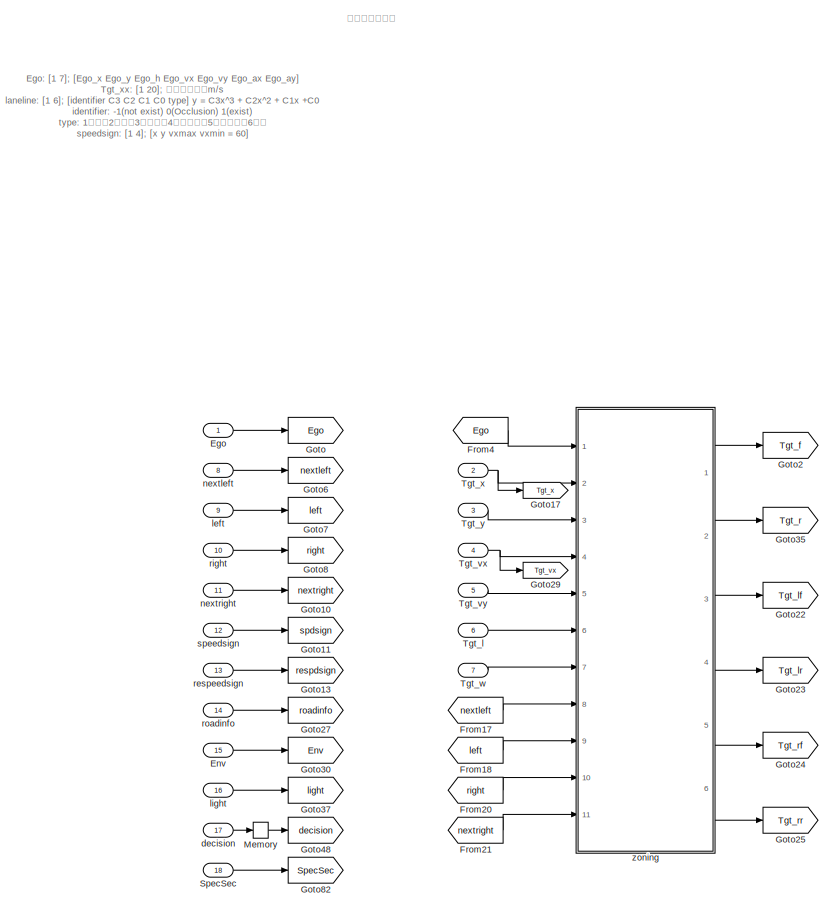
[diagram: root canvas - part 1/13, top left region]
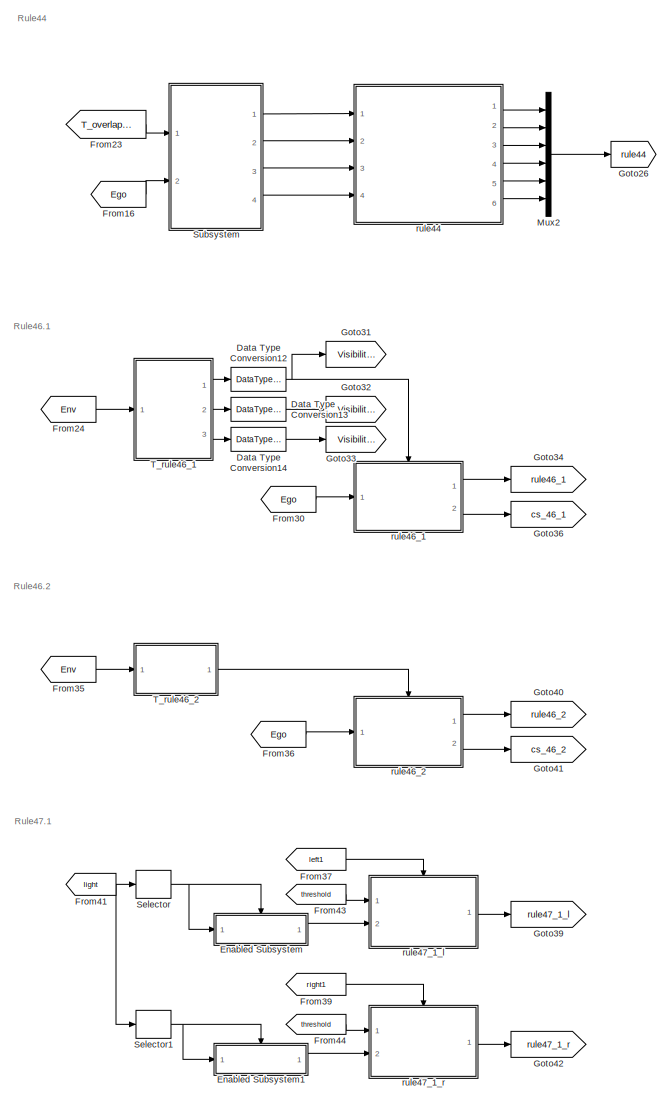
[diagram: root canvas - part 2/13, top left region]
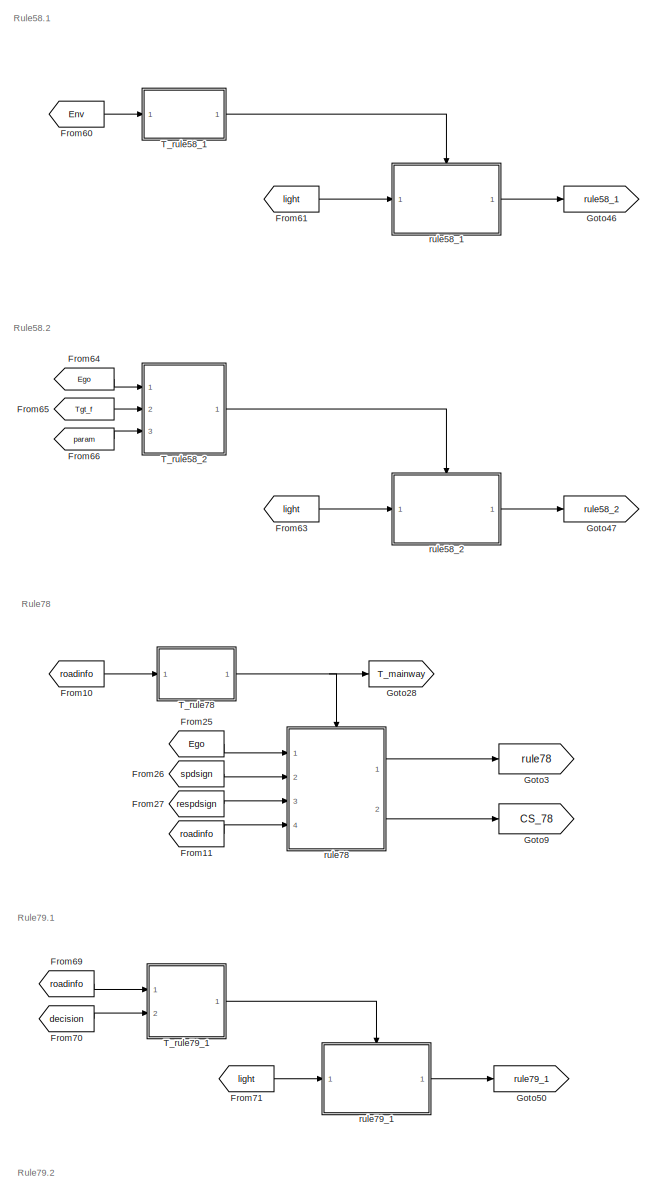
[diagram: root canvas - part 3/13, top center region]
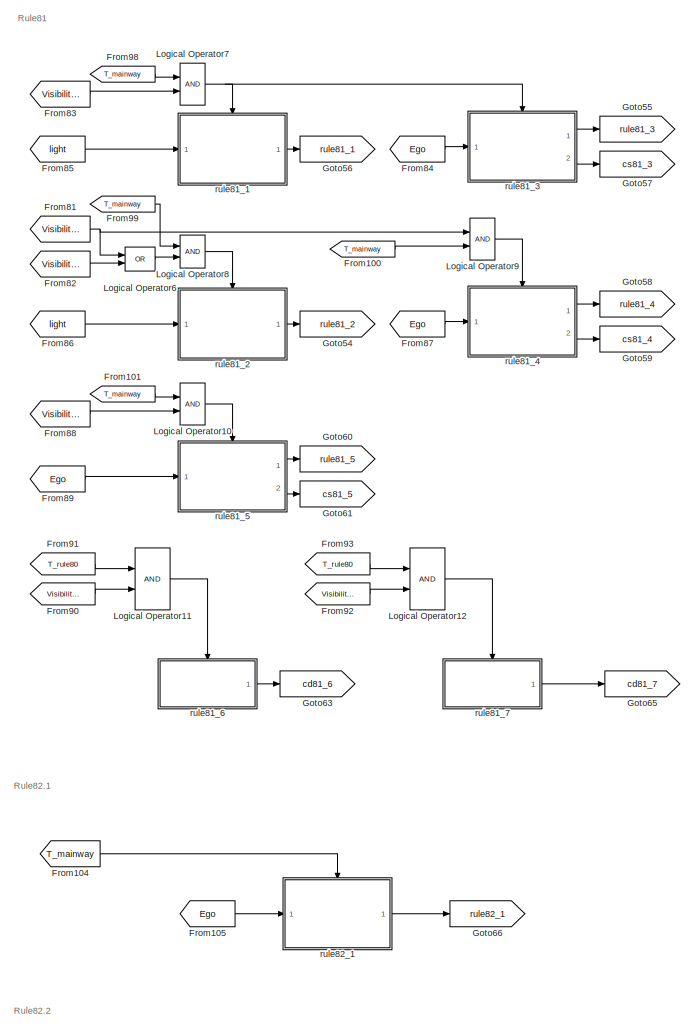
[diagram: root canvas - part 4/13, top center region]
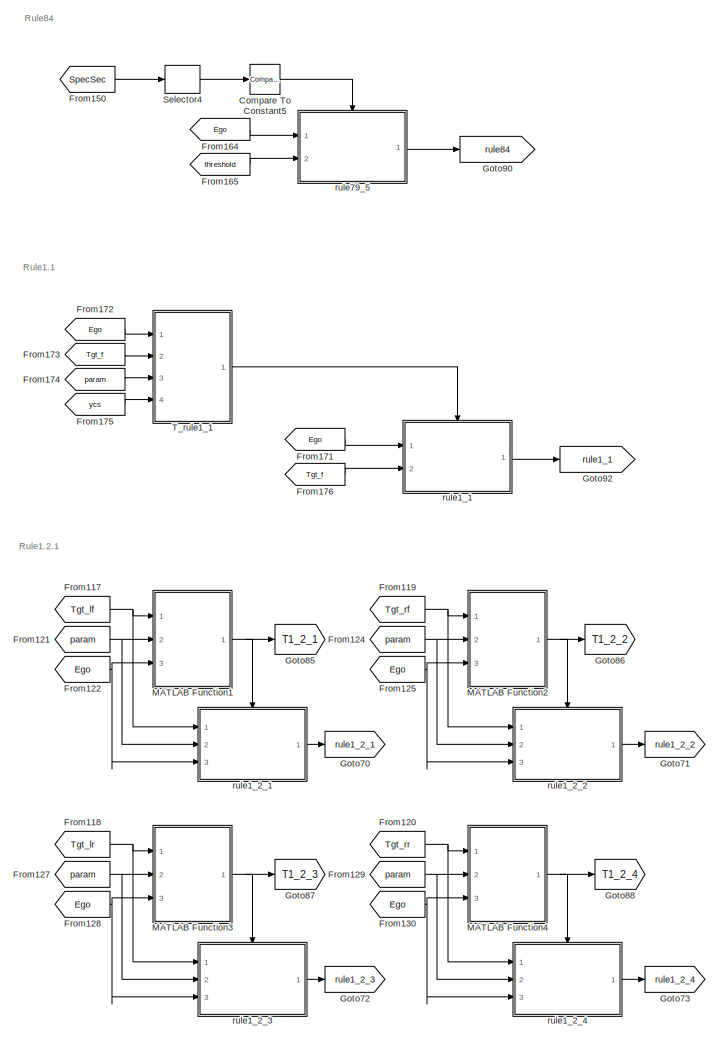
[diagram: root canvas - part 5/13, top right region]
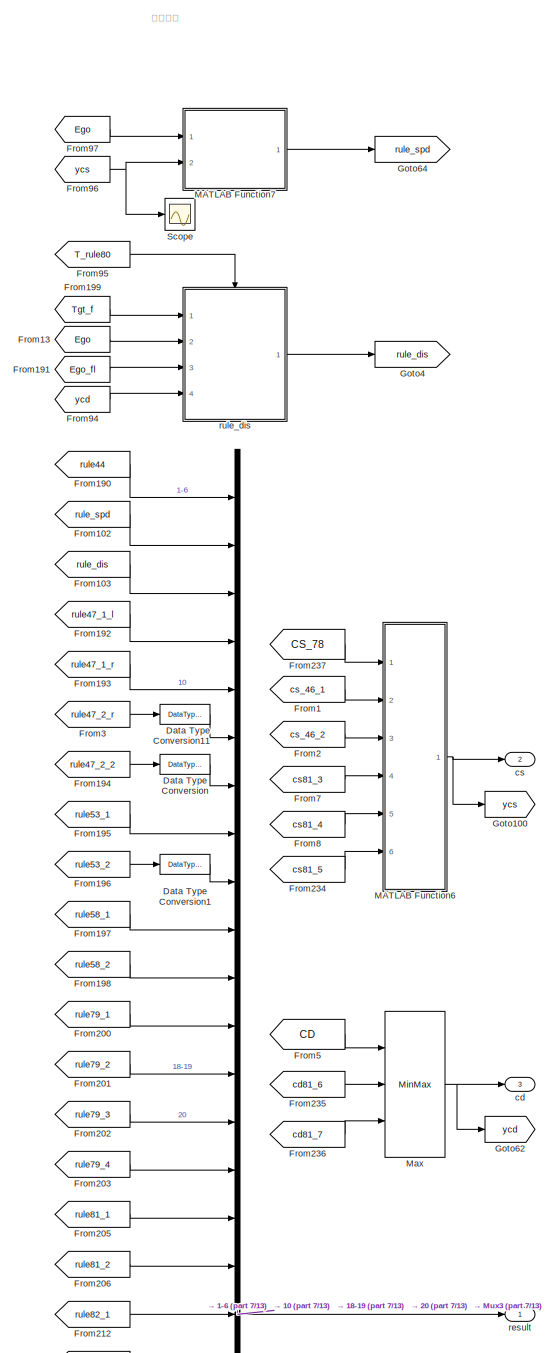
[diagram: root canvas - part 6/13, top right region]
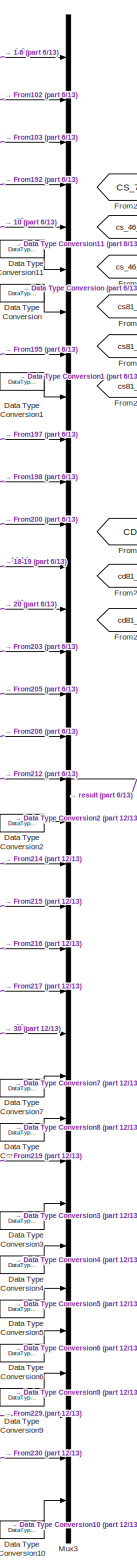
[diagram: root canvas - part 7/13, right side, full height]
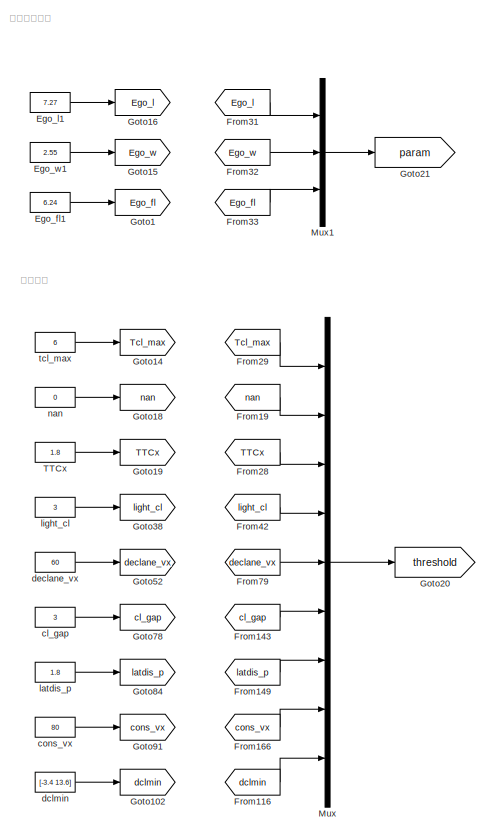
[diagram: root canvas - part 8/13, middle left region]
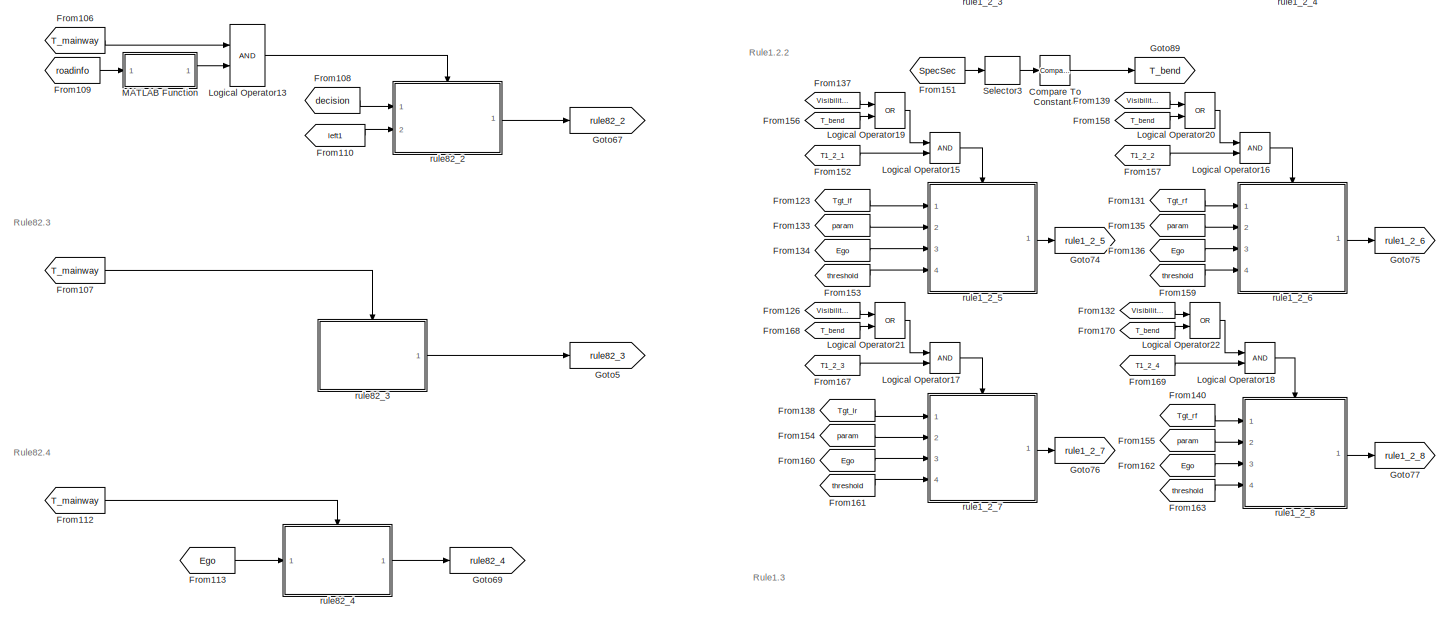
[diagram: root canvas - part 9/13, middle right region]
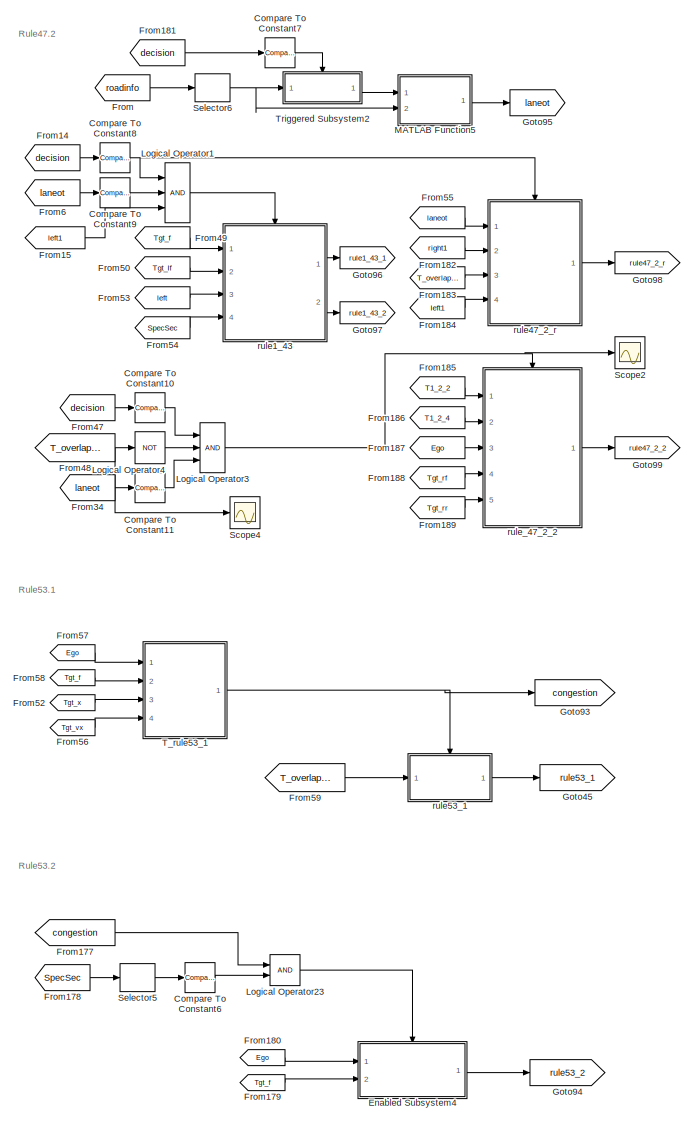
[diagram: root canvas - part 10/13, bottom left region]
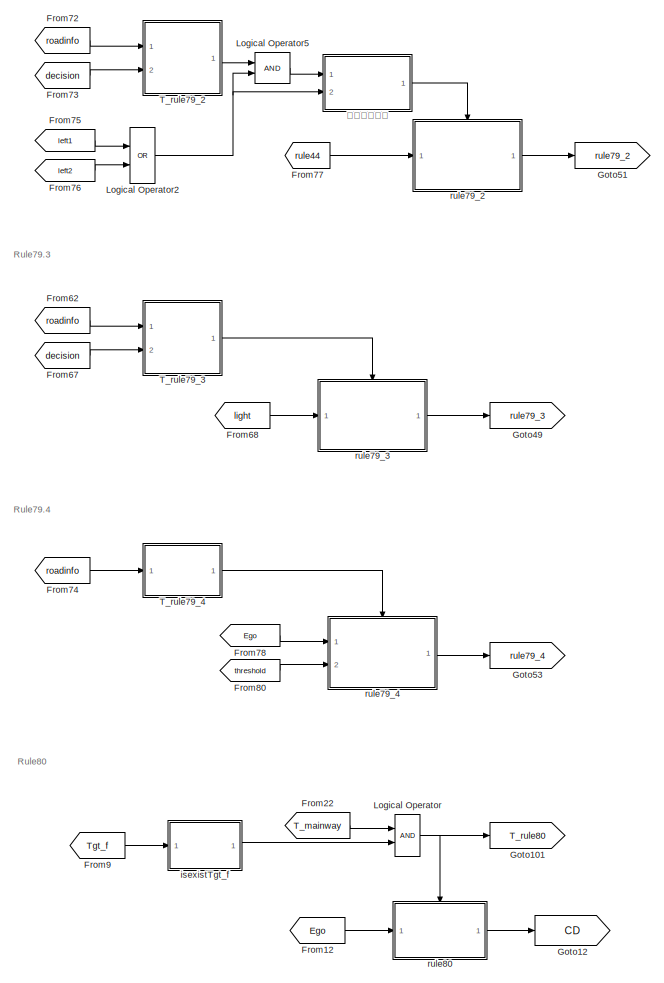
[diagram: root canvas - part 11/13, bottom center region]
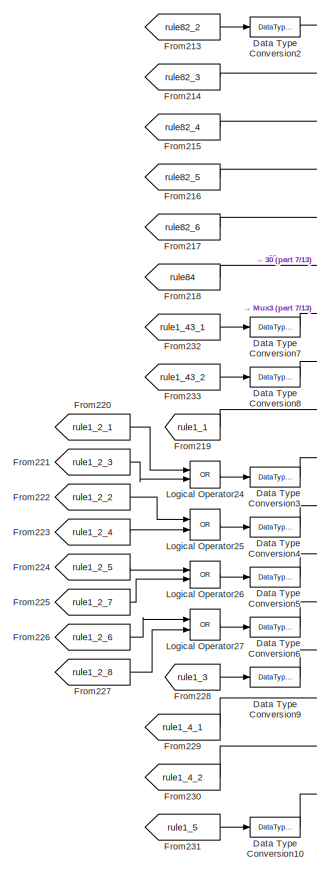
[diagram: root canvas - part 12/13, bottom right region]
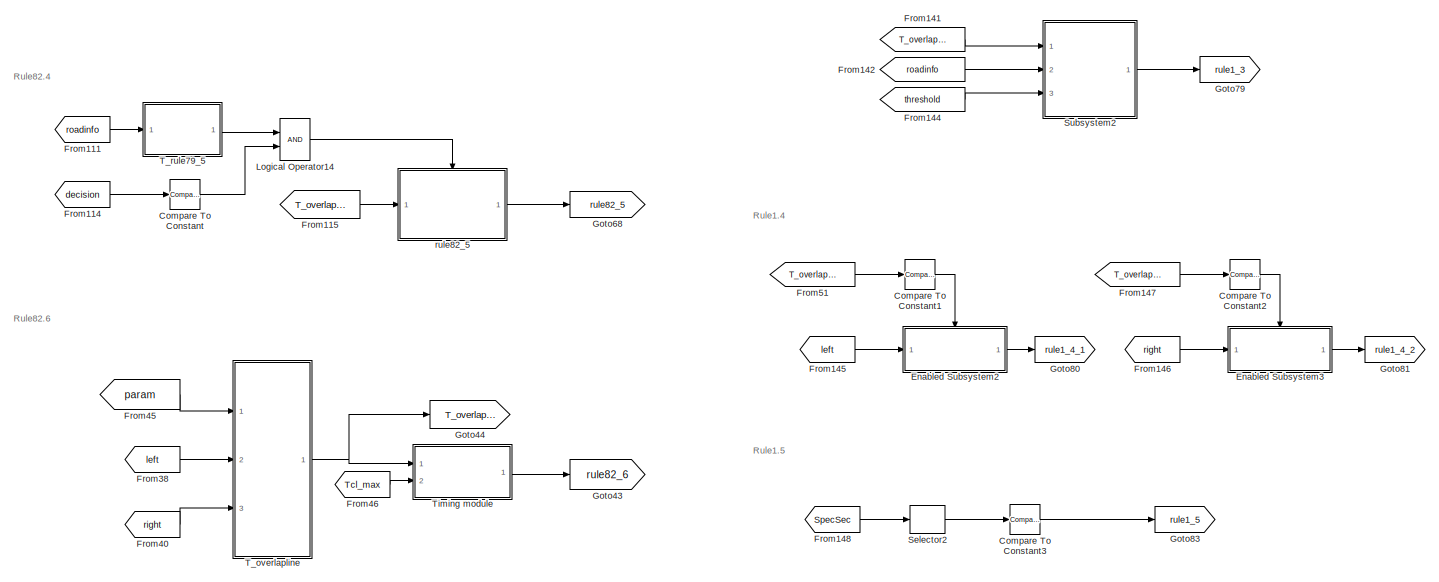
[diagram: root canvas - part 13/13, bottom right region]
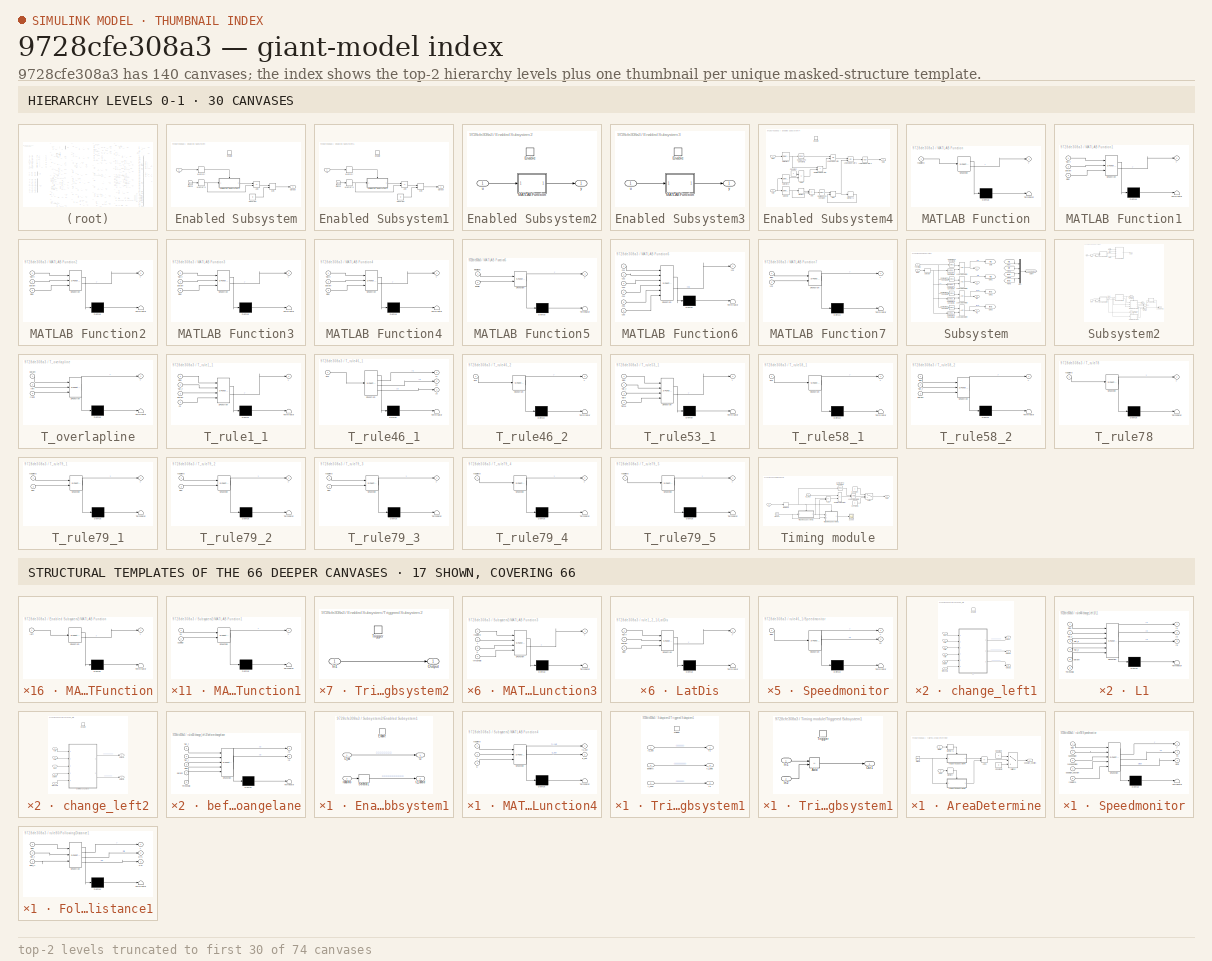
[diagram: thumbnail index - top-2 hierarchy levels (74 canvases (first 30 of 74 shown)) + 17 structural-template representatives of the remaining 66 canvases]
MODEL slx_9728cfe308a3
KIND model
CONFIG AbsTol = auto
CONFIG EnableMultiTasking = off
CONFIG FixedStep = 0.1
CONFIG MaxStep = auto
CONFIG MinStep = auto
CONFIG RelTol = 1e-3
CONFIG SampleTimeConstraint = Unconstrained
CONFIG SolverName = FixedStepDiscrete
CONFIG StartTime = 0.0
CONFIG StopTime = inf
BLOCK [Reference] Compare To Constant  REF=simulink/Logic and Bit
Operations/Compare
To Constant
  Ports = [1, 1]
  SourceBlock = simulink/Logic and Bit\nOperations/Compare\nTo Constant
  SourceProductBaseCode = SL
  SourceType = Compare To Constant
BLOCK [Reference] Compare To Constant1  REF=simulink/Logic and Bit
Operations/Compare
To Constant
  Ports = [1, 1]
  SourceBlock = simulink/Logic and Bit\nOperations/Compare\nTo Constant
  SourceProductBaseCode = SL
  SourceType = Compare To Constant
BLOCK [Reference] Compare To Constant10  REF=simulink/Logic and Bit
Operations/Compare
To Constant
  Ports = [1, 1]
  SourceBlock = simulink/Logic and Bit\nOperations/Compare\nTo Constant
  SourceProductBaseCode = SL
  SourceType = Compare To Constant
BLOCK [Reference] Compare To Constant11  REF=simulink/Logic and Bit
Operations/Compare
To Constant
  Ports = [1, 1]
  SourceBlock = simulink/Logic and Bit\nOperations/Compare\nTo Constant
  SourceProductBaseCode = SL
  SourceType = Compare To Constant
BLOCK [Reference] Compare To Constant2  REF=simulink/Logic and Bit
Operations/Compare
To Constant
  Ports = [1, 1]
  SourceBlock = simulink/Logic and Bit\nOperations/Compare\nTo Constant
  SourceProductBaseCode = SL
  SourceType = Compare To Constant
BLOCK [Reference] Compare To Constant3  REF=simulink/Logic and Bit
Operations/Compare
To Constant
  Ports = [1, 1]
  SourceBlock = simulink/Logic and Bit\nOperations/Compare\nTo Constant
  SourceProductBaseCode = SL
  SourceType = Compare To Constant
BLOCK [Reference] Compare To Constant4  REF=simulink/Logic and Bit
Operations/Compare
To Constant
  Ports = [1, 1]
  SourceBlock = simulink/Logic and Bit\nOperations/Compare\nTo Constant
  SourceProductBaseCode = SL
  SourceType = Compare To Constant
BLOCK [Reference] Compare To Constant5  REF=simulink/Logic and Bit
Operations/Compare
To Constant
  Ports = [1, 1]
  SourceBlock = simulink/Logic and Bit\nOperations/Compare\nTo Constant
  SourceProductBaseCode = SL
  SourceType = Compare To Constant
BLOCK [Reference] Compare To Constant6  REF=simulink/Logic and Bit
Operations/Compare
To Constant
  Ports = [1, 1]
  SourceBlock = simulink/Logic and Bit\nOperations/Compare\nTo Constant
  SourceProductBaseCode = SL
  SourceType = Compare To Constant
BLOCK [Reference] Compare To Constant7  REF=simulink/Logic and Bit
Operations/Compare
To Constant
  Ports = [1, 1]
  SourceBlock = simulink/Logic and Bit\nOperations/Compare\nTo Constant
  SourceProductBaseCode = SL
  SourceType = Compare To Constant
BLOCK [Reference] Compare To Constant8  REF=simulink/Logic and Bit
Operations/Compare
To Constant
  Ports = [1, 1]
  SourceBlock = simulink/Logic and Bit\nOperations/Compare\nTo Constant
  SourceProductBaseCode = SL
  SourceType = Compare To Constant
BLOCK [Reference] Compare To Constant9  REF=simulink/Logic and Bit
Operations/Compare
To Constant
  Ports = [1, 1]
  SourceBlock = simulink/Logic and Bit\nOperations/Compare\nTo Constant
  SourceProductBaseCode = SL
  SourceType = Compare To Constant
BLOCK [DataTypeConversion] Data Type Conversion
  OutDataTypeStr = double
  RndMeth = Floor
  SaturateOnIntegerOverflow = off
BLOCK [DataTypeConversion] Data Type Conversion1
  OutDataTypeStr = double
  RndMeth = Floor
  SaturateOnIntegerOverflow = off
BLOCK [DataTypeConversion] Data Type Conversion10
  OutDataTypeStr = double
  RndMeth = Floor
  SaturateOnIntegerOverflow = off
BLOCK [DataTypeConversion] Data Type Conversion11
  OutDataTypeStr = double
  RndMeth = Floor
  SaturateOnIntegerOverflow = off
BLOCK [DataTypeConversion] Data Type Conversion12
  OutDataTypeStr = double
  RndMeth = Floor
  SaturateOnIntegerOverflow = off
BLOCK [DataTypeConversion] Data Type Conversion13
  OutDataTypeStr = double
  RndMeth = Floor
  SaturateOnIntegerOverflow = off
BLOCK [DataTypeConversion] Data Type Conversion14
  OutDataTypeStr = double
  RndMeth = Floor
  SaturateOnIntegerOverflow = off
BLOCK [DataTypeConversion] Data Type Conversion2
  OutDataTypeStr = double
  RndMeth = Floor
  SaturateOnIntegerOverflow = off
BLOCK [DataTypeConversion] Data Type Conversion3
  OutDataTypeStr = double
  RndMeth = Floor
  SaturateOnIntegerOverflow = off
BLOCK [DataTypeConversion] Data Type Conversion4
  OutDataTypeStr = double
  RndMeth = Floor
  SaturateOnIntegerOverflow = off
BLOCK [DataTypeConversion] Data Type Conversion5
  OutDataTypeStr = double
  RndMeth = Floor
  SaturateOnIntegerOverflow = off
BLOCK [DataTypeConversion] Data Type Conversion6
  OutDataTypeStr = double
  RndMeth = Floor
  SaturateOnIntegerOverflow = off
BLOCK [DataTypeConversion] Data Type Conversion7
  OutDataTypeStr = double
  RndMeth = Floor
  SaturateOnIntegerOverflow = off
BLOCK [DataTypeConversion] Data Type Conversion8
  OutDataTypeStr = double
  RndMeth = Floor
  SaturateOnIntegerOverflow = off
BLOCK [DataTypeConversion] Data Type Conversion9
  OutDataTypeStr = double
  RndMeth = Floor
  SaturateOnIntegerOverflow = off
BLOCK [Inport] Ego
  PortDimensions = [1 7]
BLOCK [Constant] Ego_fl1
  Value = 6.24
BLOCK [Constant] Ego_l1
  Value = 7.27
BLOCK [Constant] Ego_w1
  Value = 2.55
BLOCK [SubSystem] Enabled Subsystem
  Ports = [1, 1, 1]
  RequestExecContextInheritance = off
  TreatAsAtomicUnit = on
BLOCK [Sum] Enabled Subsystem/Add
  IconShape = rectangular
  Inputs = -+
  Ports = [2, 1]
BLOCK [Clock] Enabled Subsystem/Clock3
BLOCK [Constant] Enabled Subsystem/Constant
  Value = 0
BLOCK [EnablePort] Enabled Subsystem/Enable
  Ports = []
  StatesWhenEnabling = reset
BLOCK [Memory] Enabled Subsystem/Memory
BLOCK [Memory] Enabled Subsystem/Memory1
BLOCK [MinMax] Enabled Subsystem/Min
  Function = max
  Inputs = 2
  Ports = [2, 1]
BLOCK [Outport] Enabled Subsystem/Output
  InitialOutput = 0
  OutputWhenDisabled = reset
BLOCK [SubSystem] Enabled Subsystem/Triggered Subsystem2
  Ports = [1, 1, 0, 1]
  RequestExecContextInheritance = off
  TreatAsAtomicUnit = on
BLOCK [Inport] Enabled Subsystem/Triggered Subsystem2/In1
BLOCK [Outport] Enabled Subsystem/Triggered Subsystem2/Output
  InitialOutput = 0
  VectorParamsAs1DForOutWhenUnconnected = off
BLOCK [TriggerPort] Enabled Subsystem/Triggered Subsystem2/Trigger
  Ports = []
  StatesWhenEnabling = held
  VariantControl = Variant
BLOCK [Inport] Enabled Subsystem/y1
BLOCK [SubSystem] Enabled Subsystem1
  Ports = [1, 1, 1]
  RequestExecContextInheritance = off
  TreatAsAtomicUnit = on
BLOCK [Sum] Enabled Subsystem1/Add
  IconShape = rectangular
  Inputs = -+
  Ports = [2, 1]
BLOCK [Clock] Enabled Subsystem1/Clock3
BLOCK [Constant] Enabled Subsystem1/Constant
  Value = 0
BLOCK [EnablePort] Enabled Subsystem1/Enable
  Ports = []
  StatesWhenEnabling = reset
BLOCK [Memory] Enabled Subsystem1/Memory
BLOCK [Memory] Enabled Subsystem1/Memory1
BLOCK [MinMax] Enabled Subsystem1/Min
  Function = max
  Inputs = 2
  Ports = [2, 1]
BLOCK [Outport] Enabled Subsystem1/Output
  InitialOutput = 0
  OutputWhenDisabled = reset
BLOCK [SubSystem] Enabled Subsystem1/Triggered Subsystem2
  Ports = [1, 1, 0, 1]
  RequestExecContextInheritance = off
  TreatAsAtomicUnit = on
BLOCK [Inport] Enabled Subsystem1/Triggered Subsystem2/In1
BLOCK [Outport] Enabled Subsystem1/Triggered Subsystem2/Output
  InitialOutput = 0
  VectorParamsAs1DForOutWhenUnconnected = off
BLOCK [TriggerPort] Enabled Subsystem1/Triggered Subsystem2/Trigger
  Ports = []
  StatesWhenEnabling = held
  VariantControl = Variant
BLOCK [Inport] Enabled Subsystem1/y1
BLOCK [SubSystem] Enabled Subsystem2
  Ports = [1, 1, 1]
  RequestExecContextInheritance = off
  TreatAsAtomicUnit = on
BLOCK [EnablePort] Enabled Subsystem2/Enable
  Ports = []
BLOCK [SubSystem] Enabled Subsystem2/MATLAB Function
  ErrorFcn = Stateflow.Translate.translate
  PermitHierarchicalResolution = ExplicitOnly
  Ports = [1, 1]
  RequestExecContextInheritance = off
  SFBlockType = MATLAB Function
  TreatAsAtomicUnit = on
BLOCK [Demux] Enabled Subsystem2/MATLAB Function/ Demux 
  Outputs = 1
  Ports = [1, 1]
BLOCK [S-Function] Enabled Subsystem2/MATLAB Function/ SFunction 
  EnableBusSupport = on
  FunctionName = sf_sfun
  PortCounts = [1 2]
  Ports = [1, 2]
  SFcnIsStateOwnerBlock = off
  SFunctionDeploymentMode = off
  Tag = Stateflow S-Function 78
BLOCK [Terminator] Enabled Subsystem2/MATLAB Function/ Terminator 
BLOCK [Inport] Enabled Subsystem2/MATLAB Function/left
BLOCK [Outport] Enabled Subsystem2/MATLAB Function/y
BLOCK [Inport] Enabled Subsystem2/u
BLOCK [Outport] Enabled Subsystem2/y
BLOCK [SubSystem] Enabled Subsystem3
  Ports = [1, 1, 1]
  RequestExecContextInheritance = off
  TreatAsAtomicUnit = on
BLOCK [EnablePort] Enabled Subsystem3/Enable
  Ports = []
BLOCK [SubSystem] Enabled Subsystem3/MATLAB Function
  ErrorFcn = Stateflow.Translate.translate
  PermitHierarchicalResolution = ExplicitOnly
  Ports = [1, 1]
  RequestExecContextInheritance = off
  SFBlockType = MATLAB Function
  TreatAsAtomicUnit = on
BLOCK [Demux] Enabled Subsystem3/MATLAB Function/ Demux 
  Outputs = 1
  Ports = [1, 1]
BLOCK [S-Function] Enabled Subsystem3/MATLAB Function/ SFunction 
  EnableBusSupport = on
  FunctionName = sf_sfun
  PortCounts = [1 2]
  Ports = [1, 2]
  SFcnIsStateOwnerBlock = off
  SFunctionDeploymentMode = off
  Tag = Stateflow S-Function 79
BLOCK [Terminator] Enabled Subsystem3/MATLAB Function/ Terminator 
BLOCK [Inport] Enabled Subsystem3/MATLAB Function/left
BLOCK [Outport] Enabled Subsystem3/MATLAB Function/y
BLOCK [Inport] Enabled Subsystem3/u
BLOCK [Outport] Enabled Subsystem3/y
BLOCK [SubSystem] Enabled Subsystem4
  Ports = [2, 1, 1]
  RequestExecContextInheritance = off
  TreatAsAtomicUnit = on
BLOCK [Sum] Enabled Subsystem4/Add
  IconShape = rectangular
  Inputs = +-
  Ports = [2, 1]
BLOCK [Sum] Enabled Subsystem4/Add1
  IconShape = rectangular
  Inputs = -+
  Ports = [2, 1]
BLOCK [Reference] Enabled Subsystem4/Compare To Constant  REF=simulink/Logic and Bit
Operations/Compare
To Constant
  Ports = [1, 1]
  SourceBlock = simulink/Logic and Bit\nOperations/Compare\nTo Constant
  SourceProductBaseCode = SL
  SourceType = Compare To Constant
BLOCK [Reference] Enabled Subsystem4/Compare To Constant1  REF=simulink/Logic and Bit
Operations/Compare
To Constant
  Ports = [1, 1]
  SourceBlock = simulink/Logic and Bit\nOperations/Compare\nTo Constant
  SourceProductBaseCode = SL
  SourceType = Compare To Constant
BLOCK [Constant] Enabled Subsystem4/Constant
BLOCK [Inport] Enabled Subsystem4/Ego
BLOCK [EnablePort] Enabled Subsystem4/Enable
  Ports = []
BLOCK [Logic] Enabled Subsystem4/Logical Operator
  AllPortsSameDT = off
  Operator = OR
  OutDataTypeStr = boolean
  Ports = [2, 1]
BLOCK [Logic] Enabled Subsystem4/Logical Operator1
  AllPortsSameDT = off
  Operator = OR
  OutDataTypeStr = boolean
  Ports = [2, 1]
BLOCK [Logic] Enabled Subsystem4/Logical Operator2
  AllPortsSameDT = off
  Operator = NOT
  OutDataTypeStr = boolean
  Ports = [1, 1]
BLOCK [MinMax] Enabled Subsystem4/Max
  Function = max
  Inputs = 2
  Ports = [2, 1]
BLOCK [Memory] Enabled Subsystem4/Memory
  InheritSampleTime = on
BLOCK [Memory] Enabled Subsystem4/Memory1
BLOCK [Outport] Enabled Subsystem4/Out2
BLOCK [RelationalOperator] Enabled Subsystem4/Relational Operator
  InputSameDT = off
  Operator = <
  OutDataTypeStr = boolean
  Ports = [2, 1]
  RndMeth = Simplest
BLOCK [Selector] Enabled Subsystem4/Selector
  IndexOptions = Index vector (dialog)
  Indices = [1]
  InputPortWidth = 6
  OutputSizes = 1
  Ports = [1, 1]
BLOCK [Selector] Enabled Subsystem4/Selector1
  IndexOptions = Index vector (dialog)
  Indices = [4]
  InputPortWidth = 7
  OutputSizes = 1
  Ports = [1, 1]
BLOCK [Selector] Enabled Subsystem4/Selector2
  IndexOptions = Index vector (dialog)
  Indices = [3]
  InputPortWidth = 6
  OutputSizes = 1
  Ports = [1, 1]
BLOCK [Inport] Enabled Subsystem4/Tgtf
  Port = 2
BLOCK [Inport] Env
  Port = 15
  PortDimensions = [1 3]
BLOCK [From] From
  GotoTag = roadinfo
  TagVisibility = global
BLOCK [From] From1
  GotoTag = cs_46_1
BLOCK [From] From10
  GotoTag = roadinfo
  TagVisibility = global
BLOCK [From] From100
  GotoTag = T_mainway
BLOCK [From] From101
  GotoTag = T_mainway
BLOCK [From] From102
  GotoTag = rule_spd
BLOCK [From] From103
  GotoTag = rule_dis
BLOCK [From] From104
  GotoTag = T_mainway
BLOCK [From] From105
  GotoTag = Ego
  TagVisibility = global
BLOCK [From] From106
  GotoTag = T_mainway
BLOCK [From] From107
  GotoTag = T_mainway
BLOCK [From] From108
  GotoTag = decision
BLOCK [From] From109
  GotoTag = roadinfo
  TagVisibility = global
BLOCK [From] From11
  GotoTag = roadinfo
  TagVisibility = global
BLOCK [From] From110
  GotoTag = left1
  TagVisibility = global
BLOCK [From] From111
  GotoTag = roadinfo
  TagVisibility = global
BLOCK [From] From112
  GotoTag = T_mainway
BLOCK [From] From113
  GotoTag = Ego
  TagVisibility = global
BLOCK [From] From114
  GotoTag = decision
BLOCK [From] From115
  GotoTag = T_overlapline
BLOCK [From] From116
  GotoTag = dclmin
BLOCK [From] From117
  GotoTag = Tgt_lf
  TagVisibility = global
BLOCK [From] From118
  GotoTag = Tgt_lr
  TagVisibility = global
BLOCK [From] From119
  GotoTag = Tgt_rf
  TagVisibility = global
BLOCK [From] From12
  GotoTag = Ego
  TagVisibility = global
BLOCK [From] From120
  GotoTag = Tgt_rr
  TagVisibility = global
BLOCK [From] From121
  GotoTag = param
  TagVisibility = global
BLOCK [From] From122
  GotoTag = Ego
  TagVisibility = global
BLOCK [From] From123
  GotoTag = Tgt_lf
  TagVisibility = global
BLOCK [From] From124
  GotoTag = param
  TagVisibility = global
BLOCK [From] From125
  GotoTag = Ego
  TagVisibility = global
BLOCK [From] From126
  GotoTag = Visibility1
BLOCK [From] From127
  GotoTag = param
  TagVisibility = global
BLOCK [From] From128
  GotoTag = Ego
  TagVisibility = global
BLOCK [From] From129
  GotoTag = param
  TagVisibility = global
BLOCK [From] From13
  GotoTag = Ego
  TagVisibility = global
BLOCK [From] From130
  GotoTag = Ego
  TagVisibility = global
BLOCK [From] From131
  GotoTag = Tgt_rf
  TagVisibility = global
BLOCK [From] From132
  GotoTag = Visibility1
BLOCK [From] From133
  GotoTag = param
  TagVisibility = global
BLOCK [From] From134
  GotoTag = Ego
  TagVisibility = global
BLOCK [From] From135
  GotoTag = param
  TagVisibility = global
BLOCK [From] From136
  GotoTag = Ego
  TagVisibility = global
BLOCK [From] From137
  GotoTag = Visibility1
BLOCK [From] From138
  GotoTag = Tgt_lr
  TagVisibility = global
BLOCK [From] From139
  GotoTag = Visibility1
BLOCK [From] From14
  GotoTag = decision
BLOCK [From] From140
  GotoTag = Tgt_rf
  TagVisibility = global
BLOCK [From] From141
  GotoTag = T_overlapline
BLOCK [From] From142
  GotoTag = roadinfo
  TagVisibility = global
BLOCK [From] From143
  GotoTag = cl_gap
BLOCK [From] From144
  GotoTag = threshold
  TagVisibility = global
BLOCK [From] From145
  GotoTag = left
  TagVisibility = global
BLOCK [From] From146
  GotoTag = right
  TagVisibility = global
BLOCK [From] From147
  GotoTag = T_overlapline
BLOCK [From] From148
  GotoTag = SpecSec
BLOCK [From] From149
  GotoTag = latdis_p
BLOCK [From] From15
  GotoTag = left1
  TagVisibility = global
BLOCK [From] From150
  GotoTag = SpecSec
BLOCK [From] From151
  GotoTag = SpecSec
BLOCK [From] From152
  GotoTag = T1_2_1
BLOCK [From] From153
  GotoTag = threshold
  TagVisibility = global
BLOCK [From] From154
  GotoTag = param
  TagVisibility = global
BLOCK [From] From155
  GotoTag = param
  TagVisibility = global
BLOCK [From] From156
  GotoTag = T_bend
BLOCK [From] From157
  GotoTag = T1_2_2
BLOCK [From] From158
  GotoTag = T_bend
BLOCK [From] From159
  GotoTag = threshold
  TagVisibility = global
BLOCK [From] From16
  GotoTag = Ego
  TagVisibility = global
BLOCK [From] From160
  GotoTag = Ego
  TagVisibility = global
BLOCK [From] From161
  GotoTag = threshold
  TagVisibility = global
BLOCK [From] From162
  GotoTag = Ego
  TagVisibility = global
BLOCK [From] From163
  GotoTag = threshold
  TagVisibility = global
BLOCK [From] From164
  GotoTag = Ego
  TagVisibility = global
BLOCK [From] From165
  GotoTag = threshold
  TagVisibility = global
BLOCK [From] From166
  GotoTag = cons_vx
BLOCK [From] From167
  GotoTag = T1_2_3
BLOCK [From] From168
  GotoTag = T_bend
BLOCK [From] From169
  GotoTag = T1_2_4
BLOCK [From] From17
  GotoTag = nextleft
  TagVisibility = global
BLOCK [From] From170
  GotoTag = T_bend
BLOCK [From] From171
  GotoTag = Ego
  TagVisibility = global
BLOCK [From] From172
  GotoTag = Ego
  TagVisibility = global
BLOCK [From] From173
  GotoTag = Tgt_f
  TagVisibility = global
BLOCK [From] From174
  GotoTag = param
  TagVisibility = global
BLOCK [From] From175
  GotoTag = ycs
BLOCK [From] From176
  GotoTag = Tgt_f
  TagVisibility = global
BLOCK [From] From177
  GotoTag = congestion
BLOCK [From] From178
  GotoTag = SpecSec
BLOCK [From] From179
  GotoTag = Tgt_f
  TagVisibility = global
BLOCK [From] From18
  GotoTag = left
  TagVisibility = global
BLOCK [From] From180
  GotoTag = Ego
  TagVisibility = global
BLOCK [From] From181
  GotoTag = decision
BLOCK [From] From182
  GotoTag = right1
  TagVisibility = global
BLOCK [From] From183
  GotoTag = T_overlapline
BLOCK [From] From184
  GotoTag = left1
  TagVisibility = global
BLOCK [From] From185
  GotoTag = T1_2_2
BLOCK [From] From186
  GotoTag = T1_2_4
BLOCK [From] From187
  GotoTag = Ego
  TagVisibility = global
BLOCK [From] From188
  GotoTag = Tgt_rf
  TagVisibility = global
BLOCK [From] From189
  GotoTag = Tgt_rr
  TagVisibility = global
BLOCK [From] From19
  GotoTag = nan
BLOCK [From] From190
  GotoTag = rule44
BLOCK [From] From191
  GotoTag = Ego_fl
BLOCK [From] From192
  GotoTag = rule47_1_l
BLOCK [From] From193
  GotoTag = rule47_1_r
BLOCK [From] From194
  GotoTag = rule47_2_2
BLOCK [From] From195
  GotoTag = rule53_1
BLOCK [From] From196
  GotoTag = rule53_2
BLOCK [From] From197
  GotoTag = rule58_1
BLOCK [From] From198
  GotoTag = rule58_2
BLOCK [From] From199
  GotoTag = Tgt_f
  TagVisibility = global
BLOCK [From] From2
  GotoTag = cs_46_2
BLOCK [From] From20
  GotoTag = right
  TagVisibility = global
BLOCK [From] From200
  GotoTag = rule79_1
BLOCK [From] From201
  GotoTag = rule79_2
BLOCK [From] From202
  GotoTag = rule79_3
BLOCK [From] From203
  GotoTag = rule79_4
BLOCK [From] From205
  GotoTag = rule81_1
BLOCK [From] From206
  GotoTag = rule81_2
BLOCK [From] From21
  GotoTag = nextright
  TagVisibility = global
BLOCK [From] From212
  GotoTag = rule82_1
BLOCK [From] From213
  GotoTag = rule82_2
BLOCK [From] From214
  GotoTag = rule82_3
BLOCK [From] From215
  GotoTag = rule82_4
BLOCK [From] From216
  GotoTag = rule82_5
BLOCK [From] From217
  GotoTag = rule82_6
BLOCK [From] From218
  GotoTag = rule84
BLOCK [From] From219
  GotoTag = rule1_1
BLOCK [From] From22
  GotoTag = T_mainway
BLOCK [From] From220
  GotoTag = rule1_2_1
BLOCK [From] From221
  GotoTag = rule1_2_3
BLOCK [From] From222
  GotoTag = rule1_2_2
BLOCK [From] From223
  GotoTag = rule1_2_4
BLOCK [From] From224
  GotoTag = rule1_2_5
BLOCK [From] From225
  GotoTag = rule1_2_7
BLOCK [From] From226
  GotoTag = rule1_2_6
BLOCK [From] From227
  GotoTag = rule1_2_8
BLOCK [From] From228
  GotoTag = rule1_3
BLOCK [From] From229
  GotoTag = rule1_4_1
BLOCK [From] From23
  GotoTag = T_overlapline
BLOCK [From] From230
  GotoTag = rule1_4_2
BLOCK [From] From231
  GotoTag = rule1_5
BLOCK [From] From232
  GotoTag = rule1_43_1
BLOCK [From] From233
  GotoTag = rule1_43_2
BLOCK [From] From234
  GotoTag = cs81_5
BLOCK [From] From235
  GotoTag = cd81_6
BLOCK [From] From236
  GotoTag = cd81_7
BLOCK [From] From237
  GotoTag = CS_78
BLOCK [From] From24
  GotoTag = Env
  TagVisibility = global
BLOCK [From] From25
  GotoTag = Ego
  TagVisibility = global
BLOCK [From] From26
  GotoTag = spdsign
  TagVisibility = global
BLOCK [From] From27
  GotoTag = respdsign
  TagVisibility = global
BLOCK [From] From28
  GotoTag = TTCx
BLOCK [From] From29
  GotoTag = Tcl_max
BLOCK [From] From3
  GotoTag = rule47_2_r
BLOCK [From] From30
  GotoTag = Ego
  TagVisibility = global
BLOCK [From] From31
  GotoTag = Ego_l
BLOCK [From] From32
  GotoTag = Ego_w
BLOCK [From] From33
  GotoTag = Ego_fl
BLOCK [From] From34
  GotoTag = laneot
BLOCK [From] From35
  GotoTag = Env
  TagVisibility = global
BLOCK [From] From36
  GotoTag = Ego
  TagVisibility = global
BLOCK [From] From37
  GotoTag = left1
  TagVisibility = global
BLOCK [From] From38
  GotoTag = left
  TagVisibility = global
BLOCK [From] From39
  GotoTag = right1
  TagVisibility = global
BLOCK [From] From4
  GotoTag = Ego
  TagVisibility = global
BLOCK [From] From40
  GotoTag = right
  TagVisibility = global
BLOCK [From] From41
  GotoTag = light
  TagVisibility = global
BLOCK [From] From42
  GotoTag = light_cl
BLOCK [From] From43
  GotoTag = threshold
  TagVisibility = global
BLOCK [From] From44
  GotoTag = threshold
  TagVisibility = global
BLOCK [From] From45
  GotoTag = param
  TagVisibility = global
BLOCK [From] From46
  GotoTag = Tcl_max
BLOCK [From] From47
  GotoTag = decision
BLOCK [From] From48
  GotoTag = T_overlapline
BLOCK [From] From49
  GotoTag = Tgt_f
  TagVisibility = global
BLOCK [From] From5
  GotoTag = CD
BLOCK [From] From50
  GotoTag = Tgt_lf
  TagVisibility = global
BLOCK [From] From51
  GotoTag = T_overlapline
BLOCK [From] From52
  GotoTag = Tgt_x
BLOCK [From] From53
  GotoTag = left
  TagVisibility = global
BLOCK [From] From54
  GotoTag = SpecSec
BLOCK [From] From55
  GotoTag = laneot
BLOCK [From] From56
  GotoTag = Tgt_vx
BLOCK [From] From57
  GotoTag = Ego
  TagVisibility = global
BLOCK [From] From58
  GotoTag = Tgt_f
  TagVisibility = global
BLOCK [From] From59
  GotoTag = T_overlapline
BLOCK [From] From6
  GotoTag = laneot
BLOCK [From] From60
  GotoTag = Env
  TagVisibility = global
BLOCK [From] From61
  GotoTag = light
  TagVisibility = global
BLOCK [From] From62
  GotoTag = roadinfo
  TagVisibility = global
BLOCK [From] From63
  GotoTag = light
  TagVisibility = global
BLOCK [From] From64
  GotoTag = Ego
  TagVisibility = global
BLOCK [From] From65
  GotoTag = Tgt_f
  TagVisibility = global
BLOCK [From] From66
  GotoTag = param
  TagVisibility = global
BLOCK [From] From67
  GotoTag = decision
BLOCK [From] From68
  GotoTag = light
  TagVisibility = global
BLOCK [From] From69
  GotoTag = roadinfo
  TagVisibility = global
BLOCK [From] From7
  GotoTag = cs81_3
BLOCK [From] From70
  GotoTag = decision
BLOCK [From] From71
  GotoTag = light
  TagVisibility = global
BLOCK [From] From72
  GotoTag = roadinfo
  TagVisibility = global
BLOCK [From] From73
  GotoTag = decision
BLOCK [From] From74
  GotoTag = roadinfo
  TagVisibility = global
BLOCK [From] From75
  GotoTag = left1
  TagVisibility = global
BLOCK [From] From76
  GotoTag = left2
  TagVisibility = global
BLOCK [From] From77
  GotoTag = rule44
BLOCK [From] From78
  GotoTag = Ego
  TagVisibility = global
BLOCK [From] From79
  GotoTag = declane_vx
BLOCK [From] From8
  GotoTag = cs81_4
BLOCK [From] From80
  GotoTag = threshold
  TagVisibility = global
BLOCK [From] From81
  GotoTag = Visibility2
BLOCK [From] From82
  GotoTag = Visibility1
BLOCK [From] From83
  GotoTag = Visibility3
BLOCK [From] From84
  GotoTag = Ego
  TagVisibility = global
BLOCK [From] From85
  GotoTag = light
  TagVisibility = global
BLOCK [From] From86
  GotoTag = light
  TagVisibility = global
BLOCK [From] From87
  GotoTag = Ego
  TagVisibility = global
BLOCK [From] From88
  GotoTag = Visibility1
BLOCK [From] From89
  GotoTag = Ego
  TagVisibility = global
BLOCK [From] From9
  GotoTag = Tgt_f
  TagVisibility = global
BLOCK [From] From90
  GotoTag = Visibility3
BLOCK [From] From91
  GotoTag = T_rule80
BLOCK [From] From92
  GotoTag = Visibility2
BLOCK [From] From93
  GotoTag = T_rule80
BLOCK [From] From94
  GotoTag = ycd
BLOCK [From] From95
  GotoTag = T_rule80
BLOCK [From] From96
  GotoTag = ycs
BLOCK [From] From97
  GotoTag = Ego
  TagVisibility = global
BLOCK [From] From98
  GotoTag = T_mainway
BLOCK [From] From99
  GotoTag = T_mainway
BLOCK [Goto] Goto
  GotoTag = Ego
  TagVisibility = global
BLOCK [Goto] Goto1
  GotoTag = Ego_fl
BLOCK [Goto] Goto10
  GotoTag = nextright
  TagVisibility = global
BLOCK [Goto] Goto100
  GotoTag = ycs
BLOCK [Goto] Goto101
  GotoTag = T_rule80
BLOCK [Goto] Goto102
  GotoTag = dclmin
BLOCK [Goto] Goto11
  GotoTag = spdsign
  TagVisibility = global
BLOCK [Goto] Goto12
  GotoTag = CD
BLOCK [Goto] Goto13
  GotoTag = respdsign
  TagVisibility = global
BLOCK [Goto] Goto14
  GotoTag = Tcl_max
BLOCK [Goto] Goto15
  GotoTag = Ego_w
BLOCK [Goto] Goto16
  GotoTag = Ego_l
BLOCK [Goto] Goto17
  GotoTag = Tgt_x
BLOCK [Goto] Goto18
  GotoTag = nan
BLOCK [Goto] Goto19
  GotoTag = TTCx
BLOCK [Goto] Goto2
  GotoTag = Tgt_f
  TagVisibility = global
BLOCK [Goto] Goto20
  GotoTag = threshold
  TagVisibility = global
BLOCK [Goto] Goto21
  GotoTag = param
  TagVisibility = global
BLOCK [Goto] Goto22
  GotoTag = Tgt_lf
  TagVisibility = global
BLOCK [Goto] Goto23
  GotoTag = Tgt_lr
  TagVisibility = global
BLOCK [Goto] Goto24
  GotoTag = Tgt_rf
  TagVisibility = global
BLOCK [Goto] Goto25
  GotoTag = Tgt_rr
  TagVisibility = global
BLOCK [Goto] Goto26
  GotoTag = rule44
BLOCK [Goto] Goto27
  GotoTag = roadinfo
  TagVisibility = global
BLOCK [Goto] Goto28
  GotoTag = T_mainway
BLOCK [Goto] Goto29
  GotoTag = Tgt_vx
BLOCK [Goto] Goto3
  GotoTag = rule78
BLOCK [Goto] Goto30
  GotoTag = Env
  TagVisibility = global
BLOCK [Goto] Goto31
  GotoTag = Visibility1
BLOCK [Goto] Goto32
  GotoTag = Visibility2
BLOCK [Goto] Goto33
  GotoTag = Visibility3
BLOCK [Goto] Goto34
  GotoTag = rule46_1
BLOCK [Goto] Goto35
  GotoTag = Tgt_r
  TagVisibility = global
BLOCK [Goto] Goto36
  GotoTag = cs_46_1
BLOCK [Goto] Goto37
  GotoTag = light
  TagVisibility = global
BLOCK [Goto] Goto38
  GotoTag = light_cl
BLOCK [Goto] Goto39
  GotoTag = rule47_1_l
BLOCK [Goto] Goto4
  GotoTag = rule_dis
BLOCK [Goto] Goto40
  GotoTag = rule46_2
BLOCK [Goto] Goto41
  GotoTag = cs_46_2
BLOCK [Goto] Goto42
  GotoTag = rule47_1_r
BLOCK [Goto] Goto43
  GotoTag = rule82_6
BLOCK [Goto] Goto44
  GotoTag = T_overlapline
BLOCK [Goto] Goto45
  GotoTag = rule53_1
BLOCK [Goto] Goto46
  GotoTag = rule58_1
BLOCK [Goto] Goto47
  GotoTag = rule58_2
BLOCK [Goto] Goto48
  GotoTag = decision
BLOCK [Goto] Goto49
  GotoTag = rule79_3
BLOCK [Goto] Goto5
  GotoTag = rule82_3
BLOCK [Goto] Goto50
  GotoTag = rule79_1
BLOCK [Goto] Goto51
  GotoTag = rule79_2
BLOCK [Goto] Goto52
  GotoTag = declane_vx
BLOCK [Goto] Goto53
  GotoTag = rule79_4
BLOCK [Goto] Goto54
  GotoTag = rule81_2
BLOCK [Goto] Goto55
  GotoTag = rule81_3
BLOCK [Goto] Goto56
  GotoTag = rule81_1
BLOCK [Goto] Goto57
  GotoTag = cs81_3
BLOCK [Goto] Goto58
  GotoTag = rule81_4
BLOCK [Goto] Goto59
  GotoTag = cs81_4
BLOCK [Goto] Goto6
  GotoTag = nextleft
  TagVisibility = global
BLOCK [Goto] Goto60
  GotoTag = rule81_5
BLOCK [Goto] Goto61
  GotoTag = cs81_5
BLOCK [Goto] Goto62
  GotoTag = ycd
BLOCK [Goto] Goto63
  GotoTag = cd81_6
BLOCK [Goto] Goto64
  GotoTag = rule_spd
BLOCK [Goto] Goto65
  GotoTag = cd81_7
BLOCK [Goto] Goto66
  GotoTag = rule82_1
BLOCK [Goto] Goto67
  GotoTag = rule82_2
BLOCK [Goto] Goto68
  GotoTag = rule82_5
BLOCK [Goto] Goto69
  GotoTag = rule82_4
BLOCK [Goto] Goto7
  GotoTag = left
  TagVisibility = global
BLOCK [Goto] Goto70
  GotoTag = rule1_2_1
BLOCK [Goto] Goto71
  GotoTag = rule1_2_2
BLOCK [Goto] Goto72
  GotoTag = rule1_2_3
BLOCK [Goto] Goto73
  GotoTag = rule1_2_4
BLOCK [Goto] Goto74
  GotoTag = rule1_2_5
BLOCK [Goto] Goto75
  GotoTag = rule1_2_6
BLOCK [Goto] Goto76
  GotoTag = rule1_2_7
BLOCK [Goto] Goto77
  GotoTag = rule1_2_8
BLOCK [Goto] Goto78
  GotoTag = cl_gap
BLOCK [Goto] Goto79
  GotoTag = rule1_3
BLOCK [Goto] Goto8
  GotoTag = right
  TagVisibility = global
BLOCK [Goto] Goto80
  GotoTag = rule1_4_1
BLOCK [Goto] Goto81
  GotoTag = rule1_4_2
BLOCK [Goto] Goto82
  GotoTag = SpecSec
BLOCK [Goto] Goto83
  GotoTag = rule1_5
BLOCK [Goto] Goto84
  GotoTag = latdis_p
BLOCK [Goto] Goto85
  GotoTag = T1_2_1
BLOCK [Goto] Goto86
  GotoTag = T1_2_2
BLOCK [Goto] Goto87
  GotoTag = T1_2_3
BLOCK [Goto] Goto88
  GotoTag = T1_2_4
BLOCK [Goto] Goto89
  GotoTag = T_bend
BLOCK [Goto] Goto9
  GotoTag = CS_78
BLOCK [Goto] Goto90
  GotoTag = rule84
BLOCK [Goto] Goto91
  GotoTag = cons_vx
BLOCK [Goto] Goto92
  GotoTag = rule1_1
BLOCK [Goto] Goto93
  GotoTag = congestion
BLOCK [Goto] Goto94
  GotoTag = rule53_2
BLOCK [Goto] Goto95
  GotoTag = laneot
BLOCK [Goto] Goto96
  GotoTag = rule1_43_1
BLOCK [Goto] Goto97
  GotoTag = rule1_43_2
BLOCK [Goto] Goto98
  GotoTag = rule47_2_r
BLOCK [Goto] Goto99
  GotoTag = rule47_2_2
BLOCK [Logic] Logical Operator
  AllPortsSameDT = off
  OutDataTypeStr = boolean
  Ports = [2, 1]
BLOCK [Logic] Logical Operator1
  AllPortsSameDT = off
  Inputs = 3
  OutDataTypeStr = boolean
  Ports = [3, 1]
BLOCK [Logic] Logical Operator10
  AllPortsSameDT = off
  OutDataTypeStr = boolean
  Ports = [2, 1]
BLOCK [Logic] Logical Operator11
  AllPortsSameDT = off
  OutDataTypeStr = boolean
  Ports = [2, 1]
BLOCK [Logic] Logical Operator12
  AllPortsSameDT = off
  OutDataTypeStr = boolean
  Ports = [2, 1]
BLOCK [Logic] Logical Operator13
  AllPortsSameDT = off
  OutDataTypeStr = boolean
  Ports = [2, 1]
BLOCK [Logic] Logical Operator14
  AllPortsSameDT = off
  OutDataTypeStr = boolean
  Ports = [2, 1]
BLOCK [Logic] Logical Operator15
  AllPortsSameDT = off
  OutDataTypeStr = boolean
  Ports = [2, 1]
BLOCK [Logic] Logical Operator16
  AllPortsSameDT = off
  OutDataTypeStr = boolean
  Ports = [2, 1]
BLOCK [Logic] Logical Operator17
  AllPortsSameDT = off
  OutDataTypeStr = boolean
  Ports = [2, 1]
BLOCK [Logic] Logical Operator18
  AllPortsSameDT = off
  OutDataTypeStr = boolean
  Ports = [2, 1]
BLOCK [Logic] Logical Operator19
  AllPortsSameDT = off
  Operator = OR
  OutDataTypeStr = boolean
  Ports = [2, 1]
BLOCK [Logic] Logical Operator2
  AllPortsSameDT = off
  Operator = OR
  OutDataTypeStr = boolean
  Ports = [2, 1]
BLOCK [Logic] Logical Operator20
  AllPortsSameDT = off
  Operator = OR
  OutDataTypeStr = boolean
  Ports = [2, 1]
BLOCK [Logic] Logical Operator21
  AllPortsSameDT = off
  Operator = OR
  OutDataTypeStr = boolean
  Ports = [2, 1]
BLOCK [Logic] Logical Operator22
  AllPortsSameDT = off
  Operator = OR
  OutDataTypeStr = boolean
  Ports = [2, 1]
BLOCK [Logic] Logical Operator23
  AllPortsSameDT = off
  OutDataTypeStr = boolean
  Ports = [2, 1]
BLOCK [Logic] Logical Operator24
  AllPortsSameDT = off
  Operator = OR
  OutDataTypeStr = boolean
  Ports = [2, 1]
BLOCK [Logic] Logical Operator25
  AllPortsSameDT = off
  Operator = OR
  OutDataTypeStr = boolean
  Ports = [2, 1]
BLOCK [Logic] Logical Operator26
  AllPortsSameDT = off
  Operator = OR
  OutDataTypeStr = boolean
  Ports = [2, 1]
BLOCK [Logic] Logical Operator27
  AllPortsSameDT = off
  Operator = OR
  OutDataTypeStr = boolean
  Ports = [2, 1]
BLOCK [Logic] Logical Operator3
  AllPortsSameDT = off
  Inputs = 3
  OutDataTypeStr = boolean
  Ports = [3, 1]
BLOCK [Logic] Logical Operator4
  AllPortsSameDT = off
  Operator = NOT
  OutDataTypeStr = boolean
  Ports = [1, 1]
BLOCK [Logic] Logical Operator5
  AllPortsSameDT = off
  OutDataTypeStr = boolean
  Ports = [2, 1]
BLOCK [Logic] Logical Operator6
  AllPortsSameDT = off
  Operator = OR
  OutDataTypeStr = boolean
  Ports = [2, 1]
BLOCK [Logic] Logical Operator7
  AllPortsSameDT = off
  OutDataTypeStr = boolean
  Ports = [2, 1]
BLOCK [Logic] Logical Operator8
  AllPortsSameDT = off
  OutDataTypeStr = boolean
  Ports = [2, 1]
BLOCK [Logic] Logical Operator9
  AllPortsSameDT = off
  OutDataTypeStr = boolean
  Ports = [2, 1]
BLOCK [SubSystem] MATLAB Function
  ErrorFcn = Stateflow.Translate.translate
  PermitHierarchicalResolution = ExplicitOnly
  Ports = [1, 1]
  RequestExecContextInheritance = off
  SFBlockType = MATLAB Function
  TreatAsAtomicUnit = on
BLOCK [Demux] MATLAB Function/ Demux 
  Outputs = 1
  Ports = [1, 1]
BLOCK [S-Function] MATLAB Function/ SFunction 
  EnableBusSupport = on
  FunctionName = sf_sfun
  PortCounts = [1 2]
  Ports = [1, 2]
  SFcnIsStateOwnerBlock = off
  SFunctionDeploymentMode = off
  Tag = Stateflow S-Function 56
BLOCK [Terminator] MATLAB Function/ Terminator 
BLOCK [Inport] MATLAB Function/roadinfo
BLOCK [Outport] MATLAB Function/y
BLOCK [SubSystem] MATLAB Function1
  ErrorFcn = Stateflow.Translate.translate
  PermitHierarchicalResolution = ExplicitOnly
  Ports = [3, 1]
  RequestExecContextInheritance = off
  SFBlockType = MATLAB Function
  TreatAsAtomicUnit = on
BLOCK [Demux] MATLAB Function1/ Demux 
  Outputs = 1
  Ports = [1, 1]
BLOCK [S-Function] MATLAB Function1/ SFunction 
  EnableBusSupport = on
  FunctionName = sf_sfun
  PortCounts = [3 2]
  Ports = [3, 2]
  SFcnIsStateOwnerBlock = off
  SFunctionDeploymentMode = off
  Tag = Stateflow S-Function 59
BLOCK [Terminator] MATLAB Function1/ Terminator 
BLOCK [Inport] MATLAB Function1/Ego
  Port = 3
BLOCK [Inport] MATLAB Function1/Tgtlf
BLOCK [Inport] MATLAB Function1/param
  Port = 2
BLOCK [Outport] MATLAB Function1/y
BLOCK [SubSystem] MATLAB Function2
  ErrorFcn = Stateflow.Translate.translate
  PermitHierarchicalResolution = ExplicitOnly
  Ports = [3, 1]
  RequestExecContextInheritance = off
  SFBlockType = MATLAB Function
  TreatAsAtomicUnit = on
BLOCK [Demux] MATLAB Function2/ Demux 
  Outputs = 1
  Ports = [1, 1]
BLOCK [S-Function] MATLAB Function2/ SFunction 
  EnableBusSupport = on
  FunctionName = sf_sfun
  PortCounts = [3 2]
  Ports = [3, 2]
  SFcnIsStateOwnerBlock = off
  SFunctionDeploymentMode = off
  Tag = Stateflow S-Function 61
BLOCK [Terminator] MATLAB Function2/ Terminator 
BLOCK [Inport] MATLAB Function2/Ego
  Port = 3
BLOCK [Inport] MATLAB Function2/Tgtrf
BLOCK [Inport] MATLAB Function2/param
  Port = 2
BLOCK [Outport] MATLAB Function2/y
BLOCK [SubSystem] MATLAB Function3
  ErrorFcn = Stateflow.Translate.translate
  PermitHierarchicalResolution = ExplicitOnly
  Ports = [3, 1]
  RequestExecContextInheritance = off
  SFBlockType = MATLAB Function
  TreatAsAtomicUnit = on
BLOCK [Demux] MATLAB Function3/ Demux 
  Outputs = 1
  Ports = [1, 1]
BLOCK [S-Function] MATLAB Function3/ SFunction 
  EnableBusSupport = on
  FunctionName = sf_sfun
  PortCounts = [3 2]
  Ports = [3, 2]
  SFcnIsStateOwnerBlock = off
  SFunctionDeploymentMode = off
  Tag = Stateflow S-Function 63
BLOCK [Terminator] MATLAB Function3/ Terminator 
BLOCK [Inport] MATLAB Function3/Ego
  Port = 3
BLOCK [Inport] MATLAB Function3/Tgtlr
BLOCK [Inport] MATLAB Function3/param
  Port = 2
BLOCK [Outport] MATLAB Function3/y
BLOCK [SubSystem] MATLAB Function4
  ErrorFcn = Stateflow.Translate.translate
  PermitHierarchicalResolution = ExplicitOnly
  Ports = [3, 1]
  RequestExecContextInheritance = off
  SFBlockType = MATLAB Function
  TreatAsAtomicUnit = on
BLOCK [Demux] MATLAB Function4/ Demux 
  Outputs = 1
  Ports = [1, 1]
BLOCK [S-Function] MATLAB Function4/ SFunction 
  EnableBusSupport = on
  FunctionName = sf_sfun
  PortCounts = [3 2]
  Ports = [3, 2]
  SFcnIsStateOwnerBlock = off
  SFunctionDeploymentMode = off
  Tag = Stateflow S-Function 64
BLOCK [Terminator] MATLAB Function4/ Terminator 
BLOCK [Inport] MATLAB Function4/Ego
  Port = 3
BLOCK [Inport] MATLAB Function4/Tgtrr
BLOCK [Inport] MATLAB Function4/param
  Port = 2
BLOCK [Outport] MATLAB Function4/y
BLOCK [SubSystem] MATLAB Function5
  ErrorFcn = Stateflow.Translate.translate
  PermitHierarchicalResolution = ExplicitOnly
  Ports = [2, 1]
  RequestExecContextInheritance = off
  SFBlockType = MATLAB Function
  TreatAsAtomicUnit = on
BLOCK [Demux] MATLAB Function5/ Demux 
  Outputs = 1
  Ports = [1, 1]
BLOCK [S-Function] MATLAB Function5/ SFunction 
  EnableBusSupport = on
  FunctionName = sf_sfun
  PortCounts = [2 2]
  Ports = [2, 2]
  SFcnIsStateOwnerBlock = off
  SFunctionDeploymentMode = off
  Tag = Stateflow S-Function 3
BLOCK [Terminator] MATLAB Function5/ Terminator 
BLOCK [Inport] MATLAB Function5/initiallane
BLOCK [Inport] MATLAB Function5/laneid
  Port = 2
BLOCK [Outport] MATLAB Function5/y
BLOCK [SubSystem] MATLAB Function6
  ErrorFcn = Stateflow.Translate.translate
  PermitHierarchicalResolution = ExplicitOnly
  Ports = [6, 1]
  RequestExecContextInheritance = off
  SFBlockType = MATLAB Function
  TreatAsAtomicUnit = on
BLOCK [Demux] MATLAB Function6/ Demux 
  Outputs = 1
  Ports = [1, 1]
BLOCK [S-Function] MATLAB Function6/ SFunction 
  EnableBusSupport = on
  FunctionName = sf_sfun
  PortCounts = [6 2]
  Ports = [6, 2]
  SFcnIsStateOwnerBlock = off
  SFunctionDeploymentMode = off
  Tag = Stateflow S-Function 29
BLOCK [Terminator] MATLAB Function6/ Terminator 
BLOCK [Inport] MATLAB Function6/cs1
BLOCK [Inport] MATLAB Function6/cs2
  Port = 2
BLOCK [Inport] MATLAB Function6/cs3
  Port = 3
BLOCK [Inport] MATLAB Function6/cs4
  Port = 4
BLOCK [Inport] MATLAB Function6/cs5
  Port = 5
BLOCK [Inport] MATLAB Function6/cs6
  Port = 6
BLOCK [Outport] MATLAB Function6/ycs
BLOCK [SubSystem] MATLAB Function7
  ErrorFcn = Stateflow.Translate.translate
  PermitHierarchicalResolution = ExplicitOnly
  Ports = [2, 1]
  RequestExecContextInheritance = off
  SFBlockType = MATLAB Function
  TreatAsAtomicUnit = on
BLOCK [Demux] MATLAB Function7/ Demux 
  Outputs = 1
  Ports = [1, 1]
BLOCK [S-Function] MATLAB Function7/ SFunction 
  EnableBusSupport = on
  FunctionName = sf_sfun
  PortCounts = [2 2]
  Ports = [2, 2]
  SFcnIsStateOwnerBlock = off
  SFunctionDeploymentMode = off
  Tag = Stateflow S-Function 32
BLOCK [Terminator] MATLAB Function7/ Terminator 
BLOCK [Inport] MATLAB Function7/Ego
BLOCK [Outport] MATLAB Function7/y
BLOCK [Inport] MATLAB Function7/ycs
  Port = 2
BLOCK [MinMax] Max
  Function = max
  Inputs = 3
  Ports = [3, 1]
BLOCK [Memory] Memory
BLOCK [Mux] Mux
  DisplayOption = bar
  Inputs = 9
  Ports = [9, 1]
BLOCK [Mux] Mux1
  DisplayOption = bar
  Inputs = 3
  Ports = [3, 1]
BLOCK [Mux] Mux2
  DisplayOption = bar
  Inputs = 6
  Ports = [6, 1]
BLOCK [Mux] Mux3
  DisplayOption = bar
  Inputs = 35
  Ports = [35, 1]
BLOCK [Scope] Scope
  Floating = off
  NumInputPorts = 1
  Ports = [1]
  ScopeSpecificationString = Simulink.scopes.TimeScopeBlockCfg('CurrentConfiguration', extmgr.ConfigurationSet(extmgr.Configuration('Core','General UI',true),extmgr.Configuration('Core','Source UI',true),extmgr.Configuration('Sources','WiredSimulink',true,'DataLoggingVariableName','ScopeData3'),extmgr.Configuration('Visuals','Time Domain',true,'SerializedDisplays',{struct('MinYLimReal','52.5','MaxYLimReal','127.5','YLabelReal...<+1354ch>
BLOCK [Scope] Scope2
  Floating = off
  NumInputPorts = 1
  Ports = [1]
  ScopeSpecificationString = Simulink.scopes.TimeScopeBlockCfg('CurrentConfiguration', extmgr.ConfigurationSet(extmgr.Configuration('Core','General UI',true),extmgr.Configuration('Core','Source UI',true),extmgr.Configuration('Sources','WiredSimulink',true,'DataLoggingVariableName','ScopeData2'),extmgr.Configuration('Visuals','Time Domain',true,'SerializedDisplays',{struct('MinYLimReal','-0.125','MaxYLimReal','1.125','YLabelRe...<+1364ch>
BLOCK [Scope] Scope4
  Floating = off
  NumInputPorts = 1
  Ports = [1]
  ScopeSpecificationString = Simulink.scopes.TimeScopeBlockCfg('CurrentConfiguration', extmgr.ConfigurationSet(extmgr.Configuration('Core','General UI',true),extmgr.Configuration('Core','Source UI',true),extmgr.Configuration('Sources','WiredSimulink',true,'DataLoggingVariableName','ScopeData7'),extmgr.Configuration('Visuals','Time Domain',true,'SerializedDisplays',{struct('MinYLimReal','-0.25','MaxYLimReal','2.25','YLabelReal...<+1344ch>
BLOCK [Selector] Selector
  IndexOptions = Index vector (dialog)
  Indices = [1]
  InputPortWidth = 9
  OutputSizes = 1
  Ports = [1, 1]
BLOCK [Selector] Selector1
  IndexOptions = Index vector (dialog)
  Indices = [2]
  InputPortWidth = 9
  OutputSizes = 1
  Ports = [1, 1]
BLOCK [Selector] Selector2
  IndexOptions = Index vector (dialog)
  Indices = [4]
  InputPortWidth = 6
  OutputSizes = 1
  Ports = [1, 1]
BLOCK [Selector] Selector3
  IndexOptions = Index vector (dialog)
  Indices = [1]
  InputPortWidth = 6
  OutputSizes = 1
  Ports = [1, 1]
BLOCK [Selector] Selector4
  IndexOptions = Index vector (dialog)
  Indices = [3]
  InputPortWidth = 6
  OutputSizes = 1
  Ports = [1, 1]
BLOCK [Selector] Selector5
  IndexOptions = Index vector (dialog)
  Indices = [5]
  InputPortWidth = 6
  OutputSizes = 1
  Ports = [1, 1]
BLOCK [Selector] Selector6
  IndexOptions = Index vector (dialog)
  Indices = [2]
  InputPortWidth = 3
  OutputSizes = 1
  Ports = [1, 1]
BLOCK [Inport] SpecSec
  Port = 18
  PortDimensions = [1 6]
BLOCK [SubSystem] Subsystem
  Ports = [2, 4]
  RequestExecContextInheritance = off
BLOCK [Reference] Subsystem/Compare To Constant1  REF=simulink/Logic and Bit
Operations/Compare
To Constant
  Ports = [1, 1]
  SourceBlock = simulink/Logic and Bit\nOperations/Compare\nTo Constant
  SourceProductBaseCode = SL
  SourceType = Compare To Constant
BLOCK [Reference] Subsystem/Compare To Constant2  REF=simulink/Logic and Bit
Operations/Compare
To Constant
  Ports = [1, 1]
  SourceBlock = simulink/Logic and Bit\nOperations/Compare\nTo Constant
  SourceProductBaseCode = SL
  SourceType = Compare To Constant
BLOCK [Reference] Subsystem/Compare To Constant3  REF=simulink/Logic and Bit
Operations/Compare
To Constant
  Ports = [1, 1]
  SourceBlock = simulink/Logic and Bit\nOperations/Compare\nTo Constant
  SourceProductBaseCode = SL
  SourceType = Compare To Constant
BLOCK [Reference] Subsystem/Compare To Constant4  REF=simulink/Logic and Bit
Operations/Compare
To Constant
  Ports = [1, 1]
  SourceBlock = simulink/Logic and Bit\nOperations/Compare\nTo Constant
  SourceProductBaseCode = SL
  SourceType = Compare To Constant
BLOCK [Reference] Subsystem/Compare To Constant5  REF=simulink/Logic and Bit
Operations/Compare
To Constant
  Ports = [1, 1]
  SourceBlock = simulink/Logic and Bit\nOperations/Compare\nTo Constant
  SourceProductBaseCode = SL
  SourceType = Compare To Constant
BLOCK [Reference] Subsystem/Compare To Constant6  REF=simulink/Logic and Bit
Operations/Compare
To Constant
  Ports = [1, 1]
  SourceBlock = simulink/Logic and Bit\nOperations/Compare\nTo Constant
  SourceProductBaseCode = SL
  SourceType = Compare To Constant
BLOCK [Reference] Subsystem/Compare To Constant7  REF=simulink/Logic and Bit
Operations/Compare
To Constant
  Ports = [1, 1]
  SourceBlock = simulink/Logic and Bit\nOperations/Compare\nTo Constant
  SourceProductBaseCode = SL
  SourceType = Compare To Constant
BLOCK [Reference] Subsystem/Compare To Constant8  REF=simulink/Logic and Bit
Operations/Compare
To Constant
  Ports = [1, 1]
  SourceBlock = simulink/Logic and Bit\nOperations/Compare\nTo Constant
  SourceProductBaseCode = SL
  SourceType = Compare To Constant
BLOCK [Inport] Subsystem/Ego
  Port = 2
BLOCK [From] Subsystem/From
  GotoTag = left1
  TagVisibility = global
BLOCK [From] Subsystem/From1
  GotoTag = left2
  TagVisibility = global
BLOCK [From] Subsystem/From2
  GotoTag = right1
  TagVisibility = global
BLOCK [From] Subsystem/From3
  GotoTag = right2
  TagVisibility = global
BLOCK [Goto] Subsystem/Goto
  GotoTag = left1
  TagVisibility = global
BLOCK [Goto] Subsystem/Goto1
  GotoTag = left2
  TagVisibility = global
BLOCK [Goto] Subsystem/Goto2
  GotoTag = right1
  TagVisibility = global
BLOCK [Goto] Subsystem/Goto3
  GotoTag = right2
  TagVisibility = global
BLOCK [Goto] Subsystem/Goto4
  GotoTag = changelane
  TagVisibility = global
BLOCK [Outport] Subsystem/L1
BLOCK [Outport] Subsystem/L2
  Port = 2
BLOCK [Logic] Subsystem/Logical Operator1
  AllPortsSameDT = off
  OutDataTypeStr = boolean
  Ports = [2, 1]
BLOCK [Logic] Subsystem/Logical Operator2
  AllPortsSameDT = off
  OutDataTypeStr = boolean
  Ports = [2, 1]
BLOCK [Logic] Subsystem/Logical Operator3
  AllPortsSameDT = off
  OutDataTypeStr = boolean
  Ports = [2, 1]
BLOCK [Logic] Subsystem/Logical Operator4
  AllPortsSameDT = off
  OutDataTypeStr = boolean
  Ports = [2, 1]
BLOCK [Mux] Subsystem/Mux
  DisplayOption = bar
  Ports = [4, 1]
BLOCK [Outport] Subsystem/R1
  Port = 3
BLOCK [Outport] Subsystem/R2
  Port = 4
BLOCK [Selector] Subsystem/Selector
  IndexOptions = Index vector (dialog)
  Indices = [5]
  InputPortWidth = 7
  OutputSizes = 1
  Ports = [1, 1]
BLOCK [Inport] Subsystem/Toverlap
BLOCK [SubSystem] Subsystem2
  Ports = [3, 1]
  RequestExecContextInheritance = off
BLOCK [Sum] Subsystem2/Add1
  Commented = on
  IconShape = rectangular
  Inputs = +-
  Ports = [2, 1]
BLOCK [Clock] Subsystem2/Clock
BLOCK [Clock] Subsystem2/Clock1
  Commented = on
BLOCK [Reference] Subsystem2/Compare To Constant2  REF=simulink/Logic and Bit
Operations/Compare
To Constant
  Commented = on
  Ports = [1, 1]
  SourceBlock = simulink/Logic and Bit\nOperations/Compare\nTo Constant
  SourceProductBaseCode = SL
  SourceType = Compare To Constant
BLOCK [Reference] Subsystem2/Compare To Constant3  REF=simulink/Logic and Bit
Operations/Compare
To Constant
  Commented = on
  Ports = [1, 1]
  SourceBlock = simulink/Logic and Bit\nOperations/Compare\nTo Constant
  SourceProductBaseCode = SL
  SourceType = Compare To Constant
BLOCK [SubSystem] Subsystem2/Enabled Subsystem1
  Commented = on
  Ports = [2, 2, 1]
  RequestExecContextInheritance = off
  TreatAsAtomicUnit = on
BLOCK [EnablePort] Subsystem2/Enabled Subsystem1/Enable
  Ports = []
BLOCK [Selector] Subsystem2/Enabled Subsystem1/Selector1
  IndexOptions = Index vector (dialog)
  Indices = [2]
  InputPortWidth = 3
  OutputSizes = 1
  Ports = [1, 1]
BLOCK [Inport] Subsystem2/Enabled Subsystem1/roadinfo
  Port = 2
BLOCK [Outport] Subsystem2/Enabled Subsystem1/t2
  InitialOutput = -10
BLOCK [Outport] Subsystem2/Enabled Subsystem1/t2_laneid
  InitialOutput = 0
  Port = 2
BLOCK [Inport] Subsystem2/Enabled Subsystem1/t2_out
BLOCK [Inport] Subsystem2/In1
BLOCK [Logic] Subsystem2/Logical Operator1
  AllPortsSameDT = off
  Commented = on
  OutDataTypeStr = boolean
  Ports = [2, 1]
BLOCK [SubSystem] Subsystem2/MATLAB Function1
  ErrorFcn = Stateflow.Translate.translate
  PermitHierarchicalResolution = ExplicitOnly
  Ports = [2, 1]
  RequestExecContextInheritance = off
  SFBlockType = MATLAB Function
  TreatAsAtomicUnit = on
BLOCK [Demux] Subsystem2/MATLAB Function1/ Demux 
  Outputs = 1
  Ports = [1, 1]
BLOCK [S-Function] Subsystem2/MATLAB Function1/ SFunction 
  EnableBusSupport = on
  FunctionName = sf_sfun
  PortCounts = [2 2]
  Ports = [2, 2]
  SFcnIsStateOwnerBlock = off
  SFunctionDeploymentMode = off
  Tag = Stateflow S-Function 76
BLOCK [Terminator] Subsystem2/MATLAB Function1/ Terminator 
BLOCK [Inport] Subsystem2/MATLAB Function1/u1
BLOCK [Inport] Subsystem2/MATLAB Function1/u1delay
  Port = 2
BLOCK [Outport] Subsystem2/MATLAB Function1/y
BLOCK [SubSystem] Subsystem2/MATLAB Function3
  ErrorFcn = Stateflow.Translate.translate
  PermitHierarchicalResolution = ExplicitOnly
  Ports = [4, 1]
  RequestExecContextInheritance = off
  SFBlockType = MATLAB Function
  TreatAsAtomicUnit = on
BLOCK [Demux] Subsystem2/MATLAB Function3/ Demux 
  Outputs = 1
  Ports = [1, 1]
BLOCK [S-Function] Subsystem2/MATLAB Function3/ SFunction 
  EnableBusSupport = on
  FunctionName = sf_sfun
  PortCounts = [4 2]
  Ports = [4, 2]
  SFcnIsStateOwnerBlock = off
  SFunctionDeploymentMode = off
  Tag = Stateflow S-Function 33
BLOCK [Terminator] Subsystem2/MATLAB Function3/ Terminator 
BLOCK [Inport] Subsystem2/MATLAB Function3/roadinfo
BLOCK [Inport] Subsystem2/MATLAB Function3/t
  Port = 2
BLOCK [Inport] Subsystem2/MATLAB Function3/throshold
  Port = 4
BLOCK [Inport] Subsystem2/MATLAB Function3/u
  Port = 3
BLOCK [Outport] Subsystem2/MATLAB Function3/y
BLOCK [SubSystem] Subsystem2/MATLAB Function4
  Commented = on
  ErrorFcn = Stateflow.Translate.translate
  PermitHierarchicalResolution = ExplicitOnly
  Ports = [3, 2]
  RequestExecContextInheritance = off
  SFBlockType = MATLAB Function
  TreatAsAtomicUnit = on
BLOCK [Demux] Subsystem2/MATLAB Function4/ Demux 
  Outputs = 1
  Ports = [1, 1]
BLOCK [S-Function] Subsystem2/MATLAB Function4/ SFunction 
  EnableBusSupport = on
  FunctionName = sf_sfun
  PortCounts = [3 3]
  Ports = [3, 3]
  SFcnIsStateOwnerBlock = off
  SFunctionDeploymentMode = off
  Tag = Stateflow S-Function 34
BLOCK [Terminator] Subsystem2/MATLAB Function4/ Terminator 
BLOCK [Outport] Subsystem2/MATLAB Function4/l1_out
  Port = 2
BLOCK [Inport] Subsystem2/MATLAB Function4/roadinfo
BLOCK [Inport] Subsystem2/MATLAB Function4/t
  Port = 2
BLOCK [Outport] Subsystem2/MATLAB Function4/t1_out
BLOCK [Inport] Subsystem2/MATLAB Function4/u
  Port = 3
BLOCK [SubSystem] Subsystem2/MATLAB Function5
  Commented = on
  ErrorFcn = Stateflow.Translate.translate
  PermitHierarchicalResolution = ExplicitOnly
  Ports = [2, 1]
  RequestExecContextInheritance = off
  SFBlockType = MATLAB Function
  TreatAsAtomicUnit = on
BLOCK [Demux] Subsystem2/MATLAB Function5/ Demux 
  Outputs = 1
  Ports = [1, 1]
BLOCK [S-Function] Subsystem2/MATLAB Function5/ SFunction 
  EnableBusSupport = on
  FunctionName = sf_sfun
  PortCounts = [2 2]
  Ports = [2, 2]
  SFcnIsStateOwnerBlock = off
  SFunctionDeploymentMode = off
  Tag = Stateflow S-Function 35
BLOCK [Terminator] Subsystem2/MATLAB Function5/ Terminator 
BLOCK [Inport] Subsystem2/MATLAB Function5/u1
BLOCK [Inport] Subsystem2/MATLAB Function5/u1delay
  Port = 2
BLOCK [Outport] Subsystem2/MATLAB Function5/y
BLOCK [SubSystem] Subsystem2/MATLAB Function6
  Commented = on
  ErrorFcn = Stateflow.Translate.translate
  PermitHierarchicalResolution = ExplicitOnly
  Ports = [2, 1]
  RequestExecContextInheritance = off
  SFBlockType = MATLAB Function
  TreatAsAtomicUnit = on
BLOCK [Demux] Subsystem2/MATLAB Function6/ Demux 
  Outputs = 1
  Ports = [1, 1]
BLOCK [S-Function] Subsystem2/MATLAB Function6/ SFunction 
  EnableBusSupport = on
  FunctionName = sf_sfun
  PortCounts = [2 2]
  Ports = [2, 2]
  SFcnIsStateOwnerBlock = off
  SFunctionDeploymentMode = off
  Tag = Stateflow S-Function 52
BLOCK [Terminator] Subsystem2/MATLAB Function6/ Terminator 
BLOCK [Inport] Subsystem2/MATLAB Function6/t_gap
  Port = 2
BLOCK [Inport] Subsystem2/MATLAB Function6/throshold
BLOCK [Outport] Subsystem2/MATLAB Function6/y
BLOCK [Memory] Subsystem2/Memory
BLOCK [Memory] Subsystem2/Memory1
  Commented = on
BLOCK [Outport] Subsystem2/Output
BLOCK [RelationalOperator] Subsystem2/Relational Operator1
  Commented = on
  InputSameDT = off
  Operator = ~=
  OutDataTypeStr = boolean
  Ports = [2, 1]
  RndMeth = Simplest
BLOCK [Signum] Subsystem2/Sign
BLOCK [Signum] Subsystem2/Sign1
  Commented = on
BLOCK [Terminator] Subsystem2/Terminator1
  Commented = on
BLOCK [SubSystem] Subsystem2/Triggered Subsystem1
  Commented = on
  Ports = [3, 3, 0, 1]
  RequestExecContextInheritance = off
  TreatAsAtomicUnit = on
BLOCK [TriggerPort] Subsystem2/Triggered Subsystem1/Trigger
  Ports = []
  StatesWhenEnabling = held
  VariantControl = (inherit)
BLOCK [Inport] Subsystem2/Triggered Subsystem1/laneinfo
  Port = 3
BLOCK [Outport] Subsystem2/Triggered Subsystem1/t1
  InitialOutput = -20
BLOCK [Outport] Subsystem2/Triggered Subsystem1/t1_lanid
  InitialOutput = 0
  Port = 3
BLOCK [Inport] Subsystem2/Triggered Subsystem1/t1_out
BLOCK [Outport] Subsystem2/Triggered Subsystem1/t3
  InitialOutput = -10
  Port = 2
BLOCK [Inport] Subsystem2/Triggered Subsystem1/t_now
  Port = 2
BLOCK [Inport] Subsystem2/param
  Port = 3
BLOCK [Inport] Subsystem2/roadinfo
  Port = 2
BLOCK [Constant] TTCx
  Value = 1.8
BLOCK [SubSystem] T_overlapline
  ErrorFcn = Stateflow.Translate.translate
  PermitHierarchicalResolution = ExplicitOnly
  Ports = [3, 1]
  RequestExecContextInheritance = off
  SFBlockType = MATLAB Function
  TreatAsAtomicUnit = on
BLOCK [Demux] T_overlapline/ Demux 
  Outputs = 1
  Ports = [1, 1]
BLOCK [S-Function] T_overlapline/ SFunction 
  EnableBusSupport = on
  FunctionName = sf_sfun
  PortCounts = [3 2]
  Ports = [3, 2]
  SFcnIsStateOwnerBlock = off
  SFunctionDeploymentMode = off
  Tag = Stateflow S-Function 23
BLOCK [Terminator] T_overlapline/ Terminator 
BLOCK [Inport] T_overlapline/left
  Port = 2
BLOCK [Inport] T_overlapline/param
BLOCK [Inport] T_overlapline/right
  Port = 3
BLOCK [Outport] T_overlapline/y
BLOCK [SubSystem] T_rule1_1
  ErrorFcn = Stateflow.Translate.translate
  PermitHierarchicalResolution = ExplicitOnly
  Ports = [4, 1]
  RequestExecContextInheritance = off
  SFBlockType = MATLAB Function
  TreatAsAtomicUnit = on
BLOCK [Demux] T_rule1_1/ Demux 
  Outputs = 1
  Ports = [1, 1]
BLOCK [S-Function] T_rule1_1/ SFunction 
  EnableBusSupport = on
  FunctionName = sf_sfun
  PortCounts = [4 2]
  Ports = [4, 2]
  SFcnIsStateOwnerBlock = off
  SFunctionDeploymentMode = off
  Tag = Stateflow S-Function 68
BLOCK [Terminator] T_rule1_1/ Terminator 
BLOCK [Inport] T_rule1_1/Ego
BLOCK [Inport] T_rule1_1/Tgt_f
  Port = 2
BLOCK [Inport] T_rule1_1/cs
  Port = 4
BLOCK [Inport] T_rule1_1/param
  Port = 3
BLOCK [Outport] T_rule1_1/y
  VectorParamsAs1DForOutWhenUnconnected = off
BLOCK [SubSystem] T_rule46_1
  ErrorFcn = Stateflow.Translate.translate
  PermitHierarchicalResolution = ExplicitOnly
  Ports = [1, 3]
  RequestExecContextInheritance = off
  SFBlockType = MATLAB Function
  TreatAsAtomicUnit = on
BLOCK [Demux] T_rule46_1/ Demux 
  Outputs = 1
  Ports = [1, 1]
BLOCK [S-Function] T_rule46_1/ SFunction 
  EnableBusSupport = on
  FunctionName = sf_sfun
  PortCounts = [1 4]
  Ports = [1, 4]
  SFcnIsStateOwnerBlock = off
  SFunctionDeploymentMode = off
  Tag = Stateflow S-Function 15
BLOCK [Terminator] T_rule46_1/ Terminator 
BLOCK [Inport] T_rule46_1/env
BLOCK [Outport] T_rule46_1/y1
BLOCK [Outport] T_rule46_1/y2
  Port = 2
BLOCK [Outport] T_rule46_1/y3
  Port = 3
BLOCK [SubSystem] T_rule46_2
  ErrorFcn = Stateflow.Translate.translate
  PermitHierarchicalResolution = ExplicitOnly
  Ports = [1, 1]
  RequestExecContextInheritance = off
  SFBlockType = MATLAB Function
  TreatAsAtomicUnit = on
BLOCK [Demux] T_rule46_2/ Demux 
  Outputs = 1
  Ports = [1, 1]
BLOCK [S-Function] T_rule46_2/ SFunction 
  EnableBusSupport = on
  FunctionName = sf_sfun
  PortCounts = [1 2]
  Ports = [1, 2]
  SFcnIsStateOwnerBlock = off
  SFunctionDeploymentMode = off
  Tag = Stateflow S-Function 17
BLOCK [Terminator] T_rule46_2/ Terminator 
BLOCK [Inport] T_rule46_2/env
BLOCK [Outport] T_rule46_2/y
BLOCK [SubSystem] T_rule53_1
  ErrorFcn = Stateflow.Translate.translate
  PermitHierarchicalResolution = ExplicitOnly
  Ports = [4, 1]
  RequestExecContextInheritance = off
  SFBlockType = MATLAB Function
  TreatAsAtomicUnit = on
BLOCK [Demux] T_rule53_1/ Demux 
  Outputs = 1
  Ports = [1, 1]
BLOCK [S-Function] T_rule53_1/ SFunction 
  EnableBusSupport = on
  FunctionName = sf_sfun
  PortCounts = [4 2]
  Ports = [4, 2]
  SFcnIsStateOwnerBlock = off
  SFunctionDeploymentMode = off
  Tag = Stateflow S-Function 36
BLOCK [Terminator] T_rule53_1/ Terminator 
BLOCK [Inport] T_rule53_1/Ego
BLOCK [Inport] T_rule53_1/Tgt_f
  Port = 2
BLOCK [Inport] T_rule53_1/Tgtvx
  Port = 4
BLOCK [Inport] T_rule53_1/Tgtx
  Port = 3
BLOCK [Outport] T_rule53_1/y
  VectorParamsAs1DForOutWhenUnconnected = off
BLOCK [SubSystem] T_rule58_1
  ErrorFcn = Stateflow.Translate.translate
  PermitHierarchicalResolution = ExplicitOnly
  Ports = [1, 1]
  RequestExecContextInheritance = off
  SFBlockType = MATLAB Function
  TreatAsAtomicUnit = on
BLOCK [Demux] T_rule58_1/ Demux 
  Outputs = 1
  Ports = [1, 1]
BLOCK [S-Function] T_rule58_1/ SFunction 
  EnableBusSupport = on
  FunctionName = sf_sfun
  PortCounts = [1 2]
  Ports = [1, 2]
  SFcnIsStateOwnerBlock = off
  SFunctionDeploymentMode = off
  Tag = Stateflow S-Function 37
BLOCK [Terminator] T_rule58_1/ Terminator 
BLOCK [Inport] T_rule58_1/env
BLOCK [Outport] T_rule58_1/y
BLOCK [SubSystem] T_rule58_2
  ErrorFcn = Stateflow.Translate.translate
  PermitHierarchicalResolution = ExplicitOnly
  Ports = [3, 1]
  RequestExecContextInheritance = off
  SFBlockType = MATLAB Function
  TreatAsAtomicUnit = on
BLOCK [Demux] T_rule58_2/ Demux 
  Outputs = 1
  Ports = [1, 1]
BLOCK [S-Function] T_rule58_2/ SFunction 
  EnableBusSupport = on
  FunctionName = sf_sfun
  PortCounts = [3 2]
  Ports = [3, 2]
  SFcnIsStateOwnerBlock = off
  SFunctionDeploymentMode = off
  Tag = Stateflow S-Function 41
BLOCK [Terminator] T_rule58_2/ Terminator 
BLOCK [Inport] T_rule58_2/Ego
BLOCK [Inport] T_rule58_2/Tgt_f
  Port = 2
BLOCK [Inport] T_rule58_2/param
  Port = 3
BLOCK [Outport] T_rule58_2/y
  VectorParamsAs1DForOutWhenUnconnected = off
BLOCK [SubSystem] T_rule78
  ErrorFcn = Stateflow.Translate.translate
  PermitHierarchicalResolution = ExplicitOnly
  Ports = [1, 1]
  RequestExecContextInheritance = off
  SFBlockType = MATLAB Function
  TreatAsAtomicUnit = on
BLOCK [Demux] T_rule78/ Demux 
  Outputs = 1
  Ports = [1, 1]
BLOCK [S-Function] T_rule78/ SFunction 
  EnableBusSupport = on
  FunctionName = sf_sfun
  PortCounts = [1 2]
  Ports = [1, 2]
  SFcnIsStateOwnerBlock = off
  SFunctionDeploymentMode = off
  Tag = Stateflow S-Function 11
BLOCK [Terminator] T_rule78/ Terminator 
BLOCK [Inport] T_rule78/roadinfo
BLOCK [Outport] T_rule78/y
BLOCK [SubSystem] T_rule79_1
  ErrorFcn = Stateflow.Translate.translate
  PermitHierarchicalResolution = ExplicitOnly
  Ports = [2, 1]
  RequestExecContextInheritance = off
  SFBlockType = MATLAB Function
  TreatAsAtomicUnit = on
BLOCK [Demux] T_rule79_1/ Demux 
  Outputs = 1
  Ports = [1, 1]
BLOCK [S-Function] T_rule79_1/ SFunction 
  EnableBusSupport = on
  FunctionName = sf_sfun
  PortCounts = [2 2]
  Ports = [2, 2]
  SFcnIsStateOwnerBlock = off
  SFunctionDeploymentMode = off
  Tag = Stateflow S-Function 43
BLOCK [Terminator] T_rule79_1/ Terminator 
BLOCK [Inport] T_rule79_1/dec
  Port = 2
BLOCK [Inport] T_rule79_1/roadinfo
BLOCK [Outport] T_rule79_1/y
BLOCK [SubSystem] T_rule79_2
  ErrorFcn = Stateflow.Translate.translate
  PermitHierarchicalResolution = ExplicitOnly
  Ports = [2, 1]
  RequestExecContextInheritance = off
  SFBlockType = MATLAB Function
  TreatAsAtomicUnit = on
BLOCK [Demux] T_rule79_2/ Demux 
  Outputs = 1
  Ports = [1, 1]
BLOCK [S-Function] T_rule79_2/ SFunction 
  EnableBusSupport = on
  FunctionName = sf_sfun
  PortCounts = [2 2]
  Ports = [2, 2]
  SFcnIsStateOwnerBlock = off
  SFunctionDeploymentMode = off
  Tag = Stateflow S-Function 45
BLOCK [Terminator] T_rule79_2/ Terminator 
BLOCK [Inport] T_rule79_2/dec
  Port = 2
BLOCK [Inport] T_rule79_2/roadinfo
BLOCK [Outport] T_rule79_2/y
BLOCK [SubSystem] T_rule79_3
  ErrorFcn = Stateflow.Translate.translate
  PermitHierarchicalResolution = ExplicitOnly
  Ports = [2, 1]
  RequestExecContextInheritance = off
  SFBlockType = MATLAB Function
  TreatAsAtomicUnit = on
BLOCK [Demux] T_rule79_3/ Demux 
  Outputs = 1
  Ports = [1, 1]
BLOCK [S-Function] T_rule79_3/ SFunction 
  EnableBusSupport = on
  FunctionName = sf_sfun
  PortCounts = [2 2]
  Ports = [2, 2]
  SFcnIsStateOwnerBlock = off
  SFunctionDeploymentMode = off
  Tag = Stateflow S-Function 39
BLOCK [Terminator] T_rule79_3/ Terminator 
BLOCK [Inport] T_rule79_3/dec
  Port = 2
BLOCK [Inport] T_rule79_3/roadinfo
BLOCK [Outport] T_rule79_3/y
BLOCK [SubSystem] T_rule79_4
  ErrorFcn = Stateflow.Translate.translate
  PermitHierarchicalResolution = ExplicitOnly
  Ports = [1, 1]
  RequestExecContextInheritance = off
  SFBlockType = MATLAB Function
  TreatAsAtomicUnit = on
BLOCK [Demux] T_rule79_4/ Demux 
  Outputs = 1
  Ports = [1, 1]
BLOCK [S-Function] T_rule79_4/ SFunction 
  EnableBusSupport = on
  FunctionName = sf_sfun
  PortCounts = [1 2]
  Ports = [1, 2]
  SFcnIsStateOwnerBlock = off
  SFunctionDeploymentMode = off
  Tag = Stateflow S-Function 42
BLOCK [Terminator] T_rule79_4/ Terminator 
BLOCK [Inport] T_rule79_4/roadinfo
BLOCK [Outport] T_rule79_4/y
BLOCK [SubSystem] T_rule79_5
  ErrorFcn = Stateflow.Translate.translate
  PermitHierarchicalResolution = ExplicitOnly
  Ports = [1, 1]
  RequestExecContextInheritance = off
  SFBlockType = MATLAB Function
  TreatAsAtomicUnit = on
BLOCK [Demux] T_rule79_5/ Demux 
  Outputs = 1
  Ports = [1, 1]
BLOCK [S-Function] T_rule79_5/ SFunction 
  EnableBusSupport = on
  FunctionName = sf_sfun
  PortCounts = [1 2]
  Ports = [1, 2]
  SFcnIsStateOwnerBlock = off
  SFunctionDeploymentMode = off
  Tag = Stateflow S-Function 55
BLOCK [Terminator] T_rule79_5/ Terminator 
BLOCK [Inport] T_rule79_5/roadinfo
BLOCK [Outport] T_rule79_5/y
BLOCK [Inport] Tgt_l
  Port = 6
  PortDimensions = [1 20]
BLOCK [Inport] Tgt_vx
  Port = 4
  PortDimensions = [1 20]
BLOCK [Inport] Tgt_vy
  Port = 5
  PortDimensions = [1 20]
BLOCK [Inport] Tgt_w
  Port = 7
  PortDimensions = [1 20]
BLOCK [Inport] Tgt_x
  Port = 2
  PortDimensions = [1 20]
BLOCK [Inport] Tgt_y
  Port = 3
  PortDimensions = [1 20]
BLOCK [SubSystem] Timing module
  Ports = [2, 1]
  RequestExecContextInheritance = off
BLOCK [Sum] Timing module/Add
  IconShape = rectangular
  Inputs = -+
  Ports = [2, 1]
BLOCK [Clock] Timing module/Clock3
BLOCK [Reference] Timing module/Compare To Constant1  REF=simulink/Logic and Bit
Operations/Compare
To Constant
  Ports = [1, 1]
  SourceBlock = simulink/Logic and Bit\nOperations/Compare\nTo Constant
  SourceProductBaseCode = SL
  SourceType = Compare To Constant
BLOCK [Constant] Timing module/Constant
BLOCK [Constant] Timing module/Constant1
  Value = 0
BLOCK [Logic] Timing module/Logical Operator2
  AllPortsSameDT = off
  OutDataTypeStr = boolean
  Ports = [2, 1]
BLOCK [Memory] Timing module/Memory3
BLOCK [Outport] Timing module/Out2
  VectorParamsAs1DForOutWhenUnconnected = off
BLOCK [RelationalOperator] Timing module/Relational Operator
  InputSameDT = off
  Operator = <
  OutDataTypeStr = boolean
  Ports = [2, 1]
  RndMeth = Simplest
BLOCK [Scope] Timing module/Scope
  Floating = off
  NumInputPorts = 1
  Ports = [1]
  ScopeSpecificationString = Simulink.scopes.TimeScopeBlockCfg('CurrentConfiguration', extmgr.ConfigurationSet(extmgr.Configuration('Core','General UI',true),extmgr.Configuration('Core','Source UI',true),extmgr.Configuration('Sources','WiredSimulink',true,'DataLoggingVariableName','ScopeData1'),extmgr.Configuration('Visuals','Time Domain',true,'SerializedDisplays',{struct('MinYLimReal','-0.75','MaxYLimReal','6.75','YLabelReal...<+1361ch>
BLOCK [Switch] Timing module/Switch
  Criteria = u2 > Threshold
  InputSameDT = off
  SaturateOnIntegerOverflow = off
BLOCK [SubSystem] Timing module/Triggered Subsystem1
  Ports = [2, 1, 0, 1]
  RequestExecContextInheritance = off
  TreatAsAtomicUnit = on
BLOCK [Sum] Timing module/Triggered Subsystem1/Add
  IconShape = rectangular
  Inputs = -+
  Ports = [2, 1]
BLOCK [Inport] Timing module/Triggered Subsystem1/In1
BLOCK [Inport] Timing module/Triggered Subsystem1/In2
  Port = 2
BLOCK [Outport] Timing module/Triggered Subsystem1/Out1
  VectorParamsAs1DForOutWhenUnconnected = off
BLOCK [TriggerPort] Timing module/Triggered Subsystem1/Trigger
  Ports = []
  StatesWhenEnabling = held
  TriggerType = falling
  VariantControl = Variant
BLOCK [SubSystem] Timing module/Triggered Subsystem2
  Ports = [1, 1, 0, 1]
  RequestExecContextInheritance = off
  TreatAsAtomicUnit = on
BLOCK [Inport] Timing module/Triggered Subsystem2/In1
BLOCK [Outport] Timing module/Triggered Subsystem2/Out1
  InitialOutput = 0
  VectorParamsAs1DForOutWhenUnconnected = off
BLOCK [TriggerPort] Timing module/Triggered Subsystem2/Trigger
  Ports = []
  StatesWhenEnabling = held
  VariantControl = Variant
BLOCK [Inport] Timing module/tcl_max
  Port = 2
BLOCK [Inport] Timing module/y1
BLOCK [SubSystem] Triggered Subsystem2
  Ports = [1, 1, 0, 1]
  RequestExecContextInheritance = off
  TreatAsAtomicUnit = on
BLOCK [TriggerPort] Triggered Subsystem2/Trigger
  Ports = []
  StatesWhenEnabling = held
  VariantControl = Variant
BLOCK [Outport] Triggered Subsystem2/initial
  InitialOutput = 0
  VectorParamsAs1DForOutWhenUnconnected = off
BLOCK [Inport] Triggered Subsystem2/lane_Ego
BLOCK [Outport] cd
  Port = 3
BLOCK [Constant] cl_gap
  Value = 3
BLOCK [Constant] cons_vx
  Value = 80
BLOCK [Outport] cs
  Port = 2
BLOCK [Constant] dclmin
  Value = [-3.4 13.6]
BLOCK [Inport] decision
  Port = 17
  PortDimensions = [1 1]
BLOCK [Constant] declane_vx
  Value = 60
BLOCK [SubSystem] isexistTgt_f
  ErrorFcn = Stateflow.Translate.translate
  PermitHierarchicalResolution = ExplicitOnly
  Ports = [1, 1]
  RequestExecContextInheritance = off
  SFBlockType = MATLAB Function
  TreatAsAtomicUnit = on
BLOCK [Demux] isexistTgt_f/ Demux 
  Outputs = 1
  Ports = [1, 1]
BLOCK [S-Function] isexistTgt_f/ SFunction 
  EnableBusSupport = on
  FunctionName = sf_sfun
  PortCounts = [1 2]
  Ports = [1, 2]
  SFcnIsStateOwnerBlock = off
  SFunctionDeploymentMode = off
  Tag = Stateflow S-Function 2
BLOCK [Terminator] isexistTgt_f/ Terminator 
BLOCK [Inport] isexistTgt_f/Tgt_f
BLOCK [Outport] isexistTgt_f/y
BLOCK [Constant] latdis_p
  Value = 1.8
BLOCK [Inport] left
  Port = 9
  PortDimensions = [1 6]
BLOCK [Inport] light
  Port = 16
  PortDimensions = [1 9]
BLOCK [Constant] light_cl
  Value = 3
BLOCK [Constant] nan
  Value = 0
BLOCK [Inport] nextleft
  Port = 8
  PortDimensions = [1 6]
BLOCK [Inport] nextright
  Port = 11
  PortDimensions = [1 6]
BLOCK [Inport] respeedsign
  Port = 13
  PortDimensions = [1 2]
BLOCK [Outport] result
BLOCK [Inport] right
  Port = 10
  PortDimensions = [1 6]
BLOCK [Inport] roadinfo
  Port = 14
  PortDimensions = [1 3]
BLOCK [SubSystem] rule1_1
  Ports = [2, 1, 1]
  RequestExecContextInheritance = off
  TreatAsAtomicUnit = on
BLOCK [Inport] rule1_1/Ego
BLOCK [EnablePort] rule1_1/Enable
  Ports = []
  StatesWhenEnabling = reset
BLOCK [Inport] rule1_1/Tgtf
  Port = 2
BLOCK [SubSystem] rule1_1/speed consistent
  ErrorFcn = Stateflow.Translate.translate
  PermitHierarchicalResolution = ExplicitOnly
  Ports = [2, 1]
  RequestExecContextInheritance = off
  SFBlockType = MATLAB Function
  TreatAsAtomicUnit = on
BLOCK [Demux] rule1_1/speed consistent/ Demux 
  Outputs = 1
  Ports = [1, 1]
BLOCK [S-Function] rule1_1/speed consistent/ SFunction 
  EnableBusSupport = on
  FunctionName = sf_sfun
  PortCounts = [2 2]
  Ports = [2, 2]
  SFcnIsStateOwnerBlock = off
  SFunctionDeploymentMode = off
  Tag = Stateflow S-Function 69
BLOCK [Terminator] rule1_1/speed consistent/ Terminator 
BLOCK [Inport] rule1_1/speed consistent/Ego
BLOCK [Inport] rule1_1/speed consistent/Tgtf
  Port = 2
BLOCK [Outport] rule1_1/speed consistent/y
BLOCK [Outport] rule1_1/y
  InitialOutput = 0
  OutputWhenDisabled = reset
BLOCK [SubSystem] rule1_2_1
  Ports = [3, 1, 1]
  RequestExecContextInheritance = off
  TreatAsAtomicUnit = on
BLOCK [Inport] rule1_2_1/Ego
  Port = 3
BLOCK [EnablePort] rule1_2_1/Enable
  Ports = []
  StatesWhenEnabling = reset
BLOCK [SubSystem] rule1_2_1/LatDis
  ErrorFcn = Stateflow.Translate.translate
  PermitHierarchicalResolution = ExplicitOnly
  Ports = [3, 1]
  RequestExecContextInheritance = off
  SFBlockType = MATLAB Function
  TreatAsAtomicUnit = on
BLOCK [Demux] rule1_2_1/LatDis/ Demux 
  Outputs = 1
  Ports = [1, 1]
BLOCK [S-Function] rule1_2_1/LatDis/ SFunction 
  EnableBusSupport = on
  FunctionName = sf_sfun
  PortCounts = [3 2]
  Ports = [3, 2]
  SFcnIsStateOwnerBlock = off
  SFunctionDeploymentMode = off
  Tag = Stateflow S-Function 60
BLOCK [Terminator] rule1_2_1/LatDis/ Terminator 
BLOCK [Inport] rule1_2_1/LatDis/Ego
  Port = 3
BLOCK [Inport] rule1_2_1/LatDis/Tgtlf
BLOCK [Inport] rule1_2_1/LatDis/param
  Port = 2
BLOCK [Outport] rule1_2_1/LatDis/y
BLOCK [Inport] rule1_2_1/Tgtlf
BLOCK [Inport] rule1_2_1/param
  Port = 2
BLOCK [Outport] rule1_2_1/y
  InitialOutput = 0
  OutputWhenDisabled = reset
BLOCK [SubSystem] rule1_2_2
  Ports = [3, 1, 1]
  RequestExecContextInheritance = off
  TreatAsAtomicUnit = on
BLOCK [Inport] rule1_2_2/Ego
  Port = 3
BLOCK [EnablePort] rule1_2_2/Enable
  Ports = []
  StatesWhenEnabling = reset
BLOCK [SubSystem] rule1_2_2/LatDis
  ErrorFcn = Stateflow.Translate.translate
  PermitHierarchicalResolution = ExplicitOnly
  Ports = [3, 1]
  RequestExecContextInheritance = off
  SFBlockType = MATLAB Function
  TreatAsAtomicUnit = on
BLOCK [Demux] rule1_2_2/LatDis/ Demux 
  Outputs = 1
  Ports = [1, 1]
BLOCK [S-Function] rule1_2_2/LatDis/ SFunction 
  EnableBusSupport = on
  FunctionName = sf_sfun
  PortCounts = [3 2]
  Ports = [3, 2]
  SFcnIsStateOwnerBlock = off
  SFunctionDeploymentMode = off
  Tag = Stateflow S-Function 62
BLOCK [Terminator] rule1_2_2/LatDis/ Terminator 
BLOCK [Inport] rule1_2_2/LatDis/Ego
  Port = 3
BLOCK [Inport] rule1_2_2/LatDis/Tgtrf
BLOCK [Inport] rule1_2_2/LatDis/param
  Port = 2
BLOCK [Outport] rule1_2_2/LatDis/y
BLOCK [Inport] rule1_2_2/Tgtrf
BLOCK [Inport] rule1_2_2/param
  Port = 2
BLOCK [Outport] rule1_2_2/y
  InitialOutput = 0
  OutputWhenDisabled = reset
BLOCK [SubSystem] rule1_2_3
  Ports = [3, 1, 1]
  RequestExecContextInheritance = off
  TreatAsAtomicUnit = on
BLOCK [Inport] rule1_2_3/Ego
  Port = 3
BLOCK [EnablePort] rule1_2_3/Enable
  Ports = []
  StatesWhenEnabling = reset
BLOCK [SubSystem] rule1_2_3/LatDis
  ErrorFcn = Stateflow.Translate.translate
  PermitHierarchicalResolution = ExplicitOnly
  Ports = [3, 1]
  RequestExecContextInheritance = off
  SFBlockType = MATLAB Function
  TreatAsAtomicUnit = on
BLOCK [Demux] rule1_2_3/LatDis/ Demux 
  Outputs = 1
  Ports = [1, 1]
BLOCK [S-Function] rule1_2_3/LatDis/ SFunction 
  EnableBusSupport = on
  FunctionName = sf_sfun
  PortCounts = [3 2]
  Ports = [3, 2]
  SFcnIsStateOwnerBlock = off
  SFunctionDeploymentMode = off
  Tag = Stateflow S-Function 65
BLOCK [Terminator] rule1_2_3/LatDis/ Terminator 
BLOCK [Inport] rule1_2_3/LatDis/Ego
  Port = 3
BLOCK [Inport] rule1_2_3/LatDis/Tgtlr
BLOCK [Inport] rule1_2_3/LatDis/param
  Port = 2
BLOCK [Outport] rule1_2_3/LatDis/y
BLOCK [Inport] rule1_2_3/Tgtlr
BLOCK [Inport] rule1_2_3/param
  Port = 2
BLOCK [Outport] rule1_2_3/y
  InitialOutput = 0
  OutputWhenDisabled = reset
BLOCK [SubSystem] rule1_2_4
  Ports = [3, 1, 1]
  RequestExecContextInheritance = off
  TreatAsAtomicUnit = on
BLOCK [Inport] rule1_2_4/Ego
  Port = 3
BLOCK [EnablePort] rule1_2_4/Enable
  Ports = []
  StatesWhenEnabling = reset
BLOCK [SubSystem] rule1_2_4/LatDis
  ErrorFcn = Stateflow.Translate.translate
  PermitHierarchicalResolution = ExplicitOnly
  Ports = [3, 1]
  RequestExecContextInheritance = off
  SFBlockType = MATLAB Function
  TreatAsAtomicUnit = on
BLOCK [Demux] rule1_2_4/LatDis/ Demux 
  Outputs = 1
  Ports = [1, 1]
BLOCK [S-Function] rule1_2_4/LatDis/ SFunction 
  EnableBusSupport = on
  FunctionName = sf_sfun
  PortCounts = [3 2]
  Ports = [3, 2]
  SFcnIsStateOwnerBlock = off
  SFunctionDeploymentMode = off
  Tag = Stateflow S-Function 66
BLOCK [Terminator] rule1_2_4/LatDis/ Terminator 
BLOCK [Inport] rule1_2_4/LatDis/Ego
  Port = 3
BLOCK [Inport] rule1_2_4/LatDis/Tgtrr
BLOCK [Inport] rule1_2_4/LatDis/param
  Port = 2
BLOCK [Outport] rule1_2_4/LatDis/y
BLOCK [Inport] rule1_2_4/Tgtrr
BLOCK [Inport] rule1_2_4/param
  Port = 2
BLOCK [Outport] rule1_2_4/y
  InitialOutput = 0
  OutputWhenDisabled = reset
BLOCK [SubSystem] rule1_2_5
  Ports = [4, 1, 1]
  RequestExecContextInheritance = off
  TreatAsAtomicUnit = on
BLOCK [Inport] rule1_2_5/Ego
  Port = 3
BLOCK [EnablePort] rule1_2_5/Enable
  Ports = []
  StatesWhenEnabling = reset
BLOCK [SubSystem] rule1_2_5/LatDis
  ErrorFcn = Stateflow.Translate.translate
  PermitHierarchicalResolution = ExplicitOnly
  Ports = [4, 1]
  RequestExecContextInheritance = off
  SFBlockType = MATLAB Function
  TreatAsAtomicUnit = on
BLOCK [Demux] rule1_2_5/LatDis/ Demux 
  Outputs = 1
  Ports = [1, 1]
BLOCK [S-Function] rule1_2_5/LatDis/ SFunction 
  EnableBusSupport = on
  FunctionName = sf_sfun
  PortCounts = [4 2]
  Ports = [4, 2]
  SFcnIsStateOwnerBlock = off
  SFunctionDeploymentMode = off
  Tag = Stateflow S-Function 71
BLOCK [Terminator] rule1_2_5/LatDis/ Terminator 
BLOCK [Inport] rule1_2_5/LatDis/Ego
  Port = 3
BLOCK [Inport] rule1_2_5/LatDis/Tgtlf
BLOCK [Inport] rule1_2_5/LatDis/param
  Port = 2
BLOCK [Inport] rule1_2_5/LatDis/threshlod
  Port = 4
BLOCK [Outport] rule1_2_5/LatDis/y
BLOCK [Inport] rule1_2_5/Tgtlf
BLOCK [Inport] rule1_2_5/param
  Port = 2
BLOCK [Inport] rule1_2_5/threshold
  Port = 4
BLOCK [Outport] rule1_2_5/y
  InitialOutput = 0
  OutputWhenDisabled = reset
BLOCK [SubSystem] rule1_2_6
  Ports = [4, 1, 1]
  RequestExecContextInheritance = off
  TreatAsAtomicUnit = on
BLOCK [Inport] rule1_2_6/Ego
  Port = 3
BLOCK [EnablePort] rule1_2_6/Enable
  Ports = []
  StatesWhenEnabling = reset
BLOCK [SubSystem] rule1_2_6/LatDis
  ErrorFcn = Stateflow.Translate.translate
  PermitHierarchicalResolution = ExplicitOnly
  Ports = [4, 1]
  RequestExecContextInheritance = off
  SFBlockType = MATLAB Function
  TreatAsAtomicUnit = on
BLOCK [Demux] rule1_2_6/LatDis/ Demux 
  Outputs = 1
  Ports = [1, 1]
BLOCK [S-Function] rule1_2_6/LatDis/ SFunction 
  EnableBusSupport = on
  FunctionName = sf_sfun
  PortCounts = [4 2]
  Ports = [4, 2]
  SFcnIsStateOwnerBlock = off
  SFunctionDeploymentMode = off
  Tag = Stateflow S-Function 72
BLOCK [Terminator] rule1_2_6/LatDis/ Terminator 
BLOCK [Inport] rule1_2_6/LatDis/Ego
  Port = 3
BLOCK [Inport] rule1_2_6/LatDis/Tgtrf
BLOCK [Inport] rule1_2_6/LatDis/param
  Port = 2
BLOCK [Inport] rule1_2_6/LatDis/threshlod
  Port = 4
BLOCK [Outport] rule1_2_6/LatDis/y
BLOCK [Inport] rule1_2_6/Tgtrf
BLOCK [Inport] rule1_2_6/Threshold
  Port = 4
BLOCK [Inport] rule1_2_6/param
  Port = 2
BLOCK [Outport] rule1_2_6/y
  InitialOutput = 0
  OutputWhenDisabled = reset
BLOCK [SubSystem] rule1_2_7
  Ports = [4, 1, 1]
  RequestExecContextInheritance = off
  TreatAsAtomicUnit = on
BLOCK [Inport] rule1_2_7/Ego
  Port = 3
BLOCK [EnablePort] rule1_2_7/Enable
  Ports = []
  StatesWhenEnabling = reset
BLOCK [SubSystem] rule1_2_7/LatDis
  ErrorFcn = Stateflow.Translate.translate
  PermitHierarchicalResolution = ExplicitOnly
  Ports = [4, 1]
  RequestExecContextInheritance = off
  SFBlockType = MATLAB Function
  TreatAsAtomicUnit = on
BLOCK [Demux] rule1_2_7/LatDis/ Demux 
  Outputs = 1
  Ports = [1, 1]
BLOCK [S-Function] rule1_2_7/LatDis/ SFunction 
  EnableBusSupport = on
  FunctionName = sf_sfun
  PortCounts = [4 2]
  Ports = [4, 2]
  SFcnIsStateOwnerBlock = off
  SFunctionDeploymentMode = off
  Tag = Stateflow S-Function 73
BLOCK [Terminator] rule1_2_7/LatDis/ Terminator 
BLOCK [Inport] rule1_2_7/LatDis/Ego
  Port = 3
BLOCK [Inport] rule1_2_7/LatDis/Tgtlr
BLOCK [Inport] rule1_2_7/LatDis/param
  Port = 2
BLOCK [Inport] rule1_2_7/LatDis/threshlod
  Port = 4
BLOCK [Outport] rule1_2_7/LatDis/y
BLOCK [Inport] rule1_2_7/Tgtlr
BLOCK [Inport] rule1_2_7/param
  Port = 2
BLOCK [Inport] rule1_2_7/threshold
  Port = 4
BLOCK [Outport] rule1_2_7/y
  InitialOutput = 0
  OutputWhenDisabled = reset
BLOCK [SubSystem] rule1_2_8
  Ports = [4, 1, 1]
  RequestExecContextInheritance = off
  TreatAsAtomicUnit = on
BLOCK [Inport] rule1_2_8/Ego
  Port = 3
BLOCK [EnablePort] rule1_2_8/Enable
  Ports = []
  StatesWhenEnabling = reset
BLOCK [SubSystem] rule1_2_8/LatDis
  ErrorFcn = Stateflow.Translate.translate
  PermitHierarchicalResolution = ExplicitOnly
  Ports = [4, 1]
  RequestExecContextInheritance = off
  SFBlockType = MATLAB Function
  TreatAsAtomicUnit = on
BLOCK [Demux] rule1_2_8/LatDis/ Demux 
  Outputs = 1
  Ports = [1, 1]
BLOCK [S-Function] rule1_2_8/LatDis/ SFunction 
  EnableBusSupport = on
  FunctionName = sf_sfun
  PortCounts = [4 2]
  Ports = [4, 2]
  SFcnIsStateOwnerBlock = off
  SFunctionDeploymentMode = off
  Tag = Stateflow S-Function 74
BLOCK [Terminator] rule1_2_8/LatDis/ Terminator 
BLOCK [Inport] rule1_2_8/LatDis/Ego
  Port = 3
BLOCK [Inport] rule1_2_8/LatDis/Tgtrr
BLOCK [Inport] rule1_2_8/LatDis/param
  Port = 2
BLOCK [Inport] rule1_2_8/LatDis/threshlod
  Port = 4
BLOCK [Outport] rule1_2_8/LatDis/y
BLOCK [Inport] rule1_2_8/Tgtrr
BLOCK [Inport] rule1_2_8/param
  Port = 2
BLOCK [Inport] rule1_2_8/threshold
  Port = 4
BLOCK [Outport] rule1_2_8/y
  InitialOutput = 0
  OutputWhenDisabled = reset
BLOCK [SubSystem] rule1_43
  Ports = [4, 2, 1]
  RequestExecContextInheritance = off
  TreatAsAtomicUnit = on
BLOCK [EnablePort] rule1_43/Enable
  Ports = []
  StatesWhenEnabling = reset
BLOCK [Logic] rule1_43/Logical Operator
  AllPortsSameDT = off
  Operator = OR
  OutDataTypeStr = boolean
  Ports = [2, 1]
BLOCK [SubSystem] rule1_43/MATLAB Function
  ErrorFcn = Stateflow.Translate.translate
  PermitHierarchicalResolution = ExplicitOnly
  Ports = [2, 1]
  RequestExecContextInheritance = off
  SFBlockType = MATLAB Function
  TreatAsAtomicUnit = on
BLOCK [Demux] rule1_43/MATLAB Function/ Demux 
  Outputs = 1
  Ports = [1, 1]
BLOCK [S-Function] rule1_43/MATLAB Function/ SFunction 
  EnableBusSupport = on
  FunctionName = sf_sfun
  PortCounts = [2 2]
  Ports = [2, 2]
  SFcnIsStateOwnerBlock = off
  SFunctionDeploymentMode = off
  Tag = Stateflow S-Function 22
BLOCK [Terminator] rule1_43/MATLAB Function/ Terminator 
BLOCK [Inport] rule1_43/MATLAB Function/Tgtf
BLOCK [Inport] rule1_43/MATLAB Function/left
  Port = 2
BLOCK [Outport] rule1_43/MATLAB Function/y
BLOCK [SubSystem] rule1_43/MATLAB Function1
  ErrorFcn = Stateflow.Translate.translate
  PermitHierarchicalResolution = ExplicitOnly
  Ports = [2, 1]
  RequestExecContextInheritance = off
  SFBlockType = MATLAB Function
  TreatAsAtomicUnit = on
BLOCK [Demux] rule1_43/MATLAB Function1/ Demux 
  Outputs = 1
  Ports = [1, 1]
BLOCK [S-Function] rule1_43/MATLAB Function1/ SFunction 
  EnableBusSupport = on
  FunctionName = sf_sfun
  PortCounts = [2 2]
  Ports = [2, 2]
  SFcnIsStateOwnerBlock = off
  SFunctionDeploymentMode = off
  Tag = Stateflow S-Function 24
BLOCK [Terminator] rule1_43/MATLAB Function1/ Terminator 
BLOCK [Inport] rule1_43/MATLAB Function1/Tgtlf
BLOCK [Inport] rule1_43/MATLAB Function1/left
  Port = 2
BLOCK [Outport] rule1_43/MATLAB Function1/y
BLOCK [SubSystem] rule1_43/MATLAB Function2
  ErrorFcn = Stateflow.Translate.translate
  PermitHierarchicalResolution = ExplicitOnly
  Ports = [1, 1]
  RequestExecContextInheritance = off
  SFBlockType = MATLAB Function
  TreatAsAtomicUnit = on
BLOCK [Demux] rule1_43/MATLAB Function2/ Demux 
  Outputs = 1
  Ports = [1, 1]
BLOCK [S-Function] rule1_43/MATLAB Function2/ SFunction 
  EnableBusSupport = on
  FunctionName = sf_sfun
  PortCounts = [1 2]
  Ports = [1, 2]
  SFcnIsStateOwnerBlock = off
  SFunctionDeploymentMode = off
  Tag = Stateflow S-Function 27
BLOCK [Terminator] rule1_43/MATLAB Function2/ Terminator 
BLOCK [Inport] rule1_43/MATLAB Function2/specsec
BLOCK [Outport] rule1_43/MATLAB Function2/y
BLOCK [Inport] rule1_43/Tgtf
BLOCK [Inport] rule1_43/Tgtlf
  Port = 2
BLOCK [Outport] rule1_43/frontot
  InitialOutput = 0
  OutputWhenDisabled = reset
BLOCK [Inport] rule1_43/left
  Port = 3
BLOCK [Inport] rule1_43/specsec
  Port = 4
BLOCK [Outport] rule1_43/specsecot
  InitialOutput = 0
  OutputWhenDisabled = reset
  Port = 2
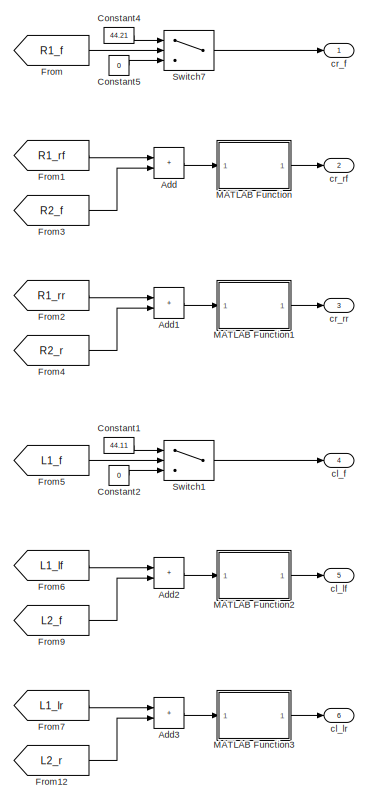
[diagram: rule44 - part 1/2, right side, full height]
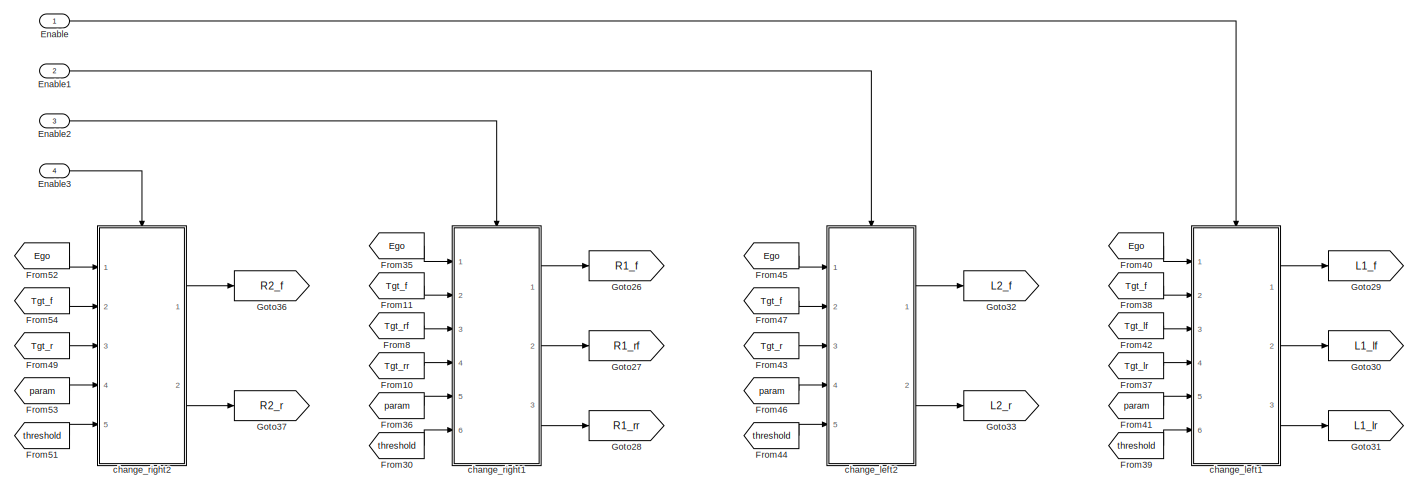
[diagram: rule44 - part 2/2, central region]
BLOCK [SubSystem] rule44
  Ports = [4, 6]
  RequestExecContextInheritance = off
BLOCK [Sum] rule44/Add
  IconShape = rectangular
  Ports = [2, 1]
BLOCK [Sum] rule44/Add1
  IconShape = rectangular
  Ports = [2, 1]
BLOCK [Sum] rule44/Add2
  IconShape = rectangular
  Ports = [2, 1]
BLOCK [Sum] rule44/Add3
  IconShape = rectangular
  Ports = [2, 1]
BLOCK [Constant] rule44/Constant1
  Value = 44.11
BLOCK [Constant] rule44/Constant2
  Value = 0
BLOCK [Constant] rule44/Constant4
  Value = 44.21
BLOCK [Constant] rule44/Constant5
  Value = 0
BLOCK [Inport] rule44/Enable
BLOCK [Inport] rule44/Enable1
  Port = 2
BLOCK [Inport] rule44/Enable2
  Port = 3
BLOCK [Inport] rule44/Enable3
  Port = 4
BLOCK [From] rule44/From
  GotoTag = R1_f
BLOCK [From] rule44/From1
  GotoTag = R1_rf
BLOCK [From] rule44/From10
  GotoTag = Tgt_rr
  TagVisibility = global
BLOCK [From] rule44/From11
  GotoTag = Tgt_f
  TagVisibility = global
BLOCK [From] rule44/From12
  GotoTag = L2_r
BLOCK [From] rule44/From2
  GotoTag = R1_rr
BLOCK [From] rule44/From3
  GotoTag = R2_f
BLOCK [From] rule44/From30
  GotoTag = threshold
  TagVisibility = global
BLOCK [From] rule44/From35
  GotoTag = Ego
  TagVisibility = global
BLOCK [From] rule44/From36
  GotoTag = param
  TagVisibility = global
BLOCK [From] rule44/From37
  GotoTag = Tgt_lr
  TagVisibility = global
BLOCK [From] rule44/From38
  GotoTag = Tgt_f
  TagVisibility = global
BLOCK [From] rule44/From39
  GotoTag = threshold
  TagVisibility = global
BLOCK [From] rule44/From4
  GotoTag = R2_r
BLOCK [From] rule44/From40
  GotoTag = Ego
  TagVisibility = global
BLOCK [From] rule44/From41
  GotoTag = param
  TagVisibility = global
BLOCK [From] rule44/From42
  GotoTag = Tgt_lf
  TagVisibility = global
BLOCK [From] rule44/From43
  GotoTag = Tgt_r
  TagVisibility = global
BLOCK [From] rule44/From44
  GotoTag = threshold
  TagVisibility = global
BLOCK [From] rule44/From45
  GotoTag = Ego
  TagVisibility = global
BLOCK [From] rule44/From46
  GotoTag = param
  TagVisibility = global
BLOCK [From] rule44/From47
  GotoTag = Tgt_f
  TagVisibility = global
BLOCK [From] rule44/From49
  GotoTag = Tgt_r
  TagVisibility = global
BLOCK [From] rule44/From5
  GotoTag = L1_f
BLOCK [From] rule44/From51
  GotoTag = threshold
  TagVisibility = global
BLOCK [From] rule44/From52
  GotoTag = Ego
  TagVisibility = global
BLOCK [From] rule44/From53
  GotoTag = param
  TagVisibility = global
BLOCK [From] rule44/From54
  GotoTag = Tgt_f
  TagVisibility = global
BLOCK [From] rule44/From6
  GotoTag = L1_lf
BLOCK [From] rule44/From7
  GotoTag = L1_lr
BLOCK [From] rule44/From8
  GotoTag = Tgt_rf
  TagVisibility = global
BLOCK [From] rule44/From9
  GotoTag = L2_f
BLOCK [Goto] rule44/Goto26
  GotoTag = R1_f
BLOCK [Goto] rule44/Goto27
  GotoTag = R1_rf
BLOCK [Goto] rule44/Goto28
  GotoTag = R1_rr
BLOCK [Goto] rule44/Goto29
  GotoTag = L1_f
BLOCK [Goto] rule44/Goto30
  GotoTag = L1_lf
BLOCK [Goto] rule44/Goto31
  GotoTag = L1_lr
BLOCK [Goto] rule44/Goto32
  GotoTag = L2_f
BLOCK [Goto] rule44/Goto33
  GotoTag = L2_r
BLOCK [Goto] rule44/Goto36
  GotoTag = R2_f
BLOCK [Goto] rule44/Goto37
  GotoTag = R2_r
BLOCK [SubSystem] rule44/MATLAB Function
  ErrorFcn = Stateflow.Translate.translate
  PermitHierarchicalResolution = ExplicitOnly
  Ports = [1, 1]
  RequestExecContextInheritance = off
  SFBlockType = MATLAB Function
  TreatAsAtomicUnit = on
BLOCK [Demux] rule44/MATLAB Function/ Demux 
  Outputs = 1
  Ports = [1, 1]
BLOCK [S-Function] rule44/MATLAB Function/ SFunction 
  EnableBusSupport = on
  FunctionName = sf_sfun
  PortCounts = [1 2]
  Ports = [1, 2]
  SFcnIsStateOwnerBlock = off
  SFunctionDeploymentMode = off
  Tag = Stateflow S-Function 8
BLOCK [Terminator] rule44/MATLAB Function/ Terminator 
BLOCK [Inport] rule44/MATLAB Function/u
BLOCK [Outport] rule44/MATLAB Function/y
BLOCK [SubSystem] rule44/MATLAB Function1
  ErrorFcn = Stateflow.Translate.translate
  PermitHierarchicalResolution = ExplicitOnly
  Ports = [1, 1]
  RequestExecContextInheritance = off
  SFBlockType = MATLAB Function
  TreatAsAtomicUnit = on
BLOCK [Demux] rule44/MATLAB Function1/ Demux 
  Outputs = 1
  Ports = [1, 1]
BLOCK [S-Function] rule44/MATLAB Function1/ SFunction 
  EnableBusSupport = on
  FunctionName = sf_sfun
  PortCounts = [1 2]
  Ports = [1, 2]
  SFcnIsStateOwnerBlock = off
  SFunctionDeploymentMode = off
  Tag = Stateflow S-Function 9
BLOCK [Terminator] rule44/MATLAB Function1/ Terminator 
BLOCK [Inport] rule44/MATLAB Function1/u
BLOCK [Outport] rule44/MATLAB Function1/y
BLOCK [SubSystem] rule44/MATLAB Function2
  ErrorFcn = Stateflow.Translate.translate
  PermitHierarchicalResolution = ExplicitOnly
  Ports = [1, 1]
  RequestExecContextInheritance = off
  SFBlockType = MATLAB Function
  TreatAsAtomicUnit = on
BLOCK [Demux] rule44/MATLAB Function2/ Demux 
  Outputs = 1
  Ports = [1, 1]
BLOCK [S-Function] rule44/MATLAB Function2/ SFunction 
  EnableBusSupport = on
  FunctionName = sf_sfun
  PortCounts = [1 2]
  Ports = [1, 2]
  SFcnIsStateOwnerBlock = off
  SFunctionDeploymentMode = off
  Tag = Stateflow S-Function 10
BLOCK [Terminator] rule44/MATLAB Function2/ Terminator 
BLOCK [Inport] rule44/MATLAB Function2/u
BLOCK [Outport] rule44/MATLAB Function2/y
BLOCK [SubSystem] rule44/MATLAB Function3
  ErrorFcn = Stateflow.Translate.translate
  PermitHierarchicalResolution = ExplicitOnly
  Ports = [1, 1]
  RequestExecContextInheritance = off
  SFBlockType = MATLAB Function
  TreatAsAtomicUnit = on
BLOCK [Demux] rule44/MATLAB Function3/ Demux 
  Outputs = 1
  Ports = [1, 1]
BLOCK [S-Function] rule44/MATLAB Function3/ SFunction 
  EnableBusSupport = on
  FunctionName = sf_sfun
  PortCounts = [1 2]
  Ports = [1, 2]
  SFcnIsStateOwnerBlock = off
  SFunctionDeploymentMode = off
  Tag = Stateflow S-Function 14
BLOCK [Terminator] rule44/MATLAB Function3/ Terminator 
BLOCK [Inport] rule44/MATLAB Function3/u
BLOCK [Outport] rule44/MATLAB Function3/y
BLOCK [Switch] rule44/Switch1
  Criteria = u2 > Threshold
  InputSameDT = off
  SaturateOnIntegerOverflow = off
BLOCK [Switch] rule44/Switch7
  Criteria = u2 > Threshold
  InputSameDT = off
  SaturateOnIntegerOverflow = off
BLOCK [SubSystem] rule44/change_left1
  Ports = [6, 3, 1]
  RequestExecContextInheritance = off
  TreatAsAtomicUnit = on
BLOCK [Inport] rule44/change_left1/Ego
BLOCK [EnablePort] rule44/change_left1/Enable
  Ports = []
  StatesWhenEnabling = reset
BLOCK [SubSystem] rule44/change_left1/L1
  ErrorFcn = Stateflow.Translate.translate
  PermitHierarchicalResolution = ExplicitOnly
  Ports = [6, 3]
  RequestExecContextInheritance = off
  SFBlockType = MATLAB Function
  TreatAsAtomicUnit = on
BLOCK [Demux] rule44/change_left1/L1/ Demux 
  Outputs = 1
  Ports = [1, 1]
BLOCK [S-Function] rule44/change_left1/L1/ SFunction 
  EnableBusSupport = on
  FunctionName = sf_sfun
  PortCounts = [6 4]
  Ports = [6, 4]
  SFcnIsStateOwnerBlock = off
  SFunctionDeploymentMode = off
  Tag = Stateflow S-Function 4
BLOCK [Terminator] rule44/change_left1/L1/ Terminator 
BLOCK [Inport] rule44/change_left1/L1/Ego
BLOCK [Inport] rule44/change_left1/L1/Tgt_f
  Port = 2
BLOCK [Inport] rule44/change_left1/L1/Tgt_lf
  Port = 3
BLOCK [Inport] rule44/change_left1/L1/Tgt_lr
  Port = 4
BLOCK [Inport] rule44/change_left1/L1/Threshold
  Port = 6
BLOCK [Inport] rule44/change_left1/L1/param
  Port = 5
BLOCK [Outport] rule44/change_left1/L1/y1
  VectorParamsAs1DForOutWhenUnconnected = off
BLOCK [Outport] rule44/change_left1/L1/y2
  Port = 2
  VectorParamsAs1DForOutWhenUnconnected = off
BLOCK [Outport] rule44/change_left1/L1/y3
  Port = 3
  VectorParamsAs1DForOutWhenUnconnected = off
BLOCK [Outport] rule44/change_left1/Output
  InitialOutput = 0
  OutputWhenDisabled = reset
BLOCK [Outport] rule44/change_left1/Output1
  InitialOutput = 0
  OutputWhenDisabled = reset
  Port = 2
BLOCK [Outport] rule44/change_left1/Output2
  InitialOutput = 0
  OutputWhenDisabled = reset
  Port = 3
BLOCK [Inport] rule44/change_left1/Tgtf
  Port = 2
BLOCK [Inport] rule44/change_left1/Tgtlf
  Port = 3
BLOCK [Inport] rule44/change_left1/Tgtlr
  Port = 4
BLOCK [Inport] rule44/change_left1/param
  Port = 5
BLOCK [Inport] rule44/change_left1/threshold
  Port = 6
BLOCK [SubSystem] rule44/change_left2
  Ports = [5, 2, 1]
  RequestExecContextInheritance = off
  TreatAsAtomicUnit = on
BLOCK [Inport] rule44/change_left2/Ego
BLOCK [EnablePort] rule44/change_left2/Enable
  Ports = []
  StatesWhenEnabling = reset
BLOCK [Outport] rule44/change_left2/Output1
  InitialOutput = 0
  OutputWhenDisabled = reset
BLOCK [Outport] rule44/change_left2/Output2
  InitialOutput = 0
  OutputWhenDisabled = reset
  Port = 2
BLOCK [Inport] rule44/change_left2/Tgtf
  Port = 2
BLOCK [Inport] rule44/change_left2/Tgtr
  Port = 3
BLOCK [SubSystem] rule44/change_left2/beforerchangelane
  ErrorFcn = Stateflow.Translate.translate
  PermitHierarchicalResolution = ExplicitOnly
  Ports = [5, 2]
  RequestExecContextInheritance = off
  SFBlockType = MATLAB Function
  TreatAsAtomicUnit = on
BLOCK [Demux] rule44/change_left2/beforerchangelane/ Demux 
  Outputs = 1
  Ports = [1, 1]
BLOCK [S-Function] rule44/change_left2/beforerchangelane/ SFunction 
  EnableBusSupport = on
  FunctionName = sf_sfun
  PortCounts = [5 3]
  Ports = [5, 3]
  SFcnIsStateOwnerBlock = off
  SFunctionDeploymentMode = off
  Tag = Stateflow S-Function 5
BLOCK [Terminator] rule44/change_left2/beforerchangelane/ Terminator 
BLOCK [Inport] rule44/change_left2/beforerchangelane/Ego
  Port = 3
BLOCK [Inport] rule44/change_left2/beforerchangelane/Tgt_f
BLOCK [Inport] rule44/change_left2/beforerchangelane/Tgt_r
  Port = 2
BLOCK [Inport] rule44/change_left2/beforerchangelane/Threshold
  Port = 5
BLOCK [Inport] rule44/change_left2/beforerchangelane/param
  Port = 4
BLOCK [Outport] rule44/change_left2/beforerchangelane/y2
  VectorParamsAs1DForOutWhenUnconnected = off
BLOCK [Outport] rule44/change_left2/beforerchangelane/y3
  Port = 2
  VectorParamsAs1DForOutWhenUnconnected = off
BLOCK [Inport] rule44/change_left2/param
  Port = 4
BLOCK [Inport] rule44/change_left2/threshold
  Port = 5
BLOCK [SubSystem] rule44/change_right1
  Ports = [6, 3, 1]
  RequestExecContextInheritance = off
  TreatAsAtomicUnit = on
BLOCK [Inport] rule44/change_right1/Ego
BLOCK [EnablePort] rule44/change_right1/Enable
  Ports = []
  StatesWhenEnabling = reset
BLOCK [Outport] rule44/change_right1/Output
  InitialOutput = 0
  OutputWhenDisabled = reset
BLOCK [Outport] rule44/change_right1/Output1
  InitialOutput = 0
  OutputWhenDisabled = reset
  Port = 2
BLOCK [Outport] rule44/change_right1/Output2
  InitialOutput = 0
  OutputWhenDisabled = reset
  Port = 3
BLOCK [Inport] rule44/change_right1/Tgtf
  Port = 2
BLOCK [Inport] rule44/change_right1/Tgtrf
  Port = 3
BLOCK [Inport] rule44/change_right1/Tgtrr
  Port = 4
BLOCK [SubSystem] rule44/change_right1/beforerchangelane
  ErrorFcn = Stateflow.Translate.translate
  PermitHierarchicalResolution = ExplicitOnly
  Ports = [6, 3]
  RequestExecContextInheritance = off
  SFBlockType = MATLAB Function
  TreatAsAtomicUnit = on
BLOCK [Demux] rule44/change_right1/beforerchangelane/ Demux 
  Outputs = 1
  Ports = [1, 1]
BLOCK [S-Function] rule44/change_right1/beforerchangelane/ SFunction 
  EnableBusSupport = on
  FunctionName = sf_sfun
  PortCounts = [6 4]
  Ports = [6, 4]
  SFcnIsStateOwnerBlock = off
  SFunctionDeploymentMode = off
  Tag = Stateflow S-Function 19
BLOCK [Terminator] rule44/change_right1/beforerchangelane/ Terminator 
BLOCK [Inport] rule44/change_right1/beforerchangelane/Ego
BLOCK [Inport] rule44/change_right1/beforerchangelane/Tgt_f
  Port = 2
BLOCK [Inport] rule44/change_right1/beforerchangelane/Tgt_rf
  Port = 3
BLOCK [Inport] rule44/change_right1/beforerchangelane/Tgt_rr
  Port = 4
BLOCK [Inport] rule44/change_right1/beforerchangelane/Threshold
  Port = 6
BLOCK [Inport] rule44/change_right1/beforerchangelane/param
  Port = 5
BLOCK [Outport] rule44/change_right1/beforerchangelane/y1
  VectorParamsAs1DForOutWhenUnconnected = off
BLOCK [Outport] rule44/change_right1/beforerchangelane/y2
  Port = 2
  VectorParamsAs1DForOutWhenUnconnected = off
BLOCK [Outport] rule44/change_right1/beforerchangelane/y3
  Port = 3
  VectorParamsAs1DForOutWhenUnconnected = off
BLOCK [Inport] rule44/change_right1/param
  Port = 5
BLOCK [Inport] rule44/change_right1/threshold
  Port = 6
BLOCK [SubSystem] rule44/change_right2
  Ports = [5, 2, 1]
  RequestExecContextInheritance = off
  TreatAsAtomicUnit = on
BLOCK [Inport] rule44/change_right2/Ego
BLOCK [EnablePort] rule44/change_right2/Enable
  Ports = []
  StatesWhenEnabling = reset
BLOCK [Outport] rule44/change_right2/Output1
  InitialOutput = 0
  OutputWhenDisabled = reset
BLOCK [Outport] rule44/change_right2/Output2
  InitialOutput = 0
  OutputWhenDisabled = reset
  Port = 2
BLOCK [Inport] rule44/change_right2/Tgtf
  Port = 2
BLOCK [Inport] rule44/change_right2/Tgtr
  Port = 3
BLOCK [SubSystem] rule44/change_right2/beforerchangelane
  ErrorFcn = Stateflow.Translate.translate
  PermitHierarchicalResolution = ExplicitOnly
  Ports = [5, 2]
  RequestExecContextInheritance = off
  SFBlockType = MATLAB Function
  TreatAsAtomicUnit = on
BLOCK [Demux] rule44/change_right2/beforerchangelane/ Demux 
  Outputs = 1
  Ports = [1, 1]
BLOCK [S-Function] rule44/change_right2/beforerchangelane/ SFunction 
  EnableBusSupport = on
  FunctionName = sf_sfun
  PortCounts = [5 3]
  Ports = [5, 3]
  SFcnIsStateOwnerBlock = off
  SFunctionDeploymentMode = off
  Tag = Stateflow S-Function 6
BLOCK [Terminator] rule44/change_right2/beforerchangelane/ Terminator 
BLOCK [Inport] rule44/change_right2/beforerchangelane/Ego
  Port = 3
BLOCK [Inport] rule44/change_right2/beforerchangelane/Tgt_f
BLOCK [Inport] rule44/change_right2/beforerchangelane/Tgt_r
  Port = 2
BLOCK [Inport] rule44/change_right2/beforerchangelane/Threshold
  Port = 5
BLOCK [Inport] rule44/change_right2/beforerchangelane/param
  Port = 4
BLOCK [Outport] rule44/change_right2/beforerchangelane/y2
  VectorParamsAs1DForOutWhenUnconnected = off
BLOCK [Outport] rule44/change_right2/beforerchangelane/y3
  Port = 2
  VectorParamsAs1DForOutWhenUnconnected = off
BLOCK [Inport] rule44/change_right2/param
  Port = 4
BLOCK [Inport] rule44/change_right2/threshold
  Port = 5
BLOCK [Outport] rule44/cl_f
  Port = 4
BLOCK [Outport] rule44/cl_lf
  Port = 5
BLOCK [Outport] rule44/cl_lr
  Port = 6
BLOCK [Outport] rule44/cr_f
BLOCK [Outport] rule44/cr_rf
  Port = 2
BLOCK [Outport] rule44/cr_rr
  Port = 3
BLOCK [SubSystem] rule46_1
  Ports = [1, 2, 1]
  RequestExecContextInheritance = off
  TreatAsAtomicUnit = on
BLOCK [Inport] rule46_1/Ego
BLOCK [EnablePort] rule46_1/Enable
  Ports = []
  StatesWhenEnabling = reset
BLOCK [SubSystem] rule46_1/Speedmonitor
  ErrorFcn = Stateflow.Translate.translate
  PermitHierarchicalResolution = ExplicitOnly
  Ports = [1, 2]
  RequestExecContextInheritance = off
  SFBlockType = MATLAB Function
  TreatAsAtomicUnit = on
BLOCK [Demux] rule46_1/Speedmonitor/ Demux 
  Outputs = 1
  Ports = [1, 1]
BLOCK [S-Function] rule46_1/Speedmonitor/ SFunction 
  EnableBusSupport = on
  FunctionName = sf_sfun
  PortCounts = [1 3]
  Ports = [1, 3]
  SFcnIsStateOwnerBlock = off
  SFunctionDeploymentMode = off
  Tag = Stateflow S-Function 16
BLOCK [Terminator] rule46_1/Speedmonitor/ Terminator 
BLOCK [Inport] rule46_1/Speedmonitor/Ego
BLOCK [Outport] rule46_1/Speedmonitor/cs
  Port = 2
BLOCK [Outport] rule46_1/Speedmonitor/y
BLOCK [Outport] rule46_1/cs
  InitialOutput = [0 120]
  OutputWhenDisabled = reset
  Port = 2
BLOCK [Outport] rule46_1/y1
  InitialOutput = 0
  OutputWhenDisabled = reset
BLOCK [SubSystem] rule46_2
  Ports = [1, 2, 1]
  RequestExecContextInheritance = off
  TreatAsAtomicUnit = on
BLOCK [Inport] rule46_2/Ego
BLOCK [EnablePort] rule46_2/Enable
  Ports = []
  StatesWhenEnabling = reset
BLOCK [SubSystem] rule46_2/Speedmonitor
  ErrorFcn = Stateflow.Translate.translate
  PermitHierarchicalResolution = ExplicitOnly
  Ports = [1, 2]
  RequestExecContextInheritance = off
  SFBlockType = MATLAB Function
  TreatAsAtomicUnit = on
BLOCK [Demux] rule46_2/Speedmonitor/ Demux 
  Outputs = 1
  Ports = [1, 1]
BLOCK [S-Function] rule46_2/Speedmonitor/ SFunction 
  EnableBusSupport = on
  FunctionName = sf_sfun
  PortCounts = [1 3]
  Ports = [1, 3]
  SFcnIsStateOwnerBlock = off
  SFunctionDeploymentMode = off
  Tag = Stateflow S-Function 18
BLOCK [Terminator] rule46_2/Speedmonitor/ Terminator 
BLOCK [Inport] rule46_2/Speedmonitor/Ego
BLOCK [Outport] rule46_2/Speedmonitor/cs
  Port = 2
BLOCK [Outport] rule46_2/Speedmonitor/y
BLOCK [Outport] rule46_2/cs
  InitialOutput = [0 120]
  OutputWhenDisabled = reset
  Port = 2
BLOCK [Outport] rule46_2/y1
  InitialOutput = 0
  OutputWhenDisabled = reset
BLOCK [SubSystem] rule47_1_l
  Ports = [2, 1, 1]
  RequestExecContextInheritance = off
  TreatAsAtomicUnit = on
BLOCK [EnablePort] rule47_1_l/Enable
  Ports = []
  StatesWhenEnabling = reset
BLOCK [SubSystem] rule47_1_l/Speedmonitor
  ErrorFcn = Stateflow.Translate.translate
  PermitHierarchicalResolution = ExplicitOnly
  Ports = [2, 1]
  RequestExecContextInheritance = off
  SFBlockType = MATLAB Function
  TreatAsAtomicUnit = on
BLOCK [Demux] rule47_1_l/Speedmonitor/ Demux 
  Outputs = 1
  Ports = [1, 1]
BLOCK [S-Function] rule47_1_l/Speedmonitor/ SFunction 
  EnableBusSupport = on
  FunctionName = sf_sfun
  PortCounts = [2 2]
  Ports = [2, 2]
  SFcnIsStateOwnerBlock = off
  SFunctionDeploymentMode = off
  Tag = Stateflow S-Function 20
BLOCK [Terminator] rule47_1_l/Speedmonitor/ Terminator 
BLOCK [Inport] rule47_1_l/Speedmonitor/light
  Port = 2
BLOCK [Inport] rule47_1_l/Speedmonitor/threshold
BLOCK [Outport] rule47_1_l/Speedmonitor/y
BLOCK [Inport] rule47_1_l/light
  Port = 2
BLOCK [Inport] rule47_1_l/threshold
BLOCK [Outport] rule47_1_l/y1
  InitialOutput = 0
  OutputWhenDisabled = reset
BLOCK [SubSystem] rule47_1_r
  Ports = [2, 1, 1]
  RequestExecContextInheritance = off
  TreatAsAtomicUnit = on
BLOCK [EnablePort] rule47_1_r/Enable
  Ports = []
  StatesWhenEnabling = reset
BLOCK [SubSystem] rule47_1_r/Speedmonitor
  ErrorFcn = Stateflow.Translate.translate
  PermitHierarchicalResolution = ExplicitOnly
  Ports = [2, 1]
  RequestExecContextInheritance = off
  SFBlockType = MATLAB Function
  TreatAsAtomicUnit = on
BLOCK [Demux] rule47_1_r/Speedmonitor/ Demux 
  Outputs = 1
  Ports = [1, 1]
BLOCK [S-Function] rule47_1_r/Speedmonitor/ SFunction 
  EnableBusSupport = on
  FunctionName = sf_sfun
  PortCounts = [2 2]
  Ports = [2, 2]
  SFcnIsStateOwnerBlock = off
  SFunctionDeploymentMode = off
  Tag = Stateflow S-Function 21
BLOCK [Terminator] rule47_1_r/Speedmonitor/ Terminator 
BLOCK [Inport] rule47_1_r/Speedmonitor/light
  Port = 2
BLOCK [Inport] rule47_1_r/Speedmonitor/threshold
BLOCK [Outport] rule47_1_r/Speedmonitor/y
BLOCK [Inport] rule47_1_r/light
  Port = 2
BLOCK [Inport] rule47_1_r/threshold
BLOCK [Outport] rule47_1_r/y1
  InitialOutput = 0
  OutputWhenDisabled = reset
BLOCK [SubSystem] rule47_2_r
  Ports = [4, 1, 1]
  RequestExecContextInheritance = off
  TreatAsAtomicUnit = on
BLOCK [Reference] rule47_2_r/Compare To Constant10  REF=simulink/Logic and Bit
Operations/Compare
To Constant
  Ports = [1, 1]
  SourceBlock = simulink/Logic and Bit\nOperations/Compare\nTo Constant
  SourceProductBaseCode = SL
  SourceType = Compare To Constant
BLOCK [Reference] rule47_2_r/Compare To Constant6  REF=simulink/Logic and Bit
Operations/Compare
To Constant
  Ports = [1, 1]
  SourceBlock = simulink/Logic and Bit\nOperations/Compare\nTo Constant
  SourceProductBaseCode = SL
  SourceType = Compare To Constant
BLOCK [Reference] rule47_2_r/Compare To Constant8  REF=simulink/Logic and Bit
Operations/Compare
To Constant
  Ports = [1, 1]
  SourceBlock = simulink/Logic and Bit\nOperations/Compare\nTo Constant
  SourceProductBaseCode = SL
  SourceType = Compare To Constant
BLOCK [EnablePort] rule47_2_r/Enable
  Ports = []
  StatesWhenEnabling = reset
BLOCK [Logic] rule47_2_r/Logical Operator
  AllPortsSameDT = off
  OutDataTypeStr = boolean
  Ports = [2, 1]
BLOCK [Logic] rule47_2_r/Logical Operator1
  AllPortsSameDT = off
  OutDataTypeStr = boolean
  Ports = [2, 1]
BLOCK [Logic] rule47_2_r/Logical Operator2
  AllPortsSameDT = off
  OutDataTypeStr = boolean
  Ports = [2, 1]
BLOCK [Logic] rule47_2_r/Logical Operator3
  AllPortsSameDT = off
  Operator = NOT
  OutDataTypeStr = boolean
  Ports = [1, 1]
BLOCK [Logic] rule47_2_r/Logical Operator7
  AllPortsSameDT = off
  Inputs = 3
  Operator = OR
  OutDataTypeStr = boolean
  Ports = [3, 1]
BLOCK [Outport] rule47_2_r/Out1
  InitialOutput = 0
  OutputWhenDisabled = reset
BLOCK [Inport] rule47_2_r/Tol
  Port = 3
BLOCK [Inport] rule47_2_r/laneot
BLOCK [Inport] rule47_2_r/left1
  Port = 4
BLOCK [Inport] rule47_2_r/right1
  Port = 2
BLOCK [SubSystem] rule53_1
  Ports = [1, 1, 1]
  RequestExecContextInheritance = off
  TreatAsAtomicUnit = on
BLOCK [Constant] rule53_1/Constant
BLOCK [Constant] rule53_1/Constant1
  Value = 0
BLOCK [EnablePort] rule53_1/Enable
  Ports = []
  StatesWhenEnabling = reset
BLOCK [Inport] rule53_1/In1
BLOCK [Outport] rule53_1/Output
  InitialOutput = 0
  OutputWhenDisabled = reset
BLOCK [Switch] rule53_1/Switch
  Criteria = u2 > Threshold
  InputSameDT = off
  SaturateOnIntegerOverflow = off
BLOCK [SubSystem] rule58_1
  Ports = [1, 1, 1]
  RequestExecContextInheritance = off
  TreatAsAtomicUnit = on
BLOCK [EnablePort] rule58_1/Enable
  Ports = []
  StatesWhenEnabling = reset
BLOCK [Inport] rule58_1/light
BLOCK [SubSystem] rule58_1/light usage
  ErrorFcn = Stateflow.Translate.translate
  PermitHierarchicalResolution = ExplicitOnly
  Ports = [1, 1]
  RequestExecContextInheritance = off
  SFBlockType = MATLAB Function
  TreatAsAtomicUnit = on
BLOCK [Demux] rule58_1/light usage/ Demux 
  Outputs = 1
  Ports = [1, 1]
BLOCK [S-Function] rule58_1/light usage/ SFunction 
  EnableBusSupport = on
  FunctionName = sf_sfun
  PortCounts = [1 2]
  Ports = [1, 2]
  SFcnIsStateOwnerBlock = off
  SFunctionDeploymentMode = off
  Tag = Stateflow S-Function 38
BLOCK [Terminator] rule58_1/light usage/ Terminator 
BLOCK [Inport] rule58_1/light usage/light
BLOCK [Outport] rule58_1/light usage/y
BLOCK [Outport] rule58_1/y
  InitialOutput = 0
  OutputWhenDisabled = reset
BLOCK [SubSystem] rule58_2
  Ports = [1, 1, 1]
  RequestExecContextInheritance = off
  TreatAsAtomicUnit = on
BLOCK [EnablePort] rule58_2/Enable
  Ports = []
  StatesWhenEnabling = reset
BLOCK [Inport] rule58_2/light
BLOCK [SubSystem] rule58_2/light usage
  ErrorFcn = Stateflow.Translate.translate
  PermitHierarchicalResolution = ExplicitOnly
  Ports = [1, 1]
  RequestExecContextInheritance = off
  SFBlockType = MATLAB Function
  TreatAsAtomicUnit = on
BLOCK [Demux] rule58_2/light usage/ Demux 
  Outputs = 1
  Ports = [1, 1]
BLOCK [S-Function] rule58_2/light usage/ SFunction 
  EnableBusSupport = on
  FunctionName = sf_sfun
  PortCounts = [1 2]
  Ports = [1, 2]
  SFcnIsStateOwnerBlock = off
  SFunctionDeploymentMode = off
  Tag = Stateflow S-Function 40
BLOCK [Terminator] rule58_2/light usage/ Terminator 
BLOCK [Inport] rule58_2/light usage/light
BLOCK [Outport] rule58_2/light usage/y
BLOCK [Outport] rule58_2/y
  InitialOutput = 0
  OutputWhenDisabled = reset
BLOCK [SubSystem] rule78
  Ports = [4, 2, 1]
  RequestExecContextInheritance = off
  TreatAsAtomicUnit = on
BLOCK [SubSystem] rule78/AreaDetermine
  Ports = [2, 1]
  RequestExecContextInheritance = off
BLOCK [Sum] rule78/AreaDetermine/Add1
  IconShape = rectangular
  Inputs = +-
  Ports = [2, 1]
BLOCK [Clock] rule78/AreaDetermine/Clock
BLOCK [Constant] rule78/AreaDetermine/Constant
BLOCK [Constant] rule78/AreaDetermine/Constant2
  Value = 0
BLOCK [Inport] rule78/AreaDetermine/Enter
BLOCK [Memory] rule78/AreaDetermine/Memory
BLOCK [Memory] rule78/AreaDetermine/Memory1
BLOCK [Switch] rule78/AreaDetermine/Switch2
  Criteria = u2 > Threshold
  InputSameDT = off
  SaturateOnIntegerOverflow = off
BLOCK [SubSystem] rule78/AreaDetermine/Triggered Subsystem4
  Ports = [1, 1, 0, 1]
  RequestExecContextInheritance = off
  TreatAsAtomicUnit = on
BLOCK [Inport] rule78/AreaDetermine/Triggered Subsystem4/In1
BLOCK [Outport] rule78/AreaDetermine/Triggered Subsystem4/Out1
BLOCK [TriggerPort] rule78/AreaDetermine/Triggered Subsystem4/Trigger
  Ports = []
  StatesWhenEnabling = held
  VariantControl = (inherit)
BLOCK [SubSystem] rule78/AreaDetermine/Triggered Subsystem5
  Ports = [1, 1, 0, 1]
  RequestExecContextInheritance = off
  TreatAsAtomicUnit = on
BLOCK [Inport] rule78/AreaDetermine/Triggered Subsystem5/In1
BLOCK [Outport] rule78/AreaDetermine/Triggered Subsystem5/Out1
BLOCK [TriggerPort] rule78/AreaDetermine/Triggered Subsystem5/Trigger
  Ports = []
  StatesWhenEnabling = held
  VariantControl = (inherit)
BLOCK [Inport] rule78/AreaDetermine/clear
  Port = 2
BLOCK [Outport] rule78/AreaDetermine/spdsign_section
BLOCK [Inport] rule78/Ego
BLOCK [EnablePort] rule78/Enable
  Ports = []
  StatesWhenEnabling = reset
BLOCK [SubSystem] rule78/Speedmonitor
  ErrorFcn = Stateflow.Translate.translate
  PermitHierarchicalResolution = ExplicitOnly
  Ports = [5, 3]
  RequestExecContextInheritance = off
  SFBlockType = MATLAB Function
  TreatAsAtomicUnit = on
BLOCK [Demux] rule78/Speedmonitor/ Demux 
  Outputs = 1
  Ports = [1, 1]
BLOCK [S-Function] rule78/Speedmonitor/ SFunction 
  EnableBusSupport = on
  FunctionName = sf_sfun
  PortCounts = [5 4]
  Ports = [5, 4]
  SFcnIsStateOwnerBlock = off
  SFunctionDeploymentMode = off
  Tag = Stateflow S-Function 13
BLOCK [Terminator] rule78/Speedmonitor/ Terminator 
BLOCK [Inport] rule78/Speedmonitor/Ego
BLOCK [Outport] rule78/Speedmonitor/clear
  Port = 3
BLOCK [Outport] rule78/Speedmonitor/cs
  Port = 2
BLOCK [Inport] rule78/Speedmonitor/respeedsign
  Port = 3
BLOCK [Inport] rule78/Speedmonitor/roadinfo
  Port = 5
BLOCK [Inport] rule78/Speedmonitor/spdsign_section
  Port = 4
BLOCK [Inport] rule78/Speedmonitor/speedsign
  Port = 2
BLOCK [Outport] rule78/Speedmonitor/y
BLOCK [SubSystem] rule78/Speedsigncalculate
  ErrorFcn = Stateflow.Translate.translate
  PermitHierarchicalResolution = ExplicitOnly
  Ports = [2, 1]
  RequestExecContextInheritance = off
  SFBlockType = MATLAB Function
  TreatAsAtomicUnit = on
BLOCK [Demux] rule78/Speedsigncalculate/ Demux 
  Outputs = 1
  Ports = [1, 1]
BLOCK [S-Function] rule78/Speedsigncalculate/ SFunction 
  EnableBusSupport = on
  FunctionName = sf_sfun
  PortCounts = [2 2]
  Ports = [2, 2]
  SFcnIsStateOwnerBlock = off
  SFunctionDeploymentMode = off
  Tag = Stateflow S-Function 12
BLOCK [Terminator] rule78/Speedsigncalculate/ Terminator 
BLOCK [Inport] rule78/Speedsigncalculate/Ego
BLOCK [Outport] rule78/Speedsigncalculate/Enter_spdlimit_section
BLOCK [Inport] rule78/Speedsigncalculate/speedsign
  Port = 2
BLOCK [Inport] rule78/respeedsign
  Port = 3
BLOCK [Inport] rule78/roadinfo
  Port = 4
BLOCK [Inport] rule78/speedsign
  Port = 2
BLOCK [Outport] rule78/y1
  InitialOutput = 0
  OutputWhenDisabled = reset
BLOCK [Outport] rule78/y2
  InitialOutput = [0 120]
  OutputWhenDisabled = reset
  Port = 2
BLOCK [SubSystem] rule79_1
  Ports = [1, 1, 1]
  RequestExecContextInheritance = off
  TreatAsAtomicUnit = on
BLOCK [EnablePort] rule79_1/Enable
  Ports = []
  StatesWhenEnabling = reset
BLOCK [Inport] rule79_1/light
BLOCK [SubSystem] rule79_1/light usage
  ErrorFcn = Stateflow.Translate.translate
  PermitHierarchicalResolution = ExplicitOnly
  Ports = [1, 1]
  RequestExecContextInheritance = off
  SFBlockType = MATLAB Function
  TreatAsAtomicUnit = on
BLOCK [Demux] rule79_1/light usage/ Demux 
  Outputs = 1
  Ports = [1, 1]
BLOCK [S-Function] rule79_1/light usage/ SFunction 
  EnableBusSupport = on
  FunctionName = sf_sfun
  PortCounts = [1 2]
  Ports = [1, 2]
  SFcnIsStateOwnerBlock = off
  SFunctionDeploymentMode = off
  Tag = Stateflow S-Function 44
BLOCK [Terminator] rule79_1/light usage/ Terminator 
BLOCK [Inport] rule79_1/light usage/light
BLOCK [Outport] rule79_1/light usage/y
BLOCK [Outport] rule79_1/y
  InitialOutput = 0
  OutputWhenDisabled = reset
BLOCK [SubSystem] rule79_2
  Ports = [1, 1, 1]
  RequestExecContextInheritance = off
  TreatAsAtomicUnit = on
BLOCK [EnablePort] rule79_2/Enable
  Ports = []
  StatesWhenEnabling = reset
BLOCK [Selector] rule79_2/Selector
  IndexOptions = Index vector (dialog)
  Indices = [5 6]
  InputPortWidth = 6
  OutputSizes = 1
  Ports = [1, 1]
BLOCK [Inport] rule79_2/rule44
BLOCK [Outport] rule79_2/y
  InitialOutput = 0
  OutputWhenDisabled = reset
BLOCK [SubSystem] rule79_3
  Ports = [1, 1, 1]
  RequestExecContextInheritance = off
  TreatAsAtomicUnit = on
BLOCK [EnablePort] rule79_3/Enable
  Ports = []
  StatesWhenEnabling = reset
BLOCK [Inport] rule79_3/light
BLOCK [SubSystem] rule79_3/light usage
  ErrorFcn = Stateflow.Translate.translate
  PermitHierarchicalResolution = ExplicitOnly
  Ports = [1, 1]
  RequestExecContextInheritance = off
  SFBlockType = MATLAB Function
  TreatAsAtomicUnit = on
BLOCK [Demux] rule79_3/light usage/ Demux 
  Outputs = 1
  Ports = [1, 1]
BLOCK [S-Function] rule79_3/light usage/ SFunction 
  EnableBusSupport = on
  FunctionName = sf_sfun
  PortCounts = [1 2]
  Ports = [1, 2]
  SFcnIsStateOwnerBlock = off
  SFunctionDeploymentMode = off
  Tag = Stateflow S-Function 28
BLOCK [Terminator] rule79_3/light usage/ Terminator 
BLOCK [Inport] rule79_3/light usage/light
BLOCK [Outport] rule79_3/light usage/y
BLOCK [Outport] rule79_3/y
  InitialOutput = 0
  OutputWhenDisabled = reset
BLOCK [SubSystem] rule79_4
  Ports = [2, 1, 1]
  RequestExecContextInheritance = off
  TreatAsAtomicUnit = on
BLOCK [Inport] rule79_4/Ego
BLOCK [EnablePort] rule79_4/Enable
  Ports = []
  StatesWhenEnabling = reset
BLOCK [SubSystem] rule79_4/MATLAB Function
  ErrorFcn = Stateflow.Translate.translate
  PermitHierarchicalResolution = ExplicitOnly
  Ports = [2, 1]
  RequestExecContextInheritance = off
  SFBlockType = MATLAB Function
  TreatAsAtomicUnit = on
BLOCK [Demux] rule79_4/MATLAB Function/ Demux 
  Outputs = 1
  Ports = [1, 1]
BLOCK [S-Function] rule79_4/MATLAB Function/ SFunction 
  EnableBusSupport = on
  FunctionName = sf_sfun
  PortCounts = [2 2]
  Ports = [2, 2]
  SFcnIsStateOwnerBlock = off
  SFunctionDeploymentMode = off
  Tag = Stateflow S-Function 46
BLOCK [Terminator] rule79_4/MATLAB Function/ Terminator 
BLOCK [Inport] rule79_4/MATLAB Function/Ego
BLOCK [Inport] rule79_4/MATLAB Function/threshold
  Port = 2
BLOCK [Outport] rule79_4/MATLAB Function/y
BLOCK [Inport] rule79_4/threshold
  Port = 2
BLOCK [Outport] rule79_4/y
  InitialOutput = 0
  OutputWhenDisabled = reset
BLOCK [SubSystem] rule79_5
  Ports = [2, 1, 1]
  RequestExecContextInheritance = off
  TreatAsAtomicUnit = on
BLOCK [Inport] rule79_5/Ego
BLOCK [EnablePort] rule79_5/Enable
  Ports = []
  StatesWhenEnabling = reset
BLOCK [SubSystem] rule79_5/MATLAB Function
  ErrorFcn = Stateflow.Translate.translate
  PermitHierarchicalResolution = ExplicitOnly
  Ports = [2, 1]
  RequestExecContextInheritance = off
  SFBlockType = MATLAB Function
  TreatAsAtomicUnit = on
BLOCK [Demux] rule79_5/MATLAB Function/ Demux 
  Outputs = 1
  Ports = [1, 1]
BLOCK [S-Function] rule79_5/MATLAB Function/ SFunction 
  EnableBusSupport = on
  FunctionName = sf_sfun
  PortCounts = [2 2]
  Ports = [2, 2]
  SFcnIsStateOwnerBlock = off
  SFunctionDeploymentMode = off
  Tag = Stateflow S-Function 67
BLOCK [Terminator] rule79_5/MATLAB Function/ Terminator 
BLOCK [Inport] rule79_5/MATLAB Function/Ego
BLOCK [Inport] rule79_5/MATLAB Function/threshold
  Port = 2
BLOCK [Outport] rule79_5/MATLAB Function/y
BLOCK [Inport] rule79_5/threshold
  Port = 2
BLOCK [Outport] rule79_5/y
  InitialOutput = 0
  OutputWhenDisabled = reset
BLOCK [SubSystem] rule80
  Ports = [1, 1, 1]
  RequestExecContextInheritance = off
  TreatAsAtomicUnit = on
BLOCK [Outport] rule80/CD
  InitialOutput = -1
  OutputWhenDisabled = reset
BLOCK [Inport] rule80/Ego
BLOCK [EnablePort] rule80/Enable
  Ports = []
  StatesWhenEnabling = reset
BLOCK [SubSystem] rule80/FollowingDistance
  ErrorFcn = Stateflow.Translate.translate
  PermitHierarchicalResolution = ExplicitOnly
  Ports = [1, 1]
  RequestExecContextInheritance = off
  SFBlockType = MATLAB Function
  TreatAsAtomicUnit = on
BLOCK [Demux] rule80/FollowingDistance/ Demux 
  Outputs = 1
  Ports = [1, 1]
BLOCK [S-Function] rule80/FollowingDistance/ SFunction 
  EnableBusSupport = on
  FunctionName = sf_sfun
  PortCounts = [1 2]
  Ports = [1, 2]
  SFcnIsStateOwnerBlock = off
  SFunctionDeploymentMode = off
  Tag = Stateflow S-Function 7
BLOCK [Terminator] rule80/FollowingDistance/ Terminator 
BLOCK [Outport] rule80/FollowingDistance/CD
BLOCK [Inport] rule80/FollowingDistance/Ego
BLOCK [SubSystem] rule80/FollowingDistance1
  Commented = on
  ErrorFcn = Stateflow.Translate.translate
  PermitHierarchicalResolution = ExplicitOnly
  Ports = [3, 3]
  RequestExecContextInheritance = off
  SFBlockType = MATLAB Function
  TreatAsAtomicUnit = on
BLOCK [Demux] rule80/FollowingDistance1/ Demux 
  Outputs = 1
  Ports = [1, 1]
BLOCK [S-Function] rule80/FollowingDistance1/ SFunction 
  EnableBusSupport = on
  FunctionName = sf_sfun
  PortCounts = [3 4]
  Ports = [3, 4]
  SFcnIsStateOwnerBlock = off
  SFunctionDeploymentMode = off
  Tag = Stateflow S-Function 30
BLOCK [Terminator] rule80/FollowingDistance1/ Terminator 
BLOCK [Outport] rule80/FollowingDistance1/CD
  Port = 3
BLOCK [Outport] rule80/FollowingDistance1/Dis
  Port = 2
BLOCK [Inport] rule80/FollowingDistance1/Ego
BLOCK [Inport] rule80/FollowingDistance1/Ego_fl
  Port = 3
BLOCK [Inport] rule80/FollowingDistance1/Tgt_f
  Port = 2
BLOCK [Outport] rule80/FollowingDistance1/y
BLOCK [SubSystem] rule81_1
  Ports = [1, 1, 1]
  RequestExecContextInheritance = off
  TreatAsAtomicUnit = on
BLOCK [EnablePort] rule81_1/Enable
  Ports = []
  StatesWhenEnabling = reset
BLOCK [Inport] rule81_1/light
BLOCK [SubSystem] rule81_1/light usage
  ErrorFcn = Stateflow.Translate.translate
  PermitHierarchicalResolution = ExplicitOnly
  Ports = [1, 1]
  RequestExecContextInheritance = off
  SFBlockType = MATLAB Function
  TreatAsAtomicUnit = on
BLOCK [Demux] rule81_1/light usage/ Demux 
  Outputs = 1
  Ports = [1, 1]
BLOCK [S-Function] rule81_1/light usage/ SFunction 
  EnableBusSupport = on
  FunctionName = sf_sfun
  PortCounts = [1 2]
  Ports = [1, 2]
  SFcnIsStateOwnerBlock = off
  SFunctionDeploymentMode = off
  Tag = Stateflow S-Function 48
BLOCK [Terminator] rule81_1/light usage/ Terminator 
BLOCK [Inport] rule81_1/light usage/light
BLOCK [Outport] rule81_1/light usage/y
BLOCK [Outport] rule81_1/y
  InitialOutput = 0
  OutputWhenDisabled = reset
BLOCK [SubSystem] rule81_2
  Ports = [1, 1, 1]
  RequestExecContextInheritance = off
  TreatAsAtomicUnit = on
BLOCK [EnablePort] rule81_2/Enable
  Ports = []
  StatesWhenEnabling = reset
BLOCK [Inport] rule81_2/light
BLOCK [SubSystem] rule81_2/light usage
  ErrorFcn = Stateflow.Translate.translate
  PermitHierarchicalResolution = ExplicitOnly
  Ports = [1, 1]
  RequestExecContextInheritance = off
  SFBlockType = MATLAB Function
  TreatAsAtomicUnit = on
BLOCK [Demux] rule81_2/light usage/ Demux 
  Outputs = 1
  Ports = [1, 1]
BLOCK [S-Function] rule81_2/light usage/ SFunction 
  EnableBusSupport = on
  FunctionName = sf_sfun
  PortCounts = [1 2]
  Ports = [1, 2]
  SFcnIsStateOwnerBlock = off
  SFunctionDeploymentMode = off
  Tag = Stateflow S-Function 49
BLOCK [Terminator] rule81_2/light usage/ Terminator 
BLOCK [Inport] rule81_2/light usage/light
BLOCK [Outport] rule81_2/light usage/y
BLOCK [Outport] rule81_2/y
  InitialOutput = 0
  OutputWhenDisabled = reset
BLOCK [SubSystem] rule81_3
  Ports = [1, 2, 1]
  RequestExecContextInheritance = off
  TreatAsAtomicUnit = on
BLOCK [Inport] rule81_3/Ego
BLOCK [EnablePort] rule81_3/Enable
  Ports = []
  StatesWhenEnabling = reset
BLOCK [SubSystem] rule81_3/Speedmonitor
  ErrorFcn = Stateflow.Translate.translate
  PermitHierarchicalResolution = ExplicitOnly
  Ports = [1, 2]
  RequestExecContextInheritance = off
  SFBlockType = MATLAB Function
  TreatAsAtomicUnit = on
BLOCK [Demux] rule81_3/Speedmonitor/ Demux 
  Outputs = 1
  Ports = [1, 1]
BLOCK [S-Function] rule81_3/Speedmonitor/ SFunction 
  EnableBusSupport = on
  FunctionName = sf_sfun
  PortCounts = [1 3]
  Ports = [1, 3]
  SFcnIsStateOwnerBlock = off
  SFunctionDeploymentMode = off
  Tag = Stateflow S-Function 47
BLOCK [Terminator] rule81_3/Speedmonitor/ Terminator 
BLOCK [Inport] rule81_3/Speedmonitor/Ego
BLOCK [Outport] rule81_3/Speedmonitor/cs
  Port = 2
BLOCK [Outport] rule81_3/Speedmonitor/y
BLOCK [Outport] rule81_3/cs
  InitialOutput = [0 120]
  OutputWhenDisabled = reset
  Port = 2
BLOCK [Outport] rule81_3/y1
  InitialOutput = 0
  OutputWhenDisabled = reset
BLOCK [SubSystem] rule81_4
  Ports = [1, 2, 1]
  RequestExecContextInheritance = off
  TreatAsAtomicUnit = on
BLOCK [Inport] rule81_4/Ego
BLOCK [EnablePort] rule81_4/Enable
  Ports = []
  StatesWhenEnabling = reset
BLOCK [SubSystem] rule81_4/Speedmonitor
  ErrorFcn = Stateflow.Translate.translate
  PermitHierarchicalResolution = ExplicitOnly
  Ports = [1, 2]
  RequestExecContextInheritance = off
  SFBlockType = MATLAB Function
  TreatAsAtomicUnit = on
BLOCK [Demux] rule81_4/Speedmonitor/ Demux 
  Outputs = 1
  Ports = [1, 1]
BLOCK [S-Function] rule81_4/Speedmonitor/ SFunction 
  EnableBusSupport = on
  FunctionName = sf_sfun
  PortCounts = [1 3]
  Ports = [1, 3]
  SFcnIsStateOwnerBlock = off
  SFunctionDeploymentMode = off
  Tag = Stateflow S-Function 50
BLOCK [Terminator] rule81_4/Speedmonitor/ Terminator 
BLOCK [Inport] rule81_4/Speedmonitor/Ego
BLOCK [Outport] rule81_4/Speedmonitor/cs
  Port = 2
BLOCK [Outport] rule81_4/Speedmonitor/y
BLOCK [Outport] rule81_4/cs
  InitialOutput = [0 120]
  OutputWhenDisabled = reset
  Port = 2
BLOCK [Outport] rule81_4/y1
  InitialOutput = 0
  OutputWhenDisabled = reset
BLOCK [SubSystem] rule81_5
  Ports = [1, 2, 1]
  RequestExecContextInheritance = off
  TreatAsAtomicUnit = on
BLOCK [Inport] rule81_5/Ego
BLOCK [EnablePort] rule81_5/Enable
  Ports = []
  StatesWhenEnabling = reset
BLOCK [SubSystem] rule81_5/Speedmonitor
  ErrorFcn = Stateflow.Translate.translate
  PermitHierarchicalResolution = ExplicitOnly
  Ports = [1, 2]
  RequestExecContextInheritance = off
  SFBlockType = MATLAB Function
  TreatAsAtomicUnit = on
BLOCK [Demux] rule81_5/Speedmonitor/ Demux 
  Outputs = 1
  Ports = [1, 1]
BLOCK [S-Function] rule81_5/Speedmonitor/ SFunction 
  EnableBusSupport = on
  FunctionName = sf_sfun
  PortCounts = [1 3]
  Ports = [1, 3]
  SFcnIsStateOwnerBlock = off
  SFunctionDeploymentMode = off
  Tag = Stateflow S-Function 51
BLOCK [Terminator] rule81_5/Speedmonitor/ Terminator 
BLOCK [Inport] rule81_5/Speedmonitor/Ego
BLOCK [Outport] rule81_5/Speedmonitor/cs
  Port = 2
BLOCK [Outport] rule81_5/Speedmonitor/y
BLOCK [Outport] rule81_5/cs
  InitialOutput = [0 120]
  OutputWhenDisabled = reset
  Port = 2
BLOCK [Outport] rule81_5/y1
  InitialOutput = 0
  OutputWhenDisabled = reset
BLOCK [SubSystem] rule81_6
  Ports = [0, 1, 1]
  RequestExecContextInheritance = off
  TreatAsAtomicUnit = on
BLOCK [Outport] rule81_6/CD
  InitialOutput = -1
  OutputWhenDisabled = reset
BLOCK [Constant] rule81_6/Constant
  Value = 100
BLOCK [EnablePort] rule81_6/Enable
  Ports = []
  StatesWhenEnabling = reset
BLOCK [SubSystem] rule81_7
  Ports = [0, 1, 1]
  RequestExecContextInheritance = off
  TreatAsAtomicUnit = on
BLOCK [Outport] rule81_7/CD
  InitialOutput = -1
  OutputWhenDisabled = reset
BLOCK [Constant] rule81_7/Constant
  Value = 50
BLOCK [EnablePort] rule81_7/Enable
  Ports = []
  StatesWhenEnabling = reset
BLOCK [SubSystem] rule82_1
  Ports = [1, 1, 1]
  RequestExecContextInheritance = off
  TreatAsAtomicUnit = on
BLOCK [Inport] rule82_1/Ego
BLOCK [EnablePort] rule82_1/Enable
  Ports = []
  StatesWhenEnabling = reset
BLOCK [SubSystem] rule82_1/Speedmonitor
  ErrorFcn = Stateflow.Translate.translate
  PermitHierarchicalResolution = ExplicitOnly
  Ports = [1, 1]
  RequestExecContextInheritance = off
  SFBlockType = MATLAB Function
  TreatAsAtomicUnit = on
BLOCK [Demux] rule82_1/Speedmonitor/ Demux 
  Outputs = 1
  Ports = [1, 1]
BLOCK [S-Function] rule82_1/Speedmonitor/ SFunction 
  EnableBusSupport = on
  FunctionName = sf_sfun
  PortCounts = [1 2]
  Ports = [1, 2]
  SFcnIsStateOwnerBlock = off
  SFunctionDeploymentMode = off
  Tag = Stateflow S-Function 54
BLOCK [Terminator] rule82_1/Speedmonitor/ Terminator 
BLOCK [Inport] rule82_1/Speedmonitor/Ego
BLOCK [Outport] rule82_1/Speedmonitor/y
BLOCK [Outport] rule82_1/y1
  InitialOutput = 0
  OutputWhenDisabled = reset
BLOCK [SubSystem] rule82_2
  Ports = [2, 1, 1]
  RequestExecContextInheritance = off
  TreatAsAtomicUnit = on
BLOCK [Reference] rule82_2/Compare To Constant  REF=simulink/Logic and Bit
Operations/Compare
To Constant
  Ports = [1, 1]
  SourceBlock = simulink/Logic and Bit\nOperations/Compare\nTo Constant
  SourceProductBaseCode = SL
  SourceType = Compare To Constant
BLOCK [EnablePort] rule82_2/Enable
  Ports = []
  StatesWhenEnabling = reset
BLOCK [Logic] rule82_2/Logical Operator
  AllPortsSameDT = off
  OutDataTypeStr = boolean
  Ports = [2, 1]
BLOCK [Inport] rule82_2/decision
BLOCK [Inport] rule82_2/left1
  Port = 2
BLOCK [Outport] rule82_2/y1
  InitialOutput = 0
  OutputWhenDisabled = reset
BLOCK [SubSystem] rule82_3
  Ports = [0, 1, 1]
  RequestExecContextInheritance = off
  TreatAsAtomicUnit = on
BLOCK [Constant] rule82_3/Constant
  Value = 0
BLOCK [EnablePort] rule82_3/Enable
  Ports = []
  StatesWhenEnabling = reset
BLOCK [Outport] rule82_3/y1
  InitialOutput = 0
  OutputWhenDisabled = reset
BLOCK [SubSystem] rule82_4
  Ports = [1, 1, 1]
  RequestExecContextInheritance = off
  TreatAsAtomicUnit = on
BLOCK [Inport] rule82_4/Ego
BLOCK [EnablePort] rule82_4/Enable
  Ports = []
  StatesWhenEnabling = reset
BLOCK [SubSystem] rule82_4/Speedmonitor
  ErrorFcn = Stateflow.Translate.translate
  PermitHierarchicalResolution = ExplicitOnly
  Ports = [1, 1]
  RequestExecContextInheritance = off
  SFBlockType = MATLAB Function
  TreatAsAtomicUnit = on
BLOCK [Demux] rule82_4/Speedmonitor/ Demux 
  Outputs = 1
  Ports = [1, 1]
BLOCK [S-Function] rule82_4/Speedmonitor/ SFunction 
  EnableBusSupport = on
  FunctionName = sf_sfun
  PortCounts = [1 2]
  Ports = [1, 2]
  SFcnIsStateOwnerBlock = off
  SFunctionDeploymentMode = off
  Tag = Stateflow S-Function 57
BLOCK [Terminator] rule82_4/Speedmonitor/ Terminator 
BLOCK [Inport] rule82_4/Speedmonitor/Ego
BLOCK [Outport] rule82_4/Speedmonitor/y
BLOCK [Outport] rule82_4/y1
  InitialOutput = 0
  OutputWhenDisabled = reset
BLOCK [SubSystem] rule82_5
  Ports = [1, 1, 1]
  RequestExecContextInheritance = off
  TreatAsAtomicUnit = on
BLOCK [Constant] rule82_5/Constant
BLOCK [Constant] rule82_5/Constant1
  Value = 0
BLOCK [EnablePort] rule82_5/Enable
  Ports = []
  StatesWhenEnabling = reset
BLOCK [Switch] rule82_5/Switch
  Criteria = u2 > Threshold
  InputSameDT = off
  SaturateOnIntegerOverflow = off
BLOCK [Inport] rule82_5/overlap
BLOCK [Outport] rule82_5/y1
  InitialOutput = 0
  OutputWhenDisabled = reset
BLOCK [SubSystem] rule_47_2_2
  Ports = [5, 1, 1]
  RequestExecContextInheritance = off
  TreatAsAtomicUnit = on
BLOCK [Inport] rule_47_2_2/Ego
  Port = 3
BLOCK [EnablePort] rule_47_2_2/Enable
  Ports = []
  StatesWhenEnabling = reset
BLOCK [Logic] rule_47_2_2/Logical Operator
  AllPortsSameDT = off
  Operator = OR
  OutDataTypeStr = boolean
  Ports = [2, 1]
BLOCK [SubSystem] rule_47_2_2/MATLAB Function
  ErrorFcn = Stateflow.Translate.translate
  PermitHierarchicalResolution = ExplicitOnly
  Ports = [3, 1]
  RequestExecContextInheritance = off
  SFBlockType = MATLAB Function
  TreatAsAtomicUnit = on
BLOCK [Demux] rule_47_2_2/MATLAB Function/ Demux 
  Outputs = 1
  Ports = [1, 1]
BLOCK [S-Function] rule_47_2_2/MATLAB Function/ SFunction 
  EnableBusSupport = on
  FunctionName = sf_sfun
  PortCounts = [3 2]
  Ports = [3, 2]
  SFcnIsStateOwnerBlock = off
  SFunctionDeploymentMode = off
  Tag = Stateflow S-Function 25
BLOCK [Terminator] rule_47_2_2/MATLAB Function/ Terminator 
BLOCK [Inport] rule_47_2_2/MATLAB Function/Ego
  Port = 2
BLOCK [Inport] rule_47_2_2/MATLAB Function/Tgtrf
  Port = 3
BLOCK [Inport] rule_47_2_2/MATLAB Function/t122
BLOCK [Outport] rule_47_2_2/MATLAB Function/y
BLOCK [SubSystem] rule_47_2_2/MATLAB Function1
  ErrorFcn = Stateflow.Translate.translate
  PermitHierarchicalResolution = ExplicitOnly
  Ports = [3, 1]
  RequestExecContextInheritance = off
  SFBlockType = MATLAB Function
  TreatAsAtomicUnit = on
BLOCK [Demux] rule_47_2_2/MATLAB Function1/ Demux 
  Outputs = 1
  Ports = [1, 1]
BLOCK [S-Function] rule_47_2_2/MATLAB Function1/ SFunction 
  EnableBusSupport = on
  FunctionName = sf_sfun
  PortCounts = [3 2]
  Ports = [3, 2]
  SFcnIsStateOwnerBlock = off
  SFunctionDeploymentMode = off
  Tag = Stateflow S-Function 26
BLOCK [Terminator] rule_47_2_2/MATLAB Function1/ Terminator 
BLOCK [Inport] rule_47_2_2/MATLAB Function1/Ego
  Port = 2
BLOCK [Inport] rule_47_2_2/MATLAB Function1/Tgtrr
  Port = 3
BLOCK [Inport] rule_47_2_2/MATLAB Function1/t124
BLOCK [Outport] rule_47_2_2/MATLAB Function1/y
BLOCK [Outport] rule_47_2_2/Out1
  InitialOutput = 0
  OutputWhenDisabled = reset
BLOCK [Inport] rule_47_2_2/T1_2_2
BLOCK [Inport] rule_47_2_2/Tgtrf
  Port = 4
BLOCK [Inport] rule_47_2_2/Tgtrr
  Port = 5
BLOCK [Inport] rule_47_2_2/t1_2_4
  Port = 2
BLOCK [SubSystem] rule_dis
  Ports = [4, 1, 1]
  RequestExecContextInheritance = off
  TreatAsAtomicUnit = on
BLOCK [Inport] rule_dis/Ego
  Port = 2
BLOCK [Inport] rule_dis/Ego_fl
  Port = 3
BLOCK [EnablePort] rule_dis/Enable
  Ports = []
  StatesWhenEnabling = reset
BLOCK [SubSystem] rule_dis/FollowingDistance
  ErrorFcn = Stateflow.Translate.translate
  PermitHierarchicalResolution = ExplicitOnly
  Ports = [4, 1]
  RequestExecContextInheritance = off
  SFBlockType = MATLAB Function
  TreatAsAtomicUnit = on
BLOCK [Demux] rule_dis/FollowingDistance/ Demux 
  Outputs = 1
  Ports = [1, 1]
BLOCK [S-Function] rule_dis/FollowingDistance/ SFunction 
  EnableBusSupport = on
  FunctionName = sf_sfun
  PortCounts = [4 2]
  Ports = [4, 2]
  SFcnIsStateOwnerBlock = off
  SFunctionDeploymentMode = off
  Tag = Stateflow S-Function 31
BLOCK [Terminator] rule_dis/FollowingDistance/ Terminator 
BLOCK [Inport] rule_dis/FollowingDistance/Ego
BLOCK [Inport] rule_dis/FollowingDistance/Ego_fl
  Port = 3
BLOCK [Inport] rule_dis/FollowingDistance/Tgt_f
  Port = 2
BLOCK [Outport] rule_dis/FollowingDistance/y
BLOCK [Inport] rule_dis/FollowingDistance/ycd
  Port = 4
BLOCK [Inport] rule_dis/Tgt_f
BLOCK [Outport] rule_dis/y
  InitialOutput = 0
  OutputWhenDisabled = reset
BLOCK [Inport] rule_dis/ycd
  Port = 4
BLOCK [Inport] speedsign
  Port = 12
  PortDimensions = [1 4]
BLOCK [Constant] tcl_max
  Value = 6
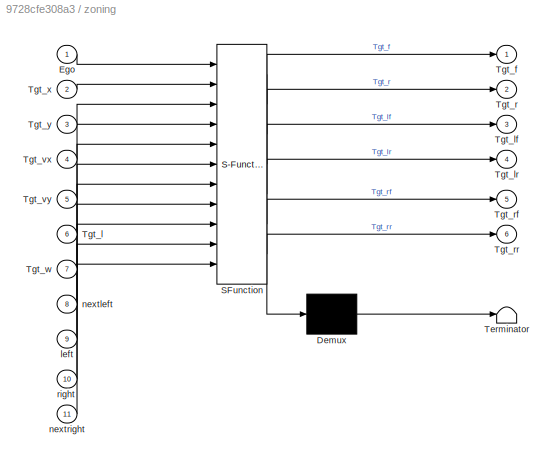
BLOCK [SubSystem] zoning
  ErrorFcn = Stateflow.Translate.translate
  PermitHierarchicalResolution = ExplicitOnly
  Ports = [11, 6]
  RequestExecContextInheritance = off
  SFBlockType = MATLAB Function
  TreatAsAtomicUnit = on
BLOCK [Demux] zoning/ Demux 
  Outputs = 1
  Ports = [1, 1]
BLOCK [S-Function] zoning/ SFunction 
  EnableBusSupport = on
  FunctionName = sf_sfun
  PortCounts = [11 7]
  Ports = [11, 7]
  SFcnIsStateOwnerBlock = off
  SFunctionDeploymentMode = off
  Tag = Stateflow S-Function 1
BLOCK [Terminator] zoning/ Terminator 
BLOCK [Inport] zoning/Ego
BLOCK [Outport] zoning/Tgt_f
BLOCK [Inport] zoning/Tgt_l
  Port = 6
BLOCK [Outport] zoning/Tgt_lf
  Port = 3
BLOCK [Outport] zoning/Tgt_lr
  Port = 4
BLOCK [Outport] zoning/Tgt_r
  Port = 2
BLOCK [Outport] zoning/Tgt_rf
  Port = 5
BLOCK [Outport] zoning/Tgt_rr
  Port = 6
BLOCK [Inport] zoning/Tgt_vx
  Port = 4
BLOCK [Inport] zoning/Tgt_vy
  Port = 5
BLOCK [Inport] zoning/Tgt_w
  Port = 7
BLOCK [Inport] zoning/Tgt_x
  Port = 2
BLOCK [Inport] zoning/Tgt_y
  Port = 3
BLOCK [Inport] zoning/left
  Port = 9
BLOCK [Inport] zoning/nextleft
  Port = 8
BLOCK [Inport] zoning/nextright
  Port = 11
BLOCK [Inport] zoning/right
  Port = 10
BLOCK [SubSystem] 使能信号生成
  Ports = [2, 1]
  RequestExecContextInheritance = off
BLOCK [Clock] 使能信号生成/Clock3
BLOCK [Clock] 使能信号生成/Clock4
BLOCK [Constant] 使能信号生成/Constant13
BLOCK [Constant] 使能信号生成/Constant14
  Value = 0
BLOCK [Memory] 使能信号生成/Memory2
BLOCK [Memory] 使能信号生成/Memory3
BLOCK [RelationalOperator] 使能信号生成/Relational Operator2
  InputSameDT = off
  Operator = >
  OutDataTypeStr = boolean
  Ports = [2, 1]
  RndMeth = Simplest
BLOCK [RelationalOperator] 使能信号生成/Relational Operator3
  InputSameDT = off
  Operator = <
  OutDataTypeStr = boolean
  Ports = [2, 1]
  RndMeth = Simplest
BLOCK [Scope] 使能信号生成/Scope
  Floating = off
  NumInputPorts = 1
  Ports = [1]
  ScopeSpecificationString = Simulink.scopes.TimeScopeBlockCfg('CurrentConfiguration', extmgr.ConfigurationSet(extmgr.Configuration('Core','General UI',true),extmgr.Configuration('Core','Source UI',true),extmgr.Configuration('Sources','WiredSimulink',true,'DataLoggingVariableName','ScopeData5'),extmgr.Configuration('Visuals','Time Domain',true,'SerializedDisplays',{struct('MinYLimReal','-0.03449','MaxYLimReal','1.06182','YLab...<+1427ch>
BLOCK [Scope] 使能信号生成/Scope1
  Floating = off
  NumInputPorts = 1
  Ports = [1]
  ScopeSpecificationString = Simulink.scopes.TimeScopeBlockCfg('CurrentConfiguration', extmgr.ConfigurationSet(extmgr.Configuration('Core','General UI',true),extmgr.Configuration('Core','Source UI',true),extmgr.Configuration('Sources','WiredSimulink',true,'DataLoggingVariableName','ScopeData6'),extmgr.Configuration('Visuals','Time Domain',true,'SerializedDisplays',{struct('MinYLimReal','-0.005','MaxYLimReal','0.045','YLabelRe...<+1367ch>
BLOCK [Scope] 使能信号生成/Scope2
  Floating = off
  NumInputPorts = 2
  Ports = [2]
  ScopeSpecificationString = Simulink.scopes.TimeScopeBlockCfg('CurrentConfiguration', extmgr.ConfigurationSet(extmgr.Configuration('Core','General UI',true),extmgr.Configuration('Core','Source UI',true),extmgr.Configuration('Sources','WiredSimulink',true,'DataLoggingVariableName','ScopeData7'),extmgr.Configuration('Visuals','Time Domain',true,'SerializedDisplays',{struct('MinYLimReal','-1.00000','MaxYLimReal','1.00000','YLab...<+1433ch>
BLOCK [Sum] 使能信号生成/Sum2
  Inputs = |+-
  Ports = [2, 1]
BLOCK [Switch] 使能信号生成/Switch3
  Criteria = u2 > Threshold
  InputSameDT = off
  SaturateOnIntegerOverflow = off
BLOCK [SubSystem] 使能信号生成/Triggered Subsystem4
  Ports = [1, 1, 0, 1]
  RequestExecContextInheritance = off
  TreatAsAtomicUnit = on
BLOCK [Inport] 使能信号生成/Triggered Subsystem4/In1
BLOCK [Outport] 使能信号生成/Triggered Subsystem4/Out1
BLOCK [TriggerPort] 使能信号生成/Triggered Subsystem4/Trigger
  Ports = []
  StatesWhenEnabling = held
  TriggerType = either
  VariantControl = (inherit)
BLOCK [SubSystem] 使能信号生成/Triggered Subsystem5
  Ports = [1, 1, 0, 1]
  RequestExecContextInheritance = off
  TreatAsAtomicUnit = on
BLOCK [Inport] 使能信号生成/Triggered Subsystem5/In1
BLOCK [Outport] 使能信号生成/Triggered Subsystem5/Out1
BLOCK [TriggerPort] 使能信号生成/Triggered Subsystem5/Trigger
  Ports = []
  StatesWhenEnabling = held
  VariantControl = (inherit)
BLOCK [Inport] 使能信号生成/cons
  Port = 2
BLOCK [Outport] 使能信号生成/enable
BLOCK [Inport] 使能信号生成/pros
ANNOTATION (root): Ego: [1 7]; [Ego_x Ego_y Ego_h Ego_vx Ego_vy Ego_ax Ego_ay] Tgt_xx: [1 20]; 输入速度单位m/s laneline: [1 6]; [identifier C3 C2 C1 C0 type] y = C3x^3 + C2x^2 + C1x +C0 identifier: -1(not exist) 0(Occlusion) 1(exist) type: 1实线，2虚线，3双实线，4左实右虚，5左虚右实，6路肩 speedsign: [1 4]; [x y vxmax vxmin = 60] respeedsign: [1 2]; [x y] 自车坐标系原点位于后轴中心，所以需要自车长宽及后轴中心到自车前轴的距离；他车坐标为矩形的几何中心 roadinfo:[type,ID,Num]； type:1 mainway, ...<+455ch>
ANNOTATION (root): 法规阈值
ANNOTATION (root): 自车几何参数
ANNOTATION (root): Rule1.1
ANNOTATION (root): Rule1.2.1
ANNOTATION (root): Rule1.2.2
ANNOTATION (root): Rule1.3
ANNOTATION (root): Rule1.4
ANNOTATION (root): Rule1.5
ANNOTATION (root): Rule44
ANNOTATION (root): Rule46.1
ANNOTATION (root): Rule46.2
ANNOTATION (root): Rule47.1
ANNOTATION (root): Rule47.2
ANNOTATION (root): Rule53.1
ANNOTATION (root): Rule53.2
ANNOTATION (root): Rule58.1
ANNOTATION (root): Rule58.2
ANNOTATION (root): Rule78
ANNOTATION (root): Rule79.1
ANNOTATION (root): Rule79.2
ANNOTATION (root): Rule79.3
ANNOTATION (root): Rule79.4
ANNOTATION (root): Rule80
ANNOTATION (root): Rule81
ANNOTATION (root): Rule82.1
ANNOTATION (root): Rule82.2
ANNOTATION (root): Rule82.3
ANNOTATION (root): Rule82.4
ANNOTATION (root): Rule82.6
ANNOTATION (root): Rule84
ANNOTATION (root): 信息输入及处理
ANNOTATION (root): 结果输出
ANNOTATION rule82_3: 待开发
LINE Compare To Constant10:1 -> Logical Operator3:1
LINE Compare To Constant11:1 -> Logical Operator3:3
LINE Compare To Constant1:1 -> Enabled Subsystem2:enable
LINE Compare To Constant2:1 -> Enabled Subsystem3:enable
LINE Compare To Constant3:1 -> Goto83:1
LINE Compare To Constant4:1 -> Goto89:1
LINE Compare To Constant5:1 -> rule79_5:enable
LINE Compare To Constant6:1 -> Logical Operator23:2
LINE Compare To Constant7:1 -> Triggered Subsystem2:trigger
NET Compare To Constant8:1 -> Logical Operator1:1, rule47_2_r:enable
LINE Compare To Constant9:1 -> Logical Operator1:2
LINE Compare To Constant:1 -> Logical Operator14:2
LINE Data Type Conversion10:1 -> Mux3:35
LINE Data Type Conversion11:1 -> Mux3:6
NET Data Type Conversion12:1 -> Goto31:1, rule46_1:enable
LINE Data Type Conversion13:1 -> Goto32:1
LINE Data Type Conversion14:1 -> Goto33:1
LINE Data Type Conversion1:1 -> Mux3:9
LINE Data Type Conversion2:1 -> Mux3:19
LINE Data Type Conversion3:1 -> Mux3:28
LINE Data Type Conversion4:1 -> Mux3:29
LINE Data Type Conversion5:1 -> Mux3:30
LINE Data Type Conversion6:1 -> Mux3:31
LINE Data Type Conversion7:1 -> Mux3:25
LINE Data Type Conversion8:1 -> Mux3:26
LINE Data Type Conversion9:1 -> Mux3:32
LINE Data Type Conversion:1 -> Mux3:7
LINE Ego:1 -> Goto:1
LINE Ego_fl1:1 -> Goto1:1
LINE Ego_l1:1 -> Goto16:1
LINE Ego_w1:1 -> Goto15:1
LINE Enabled Subsystem/Add:1 -> Enabled Subsystem/Min:1
LINE Enabled Subsystem/Clock3:1 -> Enabled Subsystem/Memory1:1
LINE Enabled Subsystem/Constant:1 -> Enabled Subsystem/Min:2
NET Enabled Subsystem/Memory1:1 -> Enabled Subsystem/Add:2, Enabled Subsystem/Triggered Subsystem2:1
LINE Enabled Subsystem/Memory:1 -> Enabled Subsystem/Triggered Subsystem2:trigger
LINE Enabled Subsystem/Min:1 -> Enabled Subsystem/Output:1
LINE Enabled Subsystem/Triggered Subsystem2/In1:1 -> Enabled Subsystem/Triggered Subsystem2/Output:1
LINE Enabled Subsystem/Triggered Subsystem2:1 -> Enabled Subsystem/Add:1
LINE Enabled Subsystem/y1:1 -> Enabled Subsystem/Memory:1
LINE Enabled Subsystem1/Add:1 -> Enabled Subsystem1/Min:1
LINE Enabled Subsystem1/Clock3:1 -> Enabled Subsystem1/Memory1:1
LINE Enabled Subsystem1/Constant:1 -> Enabled Subsystem1/Min:2
NET Enabled Subsystem1/Memory1:1 -> Enabled Subsystem1/Add:2, Enabled Subsystem1/Triggered Subsystem2:1
LINE Enabled Subsystem1/Memory:1 -> Enabled Subsystem1/Triggered Subsystem2:trigger
LINE Enabled Subsystem1/Min:1 -> Enabled Subsystem1/Output:1
LINE Enabled Subsystem1/Triggered Subsystem2/In1:1 -> Enabled Subsystem1/Triggered Subsystem2/Output:1
LINE Enabled Subsystem1/Triggered Subsystem2:1 -> Enabled Subsystem1/Add:1
LINE Enabled Subsystem1/y1:1 -> Enabled Subsystem1/Memory:1
LINE Enabled Subsystem1:1 -> rule47_1_r:2
LINE Enabled Subsystem2/MATLAB Function:1 -> Enabled Subsystem2/y:1
LINE Enabled Subsystem2/u:1 -> Enabled Subsystem2/MATLAB Function:1
LINE Enabled Subsystem2:1 -> Goto80:1
LINE Enabled Subsystem3/MATLAB Function:1 -> Enabled Subsystem3/y:1
LINE Enabled Subsystem3/u:1 -> Enabled Subsystem3/MATLAB Function:1
LINE Enabled Subsystem3:1 -> Goto81:1
LINE Enabled Subsystem4/Add1:1 -> Enabled Subsystem4/Relational Operator:2
LINE Enabled Subsystem4/Add:1 -> Enabled Subsystem4/Compare To Constant:1
LINE Enabled Subsystem4/Compare To Constant1:1 -> Enabled Subsystem4/Logical Operator:1
LINE Enabled Subsystem4/Compare To Constant:1 -> Enabled Subsystem4/Max:1
LINE Enabled Subsystem4/Constant:1 -> Enabled Subsystem4/Add1:1
LINE Enabled Subsystem4/Ego:1 -> Enabled Subsystem4/Selector1:1
LINE Enabled Subsystem4/Logical Operator1:1 -> Enabled Subsystem4/Logical Operator2:1
LINE Enabled Subsystem4/Logical Operator2:1 -> Enabled Subsystem4/Out2:1
LINE Enabled Subsystem4/Logical Operator:1 -> Enabled Subsystem4/Logical Operator1:1
NET Enabled Subsystem4/Max:1 -> Enabled Subsystem4/Logical Operator1:2, Enabled Subsystem4/Memory1:1
LINE Enabled Subsystem4/Memory1:1 -> Enabled Subsystem4/Max:2
LINE Enabled Subsystem4/Memory:1 -> Enabled Subsystem4/Add:1
LINE Enabled Subsystem4/Relational Operator:1 -> Enabled Subsystem4/Logical Operator:2
NET Enabled Subsystem4/Selector1:1 -> Enabled Subsystem4/Compare To Constant1:1, Enabled Subsystem4/Relational Operator:1
LINE Enabled Subsystem4/Selector2:1 -> Enabled Subsystem4/Add1:2
NET Enabled Subsystem4/Selector:1 -> Enabled Subsystem4/Add:2, Enabled Subsystem4/Memory:1
NET Enabled Subsystem4/Tgtf:1 -> Enabled Subsystem4/Selector2:1, Enabled Subsystem4/Selector:1
LINE Enabled Subsystem4:1 -> Goto94:1
LINE Enabled Subsystem:1 -> rule47_1_l:2
LINE Env:1 -> Goto30:1
LINE From100:1 -> Logical Operator9:2
LINE From101:1 -> Logical Operator10:1
LINE From102:1 -> Mux3:2
LINE From103:1 -> Mux3:3
LINE From104:1 -> rule82_1:enable
LINE From105:1 -> rule82_1:1
LINE From106:1 -> Logical Operator13:1
LINE From107:1 -> rule82_3:enable
LINE From108:1 -> rule82_2:1
LINE From109:1 -> MATLAB Function:1
LINE From10:1 -> T_rule78:1
LINE From110:1 -> rule82_2:2
LINE From111:1 -> T_rule79_5:1
LINE From112:1 -> rule82_4:enable
LINE From113:1 -> rule82_4:1
LINE From114:1 -> Compare To Constant:1
LINE From115:1 -> rule82_5:1
LINE From116:1 -> Mux:9
NET From117:1 -> MATLAB Function1:1, rule1_2_1:1
NET From118:1 -> MATLAB Function3:1, rule1_2_3:1
NET From119:1 -> MATLAB Function2:1, rule1_2_2:1
LINE From11:1 -> rule78:4
NET From120:1 -> MATLAB Function4:1, rule1_2_4:1
NET From121:1 -> MATLAB Function1:2, rule1_2_1:2
NET From122:1 -> MATLAB Function1:3, rule1_2_1:3
LINE From123:1 -> rule1_2_5:1
NET From124:1 -> MATLAB Function2:2, rule1_2_2:2
NET From125:1 -> MATLAB Function2:3, rule1_2_2:3
LINE From126:1 -> Logical Operator21:1
NET From127:1 -> MATLAB Function3:2, rule1_2_3:2
NET From128:1 -> MATLAB Function3:3, rule1_2_3:3
NET From129:1 -> MATLAB Function4:2, rule1_2_4:2
LINE From12:1 -> rule80:1
NET From130:1 -> MATLAB Function4:3, rule1_2_4:3
LINE From131:1 -> rule1_2_6:1
LINE From132:1 -> Logical Operator22:1
LINE From133:1 -> rule1_2_5:2
LINE From134:1 -> rule1_2_5:3
LINE From135:1 -> rule1_2_6:2
LINE From136:1 -> rule1_2_6:3
LINE From137:1 -> Logical Operator19:1
LINE From138:1 -> rule1_2_7:1
LINE From139:1 -> Logical Operator20:1
LINE From13:1 -> rule_dis:2
LINE From140:1 -> rule1_2_8:1
LINE From141:1 -> Subsystem2:1
LINE From142:1 -> Subsystem2:2
LINE From143:1 -> Mux:6
LINE From144:1 -> Subsystem2:3
LINE From145:1 -> Enabled Subsystem2:1
LINE From146:1 -> Enabled Subsystem3:1
LINE From147:1 -> Compare To Constant2:1
LINE From148:1 -> Selector2:1
LINE From149:1 -> Mux:7
LINE From14:1 -> Compare To Constant8:1
LINE From150:1 -> Selector4:1
LINE From151:1 -> Selector3:1
LINE From152:1 -> Logical Operator15:2
LINE From153:1 -> rule1_2_5:4
LINE From154:1 -> rule1_2_7:2
LINE From155:1 -> rule1_2_8:2
LINE From156:1 -> Logical Operator19:2
LINE From157:1 -> Logical Operator16:2
LINE From158:1 -> Logical Operator20:2
LINE From159:1 -> rule1_2_6:4
LINE From15:1 -> Logical Operator1:3
LINE From160:1 -> rule1_2_7:3
LINE From161:1 -> rule1_2_7:4
LINE From162:1 -> rule1_2_8:3
LINE From163:1 -> rule1_2_8:4
LINE From164:1 -> rule79_5:1
LINE From165:1 -> rule79_5:2
LINE From166:1 -> Mux:8
LINE From167:1 -> Logical Operator17:2
LINE From168:1 -> Logical Operator21:2
LINE From169:1 -> Logical Operator18:2
LINE From16:1 -> Subsystem:2
LINE From170:1 -> Logical Operator22:2
LINE From171:1 -> rule1_1:1
LINE From172:1 -> T_rule1_1:1
LINE From173:1 -> T_rule1_1:2
LINE From174:1 -> T_rule1_1:3
LINE From175:1 -> T_rule1_1:4
LINE From176:1 -> rule1_1:2
LINE From177:1 -> Logical Operator23:1
LINE From178:1 -> Selector5:1
LINE From179:1 -> Enabled Subsystem4:2
LINE From17:1 -> zoning:8
LINE From180:1 -> Enabled Subsystem4:1
LINE From181:1 -> Compare To Constant7:1
LINE From182:1 -> rule47_2_r:2
LINE From183:1 -> rule47_2_r:3
LINE From184:1 -> rule47_2_r:4
LINE From185:1 -> rule_47_2_2:1
LINE From186:1 -> rule_47_2_2:2
LINE From187:1 -> rule_47_2_2:3
LINE From188:1 -> rule_47_2_2:4
LINE From189:1 -> rule_47_2_2:5
LINE From18:1 -> zoning:9
LINE From190:1 -> Mux3:1
LINE From191:1 -> rule_dis:3
LINE From192:1 -> Mux3:4
LINE From193:1 -> Mux3:5
LINE From194:1 -> Data Type Conversion:1
LINE From195:1 -> Mux3:8
LINE From196:1 -> Data Type Conversion1:1
LINE From197:1 -> Mux3:10
LINE From198:1 -> Mux3:11
LINE From199:1 -> rule_dis:1
LINE From19:1 -> Mux:2
LINE From1:1 -> MATLAB Function6:2
LINE From200:1 -> Mux3:12
LINE From201:1 -> Mux3:13
LINE From202:1 -> Mux3:14
LINE From203:1 -> Mux3:15
LINE From205:1 -> Mux3:16
LINE From206:1 -> Mux3:17
LINE From20:1 -> zoning:10
LINE From212:1 -> Mux3:18
LINE From213:1 -> Data Type Conversion2:1
LINE From214:1 -> Mux3:20
LINE From215:1 -> Mux3:21
LINE From216:1 -> Mux3:22
LINE From217:1 -> Mux3:23
LINE From218:1 -> Mux3:24
LINE From219:1 -> Mux3:27
LINE From21:1 -> zoning:11
LINE From220:1 -> Logical Operator24:1
LINE From221:1 -> Logical Operator24:2
LINE From222:1 -> Logical Operator25:1
LINE From223:1 -> Logical Operator25:2
LINE From224:1 -> Logical Operator26:1
LINE From225:1 -> Logical Operator26:2
LINE From226:1 -> Logical Operator27:1
LINE From227:1 -> Logical Operator27:2
LINE From228:1 -> Data Type Conversion9:1
LINE From229:1 -> Mux3:33
LINE From22:1 -> Logical Operator:1
LINE From230:1 -> Mux3:34
LINE From231:1 -> Data Type Conversion10:1
LINE From232:1 -> Data Type Conversion7:1
LINE From233:1 -> Data Type Conversion8:1
LINE From234:1 -> MATLAB Function6:6
LINE From235:1 -> Max:2
LINE From236:1 -> Max:3
LINE From237:1 -> MATLAB Function6:1
LINE From23:1 -> Subsystem:1
LINE From24:1 -> T_rule46_1:1
LINE From25:1 -> rule78:1
LINE From26:1 -> rule78:2
LINE From27:1 -> rule78:3
LINE From28:1 -> Mux:3
LINE From29:1 -> Mux:1
LINE From2:1 -> MATLAB Function6:3
LINE From30:1 -> rule46_1:1
LINE From31:1 -> Mux1:1
LINE From32:1 -> Mux1:2
LINE From33:1 -> Mux1:3
LINE From34:1 -> Compare To Constant11:1
LINE From35:1 -> T_rule46_2:1
LINE From36:1 -> rule46_2:1
LINE From37:1 -> rule47_1_l:enable
LINE From38:1 -> T_overlapline:2
LINE From39:1 -> rule47_1_r:enable
LINE From3:1 -> Data Type Conversion11:1
LINE From40:1 -> T_overlapline:3
NET From41:1 -> Selector1:1, Selector:1
LINE From42:1 -> Mux:4
LINE From43:1 -> rule47_1_l:1
LINE From44:1 -> rule47_1_r:1
LINE From45:1 -> T_overlapline:1
LINE From46:1 -> Timing module:2
LINE From47:1 -> Compare To Constant10:1
NET From48:1 -> Logical Operator4:1, Scope4:1
LINE From49:1 -> rule1_43:1
LINE From4:1 -> zoning:1
LINE From50:1 -> rule1_43:2
LINE From51:1 -> Compare To Constant1:1
LINE From52:1 -> T_rule53_1:3
LINE From53:1 -> rule1_43:3
LINE From54:1 -> rule1_43:4
LINE From55:1 -> rule47_2_r:1
LINE From56:1 -> T_rule53_1:4
LINE From57:1 -> T_rule53_1:1
LINE From58:1 -> T_rule53_1:2
LINE From59:1 -> rule53_1:1
LINE From5:1 -> Max:1
LINE From60:1 -> T_rule58_1:1
LINE From61:1 -> rule58_1:1
LINE From62:1 -> T_rule79_3:1
LINE From63:1 -> rule58_2:1
LINE From64:1 -> T_rule58_2:1
LINE From65:1 -> T_rule58_2:2
LINE From66:1 -> T_rule58_2:3
LINE From67:1 -> T_rule79_3:2
LINE From68:1 -> rule79_3:1
LINE From69:1 -> T_rule79_1:1
LINE From6:1 -> Compare To Constant9:1
LINE From70:1 -> T_rule79_1:2
LINE From71:1 -> rule79_1:1
LINE From72:1 -> T_rule79_2:1
LINE From73:1 -> T_rule79_2:2
LINE From74:1 -> T_rule79_4:1
LINE From75:1 -> Logical Operator2:1
LINE From76:1 -> Logical Operator2:2
LINE From77:1 -> rule79_2:1
LINE From78:1 -> rule79_4:1
LINE From79:1 -> Mux:5
LINE From7:1 -> MATLAB Function6:4
LINE From80:1 -> rule79_4:2
NET From81:1 -> Logical Operator6:1, Logical Operator9:1
LINE From82:1 -> Logical Operator6:2
LINE From83:1 -> Logical Operator7:2
LINE From84:1 -> rule81_3:1
LINE From85:1 -> rule81_1:1
LINE From86:1 -> rule81_2:1
LINE From87:1 -> rule81_4:1
LINE From88:1 -> Logical Operator10:2
LINE From89:1 -> rule81_5:1
LINE From8:1 -> MATLAB Function6:5
LINE From90:1 -> Logical Operator11:2
LINE From91:1 -> Logical Operator11:1
LINE From92:1 -> Logical Operator12:2
LINE From93:1 -> Logical Operator12:1
LINE From94:1 -> rule_dis:4
LINE From95:1 -> rule_dis:enable
NET From96:1 -> MATLAB Function7:2, Scope:1
LINE From97:1 -> MATLAB Function7:1
LINE From98:1 -> Logical Operator7:1
LINE From99:1 -> Logical Operator8:1
LINE From9:1 -> isexistTgt_f:1
LINE From:1 -> Selector6:1
LINE Logical Operator10:1 -> rule81_5:enable
LINE Logical Operator11:1 -> rule81_6:enable
LINE Logical Operator12:1 -> rule81_7:enable
LINE Logical Operator13:1 -> rule82_2:enable
LINE Logical Operator14:1 -> rule82_5:enable
LINE Logical Operator15:1 -> rule1_2_5:enable
LINE Logical Operator16:1 -> rule1_2_6:enable
LINE Logical Operator17:1 -> rule1_2_7:enable
LINE Logical Operator18:1 -> rule1_2_8:enable
LINE Logical Operator19:1 -> Logical Operator15:1
LINE Logical Operator1:1 -> rule1_43:enable
LINE Logical Operator20:1 -> Logical Operator16:1
LINE Logical Operator21:1 -> Logical Operator17:1
LINE Logical Operator22:1 -> Logical Operator18:1
LINE Logical Operator23:1 -> Enabled Subsystem4:enable
LINE Logical Operator24:1 -> Data Type Conversion3:1
LINE Logical Operator25:1 -> Data Type Conversion4:1
LINE Logical Operator26:1 -> Data Type Conversion5:1
LINE Logical Operator27:1 -> Data Type Conversion6:1
NET Logical Operator2:1 -> Logical Operator5:2, 使能信号生成:2
NET Logical Operator3:1 -> Scope2:1, rule_47_2_2:enable
LINE Logical Operator4:1 -> Logical Operator3:2
LINE Logical Operator5:1 -> 使能信号生成:1
LINE Logical Operator6:1 -> Logical Operator8:2
NET Logical Operator7:1 -> rule81_1:enable, rule81_3:enable
LINE Logical Operator8:1 -> rule81_2:enable
LINE Logical Operator9:1 -> rule81_4:enable
NET Logical Operator:1 -> Goto101:1, rule80:enable
NET MATLAB Function1:1 -> Goto85:1, rule1_2_1:enable
NET MATLAB Function2:1 -> Goto86:1, rule1_2_2:enable
NET MATLAB Function3:1 -> Goto87:1, rule1_2_3:enable
NET MATLAB Function4:1 -> Goto88:1, rule1_2_4:enable
LINE MATLAB Function5:1 -> Goto95:1
NET MATLAB Function6:1 -> Goto100:1, cs:1
LINE MATLAB Function7:1 -> Goto64:1
LINE MATLAB Function:1 -> Logical Operator13:2
NET Max:1 -> Goto62:1, cd:1
LINE Memory:1 -> Goto48:1
LINE Mux1:1 -> Goto21:1
LINE Mux2:1 -> Goto26:1
LINE Mux3:1 -> result:1
LINE Mux:1 -> Goto20:1
NET Selector1:1 -> Enabled Subsystem1:1, Enabled Subsystem1:enable
LINE Selector2:1 -> Compare To Constant3:1
LINE Selector3:1 -> Compare To Constant4:1
LINE Selector4:1 -> Compare To Constant5:1
LINE Selector5:1 -> Compare To Constant6:1
NET Selector6:1 -> MATLAB Function5:2, Triggered Subsystem2:1
NET Selector:1 -> Enabled Subsystem:1, Enabled Subsystem:enable
LINE SpecSec:1 -> Goto82:1
LINE Subsystem/Compare To Constant1:1 -> Subsystem/Logical Operator1:1
LINE Subsystem/Compare To Constant2:1 -> Subsystem/Logical Operator1:2
LINE Subsystem/Compare To Constant3:1 -> Subsystem/Logical Operator2:1
LINE Subsystem/Compare To Constant4:1 -> Subsystem/Logical Operator2:2
LINE Subsystem/Compare To Constant5:1 -> Subsystem/Logical Operator3:1
LINE Subsystem/Compare To Constant6:1 -> Subsystem/Logical Operator3:2
LINE Subsystem/Compare To Constant7:1 -> Subsystem/Logical Operator4:1
LINE Subsystem/Compare To Constant8:1 -> Subsystem/Logical Operator4:2
LINE Subsystem/Ego:1 -> Subsystem/Selector:1
LINE Subsystem/From1:1 -> Subsystem/Mux:2
LINE Subsystem/From2:1 -> Subsystem/Mux:3
LINE Subsystem/From3:1 -> Subsystem/Mux:4
LINE Subsystem/From:1 -> Subsystem/Mux:1
NET Subsystem/Logical Operator1:1 -> Subsystem/Goto:1, Subsystem/L1:1
NET Subsystem/Logical Operator2:1 -> Subsystem/Goto1:1, Subsystem/L2:1
NET Subsystem/Logical Operator3:1 -> Subsystem/Goto2:1, Subsystem/R1:1
NET Subsystem/Logical Operator4:1 -> Subsystem/Goto3:1, Subsystem/R2:1
LINE Subsystem/Mux:1 -> Subsystem/Goto4:1
NET Subsystem/Selector:1 -> Subsystem/Compare To Constant2:1, Subsystem/Compare To Constant4:1, Subsystem/Compare To Constant6:1, Subsystem/Compare To Constant8:1
NET Subsystem/Toverlap:1 -> Subsystem/Compare To Constant1:1, Subsystem/Compare To Constant3:1, Subsystem/Compare To Constant5:1, Subsystem/Compare To Constant7:1
LINE Subsystem2/Add1:1 -> Subsystem2/MATLAB Function6:2
NET Subsystem2/Clock1:1 -> Subsystem2/Enabled Subsystem1:1, Subsystem2/MATLAB Function4:2, Subsystem2/Triggered Subsystem1:2
LINE Subsystem2/Clock:1 -> Subsystem2/MATLAB Function3:2
LINE Subsystem2/Compare To Constant2:1 -> Subsystem2/Triggered Subsystem1:trigger
LINE Subsystem2/Compare To Constant3:1 -> Subsystem2/Enabled Subsystem1:enable
LINE Subsystem2/Enabled Subsystem1/Selector1:1 -> Subsystem2/Enabled Subsystem1/t2_laneid:1
LINE Subsystem2/Enabled Subsystem1/roadinfo:1 -> Subsystem2/Enabled Subsystem1/Selector1:1
LINE Subsystem2/Enabled Subsystem1/t2_out:1 -> Subsystem2/Enabled Subsystem1/t2:1
LINE Subsystem2/Enabled Subsystem1:1 -> Subsystem2/Add1:2
LINE Subsystem2/Enabled Subsystem1:2 -> Subsystem2/Relational Operator1:2
LINE Subsystem2/In1:1 -> Subsystem2/Sign:1
LINE Subsystem2/MATLAB Function1:1 -> Subsystem2/MATLAB Function3:3
LINE Subsystem2/MATLAB Function3:1 -> Subsystem2/Output:1
NET Subsystem2/MATLAB Function4:1 -> Subsystem2/Compare To Constant2:1, Subsystem2/Triggered Subsystem1:1
LINE Subsystem2/MATLAB Function4:2 -> Subsystem2/Triggered Subsystem1:3
NET Subsystem2/MATLAB Function5:1 -> Subsystem2/Compare To Constant3:1, Subsystem2/MATLAB Function4:3
LINE Subsystem2/MATLAB Function6:1 -> Subsystem2/Logical Operator1:1
LINE Subsystem2/Memory1:1 -> Subsystem2/MATLAB Function5:2
LINE Subsystem2/Memory:1 -> Subsystem2/MATLAB Function1:2
LINE Subsystem2/Relational Operator1:1 -> Subsystem2/Logical Operator1:2
NET Subsystem2/Sign1:1 -> Subsystem2/MATLAB Function5:1, Subsystem2/Memory1:1
NET Subsystem2/Sign:1 -> Subsystem2/MATLAB Function1:1, Subsystem2/Memory:1
LINE Subsystem2/Triggered Subsystem1/laneinfo:1 -> Subsystem2/Triggered Subsystem1/t1_lanid:1
LINE Subsystem2/Triggered Subsystem1/t1_out:1 -> Subsystem2/Triggered Subsystem1/t1:1
LINE Subsystem2/Triggered Subsystem1/t_now:1 -> Subsystem2/Triggered Subsystem1/t3:1
LINE Subsystem2/Triggered Subsystem1:1 -> Subsystem2/Terminator1:1
LINE Subsystem2/Triggered Subsystem1:2 -> Subsystem2/Add1:1
LINE Subsystem2/Triggered Subsystem1:3 -> Subsystem2/Relational Operator1:1
LINE Subsystem2/param:1 -> Subsystem2/MATLAB Function3:4
LINE Subsystem2/roadinfo:1 -> Subsystem2/MATLAB Function3:1
LINE Subsystem2:1 -> Goto79:1
LINE Subsystem:1 -> rule44:1
LINE Subsystem:2 -> rule44:2
LINE Subsystem:3 -> rule44:3
LINE Subsystem:4 -> rule44:4
LINE TTCx:1 -> Goto19:1
NET T_overlapline:1 -> Goto44:1, Timing module:1
LINE T_rule1_1:1 -> rule1_1:enable
LINE T_rule46_1:1 -> Data Type Conversion12:1
LINE T_rule46_1:2 -> Data Type Conversion13:1
LINE T_rule46_1:3 -> Data Type Conversion14:1
LINE T_rule46_2:1 -> rule46_2:enable
NET T_rule53_1:1 -> Goto93:1, rule53_1:enable
LINE T_rule58_1:1 -> rule58_1:enable
LINE T_rule58_2:1 -> rule58_2:enable
NET T_rule78:1 -> Goto28:1, rule78:enable
LINE T_rule79_1:1 -> rule79_1:enable
LINE T_rule79_2:1 -> Logical Operator5:1
LINE T_rule79_3:1 -> rule79_3:enable
LINE T_rule79_4:1 -> rule79_4:enable
LINE T_rule79_5:1 -> Logical Operator14:1
LINE Tgt_l:1 -> zoning:6
NET Tgt_vx:1 -> Goto29:1, zoning:4
LINE Tgt_vy:1 -> zoning:5
LINE Tgt_w:1 -> zoning:7
NET Tgt_x:1 -> Goto17:1, zoning:2
LINE Tgt_y:1 -> zoning:3
LINE Timing module/Add:1 -> Timing module/Relational Operator:2
NET Timing module/Clock3:1 -> Timing module/Add:2, Timing module/Triggered Subsystem1:2, Timing module/Triggered Subsystem2:1
LINE Timing module/Compare To Constant1:1 -> Timing module/Logical Operator2:1
LINE Timing module/Constant1:1 -> Timing module/Switch:3
LINE Timing module/Constant:1 -> Timing module/Switch:1
LINE Timing module/Logical Operator2:1 -> Timing module/Switch:2
NET Timing module/Memory3:1 -> Timing module/Compare To Constant1:1, Timing module/Triggered Subsystem1:trigger, Timing module/Triggered Subsystem2:trigger
LINE Timing module/Relational Operator:1 -> Timing module/Logical Operator2:2
LINE Timing module/Switch:1 -> Timing module/Out2:1
LINE Timing module/Triggered Subsystem1/Add:1 -> Timing module/Triggered Subsystem1/Out1:1
LINE Timing module/Triggered Subsystem1/In1:1 -> Timing module/Triggered Subsystem1/Add:1
LINE Timing module/Triggered Subsystem1/In2:1 -> Timing module/Triggered Subsystem1/Add:2
LINE Timing module/Triggered Subsystem1:1 -> Timing module/Scope:1
LINE Timing module/Triggered Subsystem2/In1:1 -> Timing module/Triggered Subsystem2/Out1:1
NET Timing module/Triggered Subsystem2:1 -> Timing module/Add:1, Timing module/Triggered Subsystem1:1
LINE Timing module/tcl_max:1 -> Timing module/Relational Operator:1
LINE Timing module/y1:1 -> Timing module/Memory3:1
LINE Timing module:1 -> Goto43:1
LINE Triggered Subsystem2/lane_Ego:1 -> Triggered Subsystem2/initial:1
LINE Triggered Subsystem2:1 -> MATLAB Function5:1
LINE cl_gap:1 -> Goto78:1
LINE cons_vx:1 -> Goto91:1
LINE dclmin:1 -> Goto102:1
LINE decision:1 -> Memory:1
LINE declane_vx:1 -> Goto52:1
LINE isexistTgt_f:1 -> Logical Operator:2
LINE latdis_p:1 -> Goto84:1
LINE left:1 -> Goto7:1
LINE light:1 -> Goto37:1
LINE light_cl:1 -> Goto38:1
LINE nan:1 -> Goto18:1
LINE nextleft:1 -> Goto6:1
LINE nextright:1 -> Goto10:1
LINE respeedsign:1 -> Goto13:1
LINE right:1 -> Goto8:1
LINE roadinfo:1 -> Goto27:1
LINE rule1_1/Ego:1 -> rule1_1/speed consistent:1
LINE rule1_1/Tgtf:1 -> rule1_1/speed consistent:2
LINE rule1_1/speed consistent:1 -> rule1_1/y:1
LINE rule1_1:1 -> Goto92:1
LINE rule1_2_1/Ego:1 -> rule1_2_1/LatDis:3
LINE rule1_2_1/LatDis:1 -> rule1_2_1/y:1
LINE rule1_2_1/Tgtlf:1 -> rule1_2_1/LatDis:1
LINE rule1_2_1/param:1 -> rule1_2_1/LatDis:2
LINE rule1_2_1:1 -> Goto70:1
LINE rule1_2_2/Ego:1 -> rule1_2_2/LatDis:3
LINE rule1_2_2/LatDis:1 -> rule1_2_2/y:1
LINE rule1_2_2/Tgtrf:1 -> rule1_2_2/LatDis:1
LINE rule1_2_2/param:1 -> rule1_2_2/LatDis:2
LINE rule1_2_2:1 -> Goto71:1
LINE rule1_2_3/Ego:1 -> rule1_2_3/LatDis:3
LINE rule1_2_3/LatDis:1 -> rule1_2_3/y:1
LINE rule1_2_3/Tgtlr:1 -> rule1_2_3/LatDis:1
LINE rule1_2_3/param:1 -> rule1_2_3/LatDis:2
LINE rule1_2_3:1 -> Goto72:1
LINE rule1_2_4/Ego:1 -> rule1_2_4/LatDis:3
LINE rule1_2_4/LatDis:1 -> rule1_2_4/y:1
LINE rule1_2_4/Tgtrr:1 -> rule1_2_4/LatDis:1
LINE rule1_2_4/param:1 -> rule1_2_4/LatDis:2
LINE rule1_2_4:1 -> Goto73:1
LINE rule1_2_5/Ego:1 -> rule1_2_5/LatDis:3
LINE rule1_2_5/LatDis:1 -> rule1_2_5/y:1
LINE rule1_2_5/Tgtlf:1 -> rule1_2_5/LatDis:1
LINE rule1_2_5/param:1 -> rule1_2_5/LatDis:2
LINE rule1_2_5/threshold:1 -> rule1_2_5/LatDis:4
LINE rule1_2_5:1 -> Goto74:1
LINE rule1_2_6/Ego:1 -> rule1_2_6/LatDis:3
LINE rule1_2_6/LatDis:1 -> rule1_2_6/y:1
LINE rule1_2_6/Tgtrf:1 -> rule1_2_6/LatDis:1
LINE rule1_2_6/Threshold:1 -> rule1_2_6/LatDis:4
LINE rule1_2_6/param:1 -> rule1_2_6/LatDis:2
LINE rule1_2_6:1 -> Goto75:1
LINE rule1_2_7/Ego:1 -> rule1_2_7/LatDis:3
LINE rule1_2_7/LatDis:1 -> rule1_2_7/y:1
LINE rule1_2_7/Tgtlr:1 -> rule1_2_7/LatDis:1
LINE rule1_2_7/param:1 -> rule1_2_7/LatDis:2
LINE rule1_2_7/threshold:1 -> rule1_2_7/LatDis:4
LINE rule1_2_7:1 -> Goto76:1
LINE rule1_2_8/Ego:1 -> rule1_2_8/LatDis:3
LINE rule1_2_8/LatDis:1 -> rule1_2_8/y:1
LINE rule1_2_8/Tgtrr:1 -> rule1_2_8/LatDis:1
LINE rule1_2_8/param:1 -> rule1_2_8/LatDis:2
LINE rule1_2_8/threshold:1 -> rule1_2_8/LatDis:4
LINE rule1_2_8:1 -> Goto77:1
LINE rule1_43/Logical Operator:1 -> rule1_43/frontot:1
LINE rule1_43/MATLAB Function1:1 -> rule1_43/Logical Operator:2
LINE rule1_43/MATLAB Function2:1 -> rule1_43/specsecot:1
LINE rule1_43/MATLAB Function:1 -> rule1_43/Logical Operator:1
LINE rule1_43/Tgtf:1 -> rule1_43/MATLAB Function:1
LINE rule1_43/Tgtlf:1 -> rule1_43/MATLAB Function1:1
NET rule1_43/left:1 -> rule1_43/MATLAB Function1:2, rule1_43/MATLAB Function:2
LINE rule1_43/specsec:1 -> rule1_43/MATLAB Function2:1
LINE rule1_43:1 -> Goto96:1
LINE rule1_43:2 -> Goto97:1
LINE rule44/Add1:1 -> rule44/MATLAB Function1:1
LINE rule44/Add2:1 -> rule44/MATLAB Function2:1
LINE rule44/Add3:1 -> rule44/MATLAB Function3:1
LINE rule44/Add:1 -> rule44/MATLAB Function:1
LINE rule44/Constant1:1 -> rule44/Switch1:1
LINE rule44/Constant2:1 -> rule44/Switch1:3
LINE rule44/Constant4:1 -> rule44/Switch7:1
LINE rule44/Constant5:1 -> rule44/Switch7:3
LINE rule44/Enable1:1 -> rule44/change_left2:enable
LINE rule44/Enable2:1 -> rule44/change_right1:enable
LINE rule44/Enable3:1 -> rule44/change_right2:enable
LINE rule44/Enable:1 -> rule44/change_left1:enable
LINE rule44/From10:1 -> rule44/change_right1:4
LINE rule44/From11:1 -> rule44/change_right1:2
LINE rule44/From12:1 -> rule44/Add3:2
LINE rule44/From1:1 -> rule44/Add:1
LINE rule44/From2:1 -> rule44/Add1:1
LINE rule44/From30:1 -> rule44/change_right1:6
LINE rule44/From35:1 -> rule44/change_right1:1
LINE rule44/From36:1 -> rule44/change_right1:5
LINE rule44/From37:1 -> rule44/change_left1:4
LINE rule44/From38:1 -> rule44/change_left1:2
LINE rule44/From39:1 -> rule44/change_left1:6
LINE rule44/From3:1 -> rule44/Add:2
LINE rule44/From40:1 -> rule44/change_left1:1
LINE rule44/From41:1 -> rule44/change_left1:5
LINE rule44/From42:1 -> rule44/change_left1:3
LINE rule44/From43:1 -> rule44/change_left2:3
LINE rule44/From44:1 -> rule44/change_left2:5
LINE rule44/From45:1 -> rule44/change_left2:1
LINE rule44/From46:1 -> rule44/change_left2:4
LINE rule44/From47:1 -> rule44/change_left2:2
LINE rule44/From49:1 -> rule44/change_right2:3
LINE rule44/From4:1 -> rule44/Add1:2
LINE rule44/From51:1 -> rule44/change_right2:5
LINE rule44/From52:1 -> rule44/change_right2:1
LINE rule44/From53:1 -> rule44/change_right2:4
LINE rule44/From54:1 -> rule44/change_right2:2
LINE rule44/From5:1 -> rule44/Switch1:2
LINE rule44/From6:1 -> rule44/Add2:1
LINE rule44/From7:1 -> rule44/Add3:1
LINE rule44/From8:1 -> rule44/change_right1:3
LINE rule44/From9:1 -> rule44/Add2:2
LINE rule44/From:1 -> rule44/Switch7:2
LINE rule44/MATLAB Function1:1 -> rule44/cr_rr:1
LINE rule44/MATLAB Function2:1 -> rule44/cl_lf:1
LINE rule44/MATLAB Function3:1 -> rule44/cl_lr:1
LINE rule44/MATLAB Function:1 -> rule44/cr_rf:1
LINE rule44/Switch1:1 -> rule44/cl_f:1
LINE rule44/Switch7:1 -> rule44/cr_f:1
LINE rule44/change_left1/Ego:1 -> rule44/change_left1/L1:1
LINE rule44/change_left1/L1:1 -> rule44/change_left1/Output:1
LINE rule44/change_left1/L1:2 -> rule44/change_left1/Output1:1
LINE rule44/change_left1/L1:3 -> rule44/change_left1/Output2:1
LINE rule44/change_left1/Tgtf:1 -> rule44/change_left1/L1:2
LINE rule44/change_left1/Tgtlf:1 -> rule44/change_left1/L1:3
LINE rule44/change_left1/Tgtlr:1 -> rule44/change_left1/L1:4
LINE rule44/change_left1/param:1 -> rule44/change_left1/L1:5
LINE rule44/change_left1/threshold:1 -> rule44/change_left1/L1:6
LINE rule44/change_left1:1 -> rule44/Goto29:1
LINE rule44/change_left1:2 -> rule44/Goto30:1
LINE rule44/change_left1:3 -> rule44/Goto31:1
LINE rule44/change_left2/Ego:1 -> rule44/change_left2/beforerchangelane:3
LINE rule44/change_left2/Tgtf:1 -> rule44/change_left2/beforerchangelane:1
LINE rule44/change_left2/Tgtr:1 -> rule44/change_left2/beforerchangelane:2
LINE rule44/change_left2/beforerchangelane:1 -> rule44/change_left2/Output1:1
LINE rule44/change_left2/beforerchangelane:2 -> rule44/change_left2/Output2:1
LINE rule44/change_left2/param:1 -> rule44/change_left2/beforerchangelane:4
LINE rule44/change_left2/threshold:1 -> rule44/change_left2/beforerchangelane:5
LINE rule44/change_left2:1 -> rule44/Goto32:1
LINE rule44/change_left2:2 -> rule44/Goto33:1
LINE rule44/change_right1/Ego:1 -> rule44/change_right1/beforerchangelane:1
LINE rule44/change_right1/Tgtf:1 -> rule44/change_right1/beforerchangelane:2
LINE rule44/change_right1/Tgtrf:1 -> rule44/change_right1/beforerchangelane:3
LINE rule44/change_right1/Tgtrr:1 -> rule44/change_right1/beforerchangelane:4
LINE rule44/change_right1/beforerchangelane:1 -> rule44/change_right1/Output:1
LINE rule44/change_right1/beforerchangelane:2 -> rule44/change_right1/Output1:1
LINE rule44/change_right1/beforerchangelane:3 -> rule44/change_right1/Output2:1
LINE rule44/change_right1/param:1 -> rule44/change_right1/beforerchangelane:5
LINE rule44/change_right1/threshold:1 -> rule44/change_right1/beforerchangelane:6
LINE rule44/change_right1:1 -> rule44/Goto26:1
LINE rule44/change_right1:2 -> rule44/Goto27:1
LINE rule44/change_right1:3 -> rule44/Goto28:1
LINE rule44/change_right2/Ego:1 -> rule44/change_right2/beforerchangelane:3
LINE rule44/change_right2/Tgtf:1 -> rule44/change_right2/beforerchangelane:1
LINE rule44/change_right2/Tgtr:1 -> rule44/change_right2/beforerchangelane:2
LINE rule44/change_right2/beforerchangelane:1 -> rule44/change_right2/Output1:1
LINE rule44/change_right2/beforerchangelane:2 -> rule44/change_right2/Output2:1
LINE rule44/change_right2/param:1 -> rule44/change_right2/beforerchangelane:4
LINE rule44/change_right2/threshold:1 -> rule44/change_right2/beforerchangelane:5
LINE rule44/change_right2:1 -> rule44/Goto36:1
LINE rule44/change_right2:2 -> rule44/Goto37:1
LINE rule44:1 -> Mux2:1
LINE rule44:2 -> Mux2:2
LINE rule44:3 -> Mux2:3
LINE rule44:4 -> Mux2:4
LINE rule44:5 -> Mux2:5
LINE rule44:6 -> Mux2:6
LINE rule46_1/Ego:1 -> rule46_1/Speedmonitor:1
LINE rule46_1/Speedmonitor:1 -> rule46_1/y1:1
LINE rule46_1/Speedmonitor:2 -> rule46_1/cs:1
LINE rule46_1:1 -> Goto34:1
LINE rule46_1:2 -> Goto36:1
LINE rule46_2/Ego:1 -> rule46_2/Speedmonitor:1
LINE rule46_2/Speedmonitor:1 -> rule46_2/y1:1
LINE rule46_2/Speedmonitor:2 -> rule46_2/cs:1
LINE rule46_2:1 -> Goto40:1
LINE rule46_2:2 -> Goto41:1
LINE rule47_1_l/Speedmonitor:1 -> rule47_1_l/y1:1
LINE rule47_1_l/light:1 -> rule47_1_l/Speedmonitor:2
LINE rule47_1_l/threshold:1 -> rule47_1_l/Speedmonitor:1
LINE rule47_1_l:1 -> Goto39:1
LINE rule47_1_r/Speedmonitor:1 -> rule47_1_r/y1:1
LINE rule47_1_r/light:1 -> rule47_1_r/Speedmonitor:2
LINE rule47_1_r/threshold:1 -> rule47_1_r/Speedmonitor:1
LINE rule47_1_r:1 -> Goto42:1
LINE rule47_2_r/Compare To Constant10:1 -> rule47_2_r/Logical Operator2:2
LINE rule47_2_r/Compare To Constant6:1 -> rule47_2_r/Logical Operator:2
LINE rule47_2_r/Compare To Constant8:1 -> rule47_2_r/Logical Operator1:2
LINE rule47_2_r/Logical Operator1:1 -> rule47_2_r/Logical Operator7:2
LINE rule47_2_r/Logical Operator2:1 -> rule47_2_r/Logical Operator7:3
LINE rule47_2_r/Logical Operator3:1 -> rule47_2_r/Logical Operator1:1
LINE rule47_2_r/Logical Operator7:1 -> rule47_2_r/Out1:1
LINE rule47_2_r/Logical Operator:1 -> rule47_2_r/Logical Operator7:1
LINE rule47_2_r/Tol:1 -> rule47_2_r/Logical Operator3:1
NET rule47_2_r/laneot:1 -> rule47_2_r/Compare To Constant10:1, rule47_2_r/Compare To Constant6:1, rule47_2_r/Compare To Constant8:1
LINE rule47_2_r/left1:1 -> rule47_2_r/Logical Operator2:1
LINE rule47_2_r/right1:1 -> rule47_2_r/Logical Operator:1
LINE rule47_2_r:1 -> Goto98:1
LINE rule53_1/Constant1:1 -> rule53_1/Switch:3
LINE rule53_1/Constant:1 -> rule53_1/Switch:1
LINE rule53_1/In1:1 -> rule53_1/Switch:2
LINE rule53_1/Switch:1 -> rule53_1/Output:1
LINE rule53_1:1 -> Goto45:1
LINE rule58_1/light usage:1 -> rule58_1/y:1
LINE rule58_1/light:1 -> rule58_1/light usage:1
LINE rule58_1:1 -> Goto46:1
LINE rule58_2/light usage:1 -> rule58_2/y:1
LINE rule58_2/light:1 -> rule58_2/light usage:1
LINE rule58_2:1 -> Goto47:1
LINE rule78/AreaDetermine/Add1:1 -> rule78/AreaDetermine/Switch2:2
NET rule78/AreaDetermine/Clock:1 -> rule78/AreaDetermine/Triggered Subsystem4:1, rule78/AreaDetermine/Triggered Subsystem5:1
LINE rule78/AreaDetermine/Constant2:1 -> rule78/AreaDetermine/Switch2:3
LINE rule78/AreaDetermine/Constant:1 -> rule78/AreaDetermine/Switch2:1
LINE rule78/AreaDetermine/Enter:1 -> rule78/AreaDetermine/Memory1:1
LINE rule78/AreaDetermine/Memory1:1 -> rule78/AreaDetermine/Triggered Subsystem4:trigger
LINE rule78/AreaDetermine/Memory:1 -> rule78/AreaDetermine/Triggered Subsystem5:trigger
LINE rule78/AreaDetermine/Switch2:1 -> rule78/AreaDetermine/spdsign_section:1
LINE rule78/AreaDetermine/Triggered Subsystem4/In1:1 -> rule78/AreaDetermine/Triggered Subsystem4/Out1:1
LINE rule78/AreaDetermine/Triggered Subsystem4:1 -> rule78/AreaDetermine/Add1:1
LINE rule78/AreaDetermine/Triggered Subsystem5/In1:1 -> rule78/AreaDetermine/Triggered Subsystem5/Out1:1
LINE rule78/AreaDetermine/Triggered Subsystem5:1 -> rule78/AreaDetermine/Add1:2
LINE rule78/AreaDetermine/clear:1 -> rule78/AreaDetermine/Memory:1
LINE rule78/AreaDetermine:1 -> rule78/Speedmonitor:4
NET rule78/Ego:1 -> rule78/Speedmonitor:1, rule78/Speedsigncalculate:1
LINE rule78/Speedmonitor:1 -> rule78/y1:1
LINE rule78/Speedmonitor:2 -> rule78/y2:1
LINE rule78/Speedmonitor:3 -> rule78/AreaDetermine:2
LINE rule78/Speedsigncalculate:1 -> rule78/AreaDetermine:1
LINE rule78/respeedsign:1 -> rule78/Speedmonitor:3
LINE rule78/roadinfo:1 -> rule78/Speedmonitor:5
NET rule78/speedsign:1 -> rule78/Speedmonitor:2, rule78/Speedsigncalculate:2
LINE rule78:1 -> Goto3:1
LINE rule78:2 -> Goto9:1
LINE rule79_1/light usage:1 -> rule79_1/y:1
LINE rule79_1/light:1 -> rule79_1/light usage:1
LINE rule79_1:1 -> Goto50:1
LINE rule79_2/Selector:1 -> rule79_2/y:1
LINE rule79_2/rule44:1 -> rule79_2/Selector:1
LINE rule79_2:1 -> Goto51:1
LINE rule79_3/light usage:1 -> rule79_3/y:1
LINE rule79_3/light:1 -> rule79_3/light usage:1
LINE rule79_3:1 -> Goto49:1
LINE rule79_4/Ego:1 -> rule79_4/MATLAB Function:1
LINE rule79_4/MATLAB Function:1 -> rule79_4/y:1
LINE rule79_4/threshold:1 -> rule79_4/MATLAB Function:2
LINE rule79_4:1 -> Goto53:1
LINE rule79_5/Ego:1 -> rule79_5/MATLAB Function:1
LINE rule79_5/MATLAB Function:1 -> rule79_5/y:1
LINE rule79_5/threshold:1 -> rule79_5/MATLAB Function:2
LINE rule79_5:1 -> Goto90:1
LINE rule80/Ego:1 -> rule80/FollowingDistance:1
LINE rule80/FollowingDistance:1 -> rule80/CD:1
LINE rule80:1 -> Goto12:1
LINE rule81_1/light usage:1 -> rule81_1/y:1
LINE rule81_1/light:1 -> rule81_1/light usage:1
LINE rule81_1:1 -> Goto56:1
LINE rule81_2/light usage:1 -> rule81_2/y:1
LINE rule81_2/light:1 -> rule81_2/light usage:1
LINE rule81_2:1 -> Goto54:1
LINE rule81_3/Ego:1 -> rule81_3/Speedmonitor:1
LINE rule81_3/Speedmonitor:1 -> rule81_3/y1:1
LINE rule81_3/Speedmonitor:2 -> rule81_3/cs:1
LINE rule81_3:1 -> Goto55:1
LINE rule81_3:2 -> Goto57:1
LINE rule81_4/Ego:1 -> rule81_4/Speedmonitor:1
LINE rule81_4/Speedmonitor:1 -> rule81_4/y1:1
LINE rule81_4/Speedmonitor:2 -> rule81_4/cs:1
LINE rule81_4:1 -> Goto58:1
LINE rule81_4:2 -> Goto59:1
LINE rule81_5/Ego:1 -> rule81_5/Speedmonitor:1
LINE rule81_5/Speedmonitor:1 -> rule81_5/y1:1
LINE rule81_5/Speedmonitor:2 -> rule81_5/cs:1
LINE rule81_5:1 -> Goto60:1
LINE rule81_5:2 -> Goto61:1
LINE rule81_6/Constant:1 -> rule81_6/CD:1
LINE rule81_6:1 -> Goto63:1
LINE rule81_7/Constant:1 -> rule81_7/CD:1
LINE rule81_7:1 -> Goto65:1
LINE rule82_1/Ego:1 -> rule82_1/Speedmonitor:1
LINE rule82_1/Speedmonitor:1 -> rule82_1/y1:1
LINE rule82_1:1 -> Goto66:1
LINE rule82_2/Compare To Constant:1 -> rule82_2/Logical Operator:1
LINE rule82_2/Logical Operator:1 -> rule82_2/y1:1
LINE rule82_2/decision:1 -> rule82_2/Compare To Constant:1
LINE rule82_2/left1:1 -> rule82_2/Logical Operator:2
LINE rule82_2:1 -> Goto67:1
LINE rule82_3/Constant:1 -> rule82_3/y1:1
LINE rule82_3:1 -> Goto5:1
LINE rule82_4/Ego:1 -> rule82_4/Speedmonitor:1
LINE rule82_4/Speedmonitor:1 -> rule82_4/y1:1
LINE rule82_4:1 -> Goto69:1
LINE rule82_5/Constant1:1 -> rule82_5/Switch:3
LINE rule82_5/Constant:1 -> rule82_5/Switch:1
LINE rule82_5/Switch:1 -> rule82_5/y1:1
LINE rule82_5/overlap:1 -> rule82_5/Switch:2
LINE rule82_5:1 -> Goto68:1
NET rule_47_2_2/Ego:1 -> rule_47_2_2/MATLAB Function1:2, rule_47_2_2/MATLAB Function:2
LINE rule_47_2_2/Logical Operator:1 -> rule_47_2_2/Out1:1
LINE rule_47_2_2/MATLAB Function1:1 -> rule_47_2_2/Logical Operator:2
LINE rule_47_2_2/MATLAB Function:1 -> rule_47_2_2/Logical Operator:1
LINE rule_47_2_2/T1_2_2:1 -> rule_47_2_2/MATLAB Function:1
LINE rule_47_2_2/Tgtrf:1 -> rule_47_2_2/MATLAB Function:3
LINE rule_47_2_2/Tgtrr:1 -> rule_47_2_2/MATLAB Function1:3
LINE rule_47_2_2/t1_2_4:1 -> rule_47_2_2/MATLAB Function1:1
LINE rule_47_2_2:1 -> Goto99:1
LINE rule_dis/Ego:1 -> rule_dis/FollowingDistance:1
LINE rule_dis/Ego_fl:1 -> rule_dis/FollowingDistance:3
LINE rule_dis/FollowingDistance:1 -> rule_dis/y:1
LINE rule_dis/Tgt_f:1 -> rule_dis/FollowingDistance:2
LINE rule_dis/ycd:1 -> rule_dis/FollowingDistance:4
LINE rule_dis:1 -> Goto4:1
LINE speedsign:1 -> Goto11:1
LINE tcl_max:1 -> Goto14:1
LINE zoning:1 -> Goto2:1
LINE zoning:2 -> Goto35:1
LINE zoning:3 -> Goto22:1
LINE zoning:4 -> Goto23:1
LINE zoning:5 -> Goto24:1
LINE zoning:6 -> Goto25:1
LINE 使能信号生成/Clock3:1 -> 使能信号生成/Triggered Subsystem4:1
LINE 使能信号生成/Clock4:1 -> 使能信号生成/Triggered Subsystem5:1
LINE 使能信号生成/Constant13:1 -> 使能信号生成/Switch3:1
LINE 使能信号生成/Constant14:1 -> 使能信号生成/Switch3:3
LINE 使能信号生成/Memory2:1 -> 使能信号生成/Relational Operator2:2
LINE 使能信号生成/Memory3:1 -> 使能信号生成/Relational Operator3:2
NET 使能信号生成/Relational Operator2:1 -> 使能信号生成/Scope:1, 使能信号生成/Triggered Subsystem4:trigger
NET 使能信号生成/Relational Operator3:1 -> 使能信号生成/Scope2:1, 使能信号生成/Triggered Subsystem5:trigger
LINE 使能信号生成/Sum2:1 -> 使能信号生成/Switch3:2
LINE 使能信号生成/Switch3:1 -> 使能信号生成/enable:1
LINE 使能信号生成/Triggered Subsystem4/In1:1 -> 使能信号生成/Triggered Subsystem4/Out1:1
NET 使能信号生成/Triggered Subsystem4:1 -> 使能信号生成/Scope1:1, 使能信号生成/Sum2:1
LINE 使能信号生成/Triggered Subsystem5/In1:1 -> 使能信号生成/Triggered Subsystem5/Out1:1
NET 使能信号生成/Triggered Subsystem5:1 -> 使能信号生成/Scope2:2, 使能信号生成/Sum2:2
NET 使能信号生成/cons:1 -> 使能信号生成/Memory3:1, 使能信号生成/Relational Operator3:1
NET 使能信号生成/pros:1 -> 使能信号生成/Memory2:1, 使能信号生成/Relational Operator2:1
LINE 使能信号生成:1 -> rule79_2:enable
note: NET lines group one-source signal fan-out (src -> all destinations, sorted); 1:1 wires keep LINE
CHART rule80/FollowingDistance states=1 transitions=1
  STATE_LABEL 'eML_blk_kernel()'
  STATE_LABEL 'SCRIPT:\nfunction CD = fcn(Ego)\n%参数需求\nEgovx = Ego(4);                   %自车纵向速度(m/s)\n\nif Egovx >= 100/3.6\n    CD = 100;\nelse\n    CD = 50;\nend\n\n\n'
CHART rule44/MATLAB Function states=1 transitions=1
  STATE_LABEL 'eML_blk_kernel()'
  STATE_LABEL 'SCRIPT:\nfunction y = fcn(u)\n\nif u == 0\n    y = 0;\nelseif u == 1\n    y = 44.22;\nelseif u == 2\n    y = 44.23;\nelseif u == 3\n    y = 44.24;\nelse\n    y = 0;\nend\n'
CHART rule44/MATLAB Function1 states=1 transitions=1
  STATE_LABEL 'eML_blk_kernel()'
  STATE_LABEL 'SCRIPT:\nfunction y = fcn(u)\n\nif u == 0\n    y = 0;\nelseif u == 1\n    y = 44.25;\nelseif u == 2\n    y = 44.26;\nelseif u == 3\n    y = 44.27;\nelse\n    y = 0;\nend\n'
CHART rule44/MATLAB Function2 states=1 transitions=1
  STATE_LABEL 'eML_blk_kernel()'
  STATE_LABEL 'SCRIPT:\nfunction y = fcn(u)\n\nif u == 0\n    y = 0;\nelseif u == 1\n    y = 44.12;\nelseif u == 2\n    y = 44.13;\nelseif u == 3\n    y = 44.14;\nelse\n    y = 0;\nend\n'
CHART T_rule78 states=1 transitions=1
  STATE_LABEL 'eML_blk_kernel()'
  STATE_LABEL 'SCRIPT:\nfunction y = fcn(roadinfo)\nif roadinfo(1)==1\n    y = 1;\nelse\n    y = 0;\nend\n'
CHART rule78/Speedsigncalculate states=1 transitions=1
  STATE_LABEL 'eML_blk_kernel()'
  STATE_LABEL 'SCRIPT:\nfunction Enter_spdlimit_section = fcn(Ego,speedsign)\n%%\n\n%参数需求\ns_speedsign = speedsign(1);         %限速标志位置(m)(感知范围内无标志则输入为2000）\nEgox = Ego(1);\n%高速主路限速条件判断\nif s_speedsign < Egox       %限速标志检测，只用于判断是否进入限速标志管理区域\n    Enter_spdlimit_section = 1;\nelse\n    Enter_spdlimit_section = 0;\nend\n'
CHART rule78/Speedmonitor states=1 transitions=1
  STATE_LABEL 'eML_blk_kernel()'
  STATE_LABEL 'SCRIPT:\nfunction [y,cs,clear] = fcn(Ego,speedsign,respeedsign,spdsign_section,roadinfo)\n%%\n\n%参数需求\nEgo_x = Ego(1);\nEgo_vx = Ego(4);\nvxmax_speedsign = speedsign(3);     %限速标志限制的速度上限(km/h)\nvxmin_speedsign = speedsign(4);     %限速标志限制的速度下限(km/h)（无则输入为60）\ns_releasespdsign = respeedsign(1);  %解除限速标志位置(m)(无则输入为0）\nroadid = roadinfo(2);\nroadnum = roadinfo(3);\n\n%高速主路限速触发条件判断\nif spdsign_section == 1       %自车...<+902ch>'
CHART rule44/MATLAB Function3 states=1 transitions=1
  STATE_LABEL 'eML_blk_kernel()'
  STATE_LABEL 'SCRIPT:\nfunction y = fcn(u)\n\nif u == 0\n    y = 0;\nelseif u == 1\n    y = 44.15;\nelseif u == 2\n    y = 44.16;\nelseif u == 3\n    y = 44.17;\nelse\n    y = 0;\nend\n'
CHART T_rule46_1 states=1 transitions=1
  STATE_LABEL 'eML_blk_kernel()'
  STATE_LABEL 'SCRIPT:\nfunction [y1,y2,y3] = fcn(env)\nif env(1)<50\n    y1 = true;\n    y2 = false;\n    y3 = false;\nelseif env(1)<100\n    y1 = false;\n    y2 = true;\n    y3 = false;\nelseif env(1)<200\n    y1 = false;\n    y2 = false;\n    y3 = true;\nelse\n    y1 = false;\n    y2 = false;\n    y3 = false;\nend\n'
CHART rule46_1/Speedmonitor states=1 transitions=1
  STATE_LABEL 'eML_blk_kernel()'
  STATE_LABEL 'SCRIPT:\nfunction [y,cs] = fcn(Ego)\n%%\n\n%参数需求\nEgo_vx = Ego(4);\n\n\nif Ego_vx <= 30/3.6\n    y = 0;\nelse\n    y = 1;\nend\ncs = [0 30];'
CHART T_rule46_2 states=1 transitions=1
  STATE_LABEL 'eML_blk_kernel()'
  STATE_LABEL 'SCRIPT:\nfunction y = fcn(env)\nif env(2)==1\n    y = 1;\nelse\n    y = 0;\nend\n'
CHART rule46_2/Speedmonitor states=1 transitions=1
  STATE_LABEL 'eML_blk_kernel()'
  STATE_LABEL 'SCRIPT:\nfunction [y,cs] = fcn(Ego)\n%%\n\n%参数需求\nEgo_vx = Ego(4);\n\n\nif Ego_vx <= 30/3.6\n    y = 0;\nelse\n    y = 1;\nend\ncs = [0 30];'
CHART rule44/change_right1/beforerchangelane states=1 transitions=1
  STATE_LABEL 'eML_blk_kernel()'
  STATE_LABEL 'SCRIPT:\nfunction [y1,y2,y3] = fcn(Ego,Tgt_f,Tgt_rf,Tgt_rr,param,Threshold)\n%%\n\n%参数需求\n\nTgtx_rr = Tgt_rr(1);             \nTgty_rr = Tgt_rr(2);              \nTgtvx_rr = Tgt_rr(3);\nTgtl_rr = Tgt_rr(5);\nEgox = Ego(1);\nEgovx = Ego(4);\nEgol = param(1);\nEgo_fl = param(3);\nTgtx_f = Tgt_f(1);              \nTgty_f = Tgt_f(2);\nTgtvx_f = Tgt_f(3);\nTgtl_f = Tgt_f(5);\nTgtx_rf = Tgt_rf(1);              \nTgty_rf =...<+965ch>'
CHART rule47_1_l/Speedmonitor states=1 transitions=1
  STATE_LABEL 'eML_blk_kernel()'
  STATE_LABEL 'SCRIPT:\nfunction y = fcn(threshold,light)\n%%\nt_cl = threshold(4);\n\nif light >= t_cl\n    y = 0;\nelse\n    y = 1;\nend'
CHART rule47_1_r/Speedmonitor states=1 transitions=1
  STATE_LABEL 'eML_blk_kernel()'
  STATE_LABEL 'SCRIPT:\nfunction y = fcn(threshold,light)\n%%\nt_cl = threshold(4);\n\nif light >= t_cl\n    y = 0;\nelse\n    y = 1;\nend'
CHART rule1_43/MATLAB Function states=1 transitions=1
  STATE_LABEL 'eML_blk_kernel()'
  STATE_LABEL 'SCRIPT:\nfunction y = fcn(Tgtf,left)\n\nTgtfx = Tgtf(1);\nTgtfy = Tgtf(2);\nTgtfvy = Tgtf(4);\nTgtfw = Tgtf(6);\n\nyTgt_l = Tgtfy + 0.5 * Tgtfw;\nyTgt_r = Tgtfy - 0.5 * Tgtfw;\n\nY_leftline_Ego = polyval(left(2:end-1),Tgtfx);\n\nif Y_leftline_Ego<yTgt_l && Y_leftline_Ego>yTgt_r\n    y1 = 1;\nelse\n    y1 = 0;\nend\n\nif Tgtfvy > 0.2\n    y2 = 1;\nelse\n    y2 = 0;\nend\n\nif y1==1 && y2 ==1\n    y = 1;\nelse\n    y = 0;\nend\n...<+1ch>'
CHART T_overlapline states=1 transitions=1
  STATE_LABEL 'eML_blk_kernel()'
  STATE_LABEL 'SCRIPT:\nfunction y = fcn(param,left,right)\n\nEgo_l = param(1);\nEgo_w = param(2);\nEgo_fl = param(3);\n\nyEgo_lf = 0.5 * Ego_w;\nyEgo_rf = -0.5 * Ego_w;\nyEgo_lr = 0.5 * Ego_w;\nyEgo_rr = -0.5 * Ego_w;\n\nY_leftline_Egof = polyval(left(2:end-1),Ego_fl);\nY_leftline_Egor = polyval(left(2:end-1),Ego_fl - Ego_l);\nY_rightline_Egof = polyval(right(2:end-1),Ego_fl);\nY_rightline_Egor = polyval(right(2:end-1),Ego_fl...<+307ch>'
CHART rule1_43/MATLAB Function1 states=1 transitions=1
  STATE_LABEL 'eML_blk_kernel()'
  STATE_LABEL 'SCRIPT:\nfunction y = fcn(Tgtlf,left)\n\nTgtlfx = Tgtlf(1);\nTgtlfy = Tgtlf(2);\nTgtlfvy = Tgtlf(4);\nTgtlfw = Tgtlf(6);\n\nyTgt_l = Tgtlfy + 0.5 * Tgtlfw;\nyTgt_r = Tgtlfy - 0.5 * Tgtlfw;\n\nY_leftline_Ego = polyval(left(2:end-1),Tgtlfx);\n\nif Y_leftline_Ego<yTgt_l && Y_leftline_Ego>yTgt_r\n    y1 = 1;\nelse\n    y1 = 0;\nend\n\nif Tgtlfvy > 0.2\n    y2 = 1;\nelse\n    y2 = 0;\nend\n\nif y1==1 && y2 ==1\n    y = 1;\nelse\n...<+16ch>'
CHART rule_47_2_2/MATLAB Function states=1 transitions=1
  STATE_LABEL 'eML_blk_kernel()'
  STATE_LABEL 'SCRIPT:\nfunction y = fcn(t122,Ego,Tgtrf)\n\nif t122 == 0\n    y = 0;\nelse\n    if Ego(4) - Tgtrf(3) > 15/3.6\n        y = 0;\n    else\n        y = 1;\n    end\nend\n'
CHART rule_47_2_2/MATLAB Function1 states=1 transitions=1
  STATE_LABEL 'eML_blk_kernel()'
  STATE_LABEL 'SCRIPT:\nfunction y = fcn(t124,Ego,Tgtrr)\n\nif t124 == 0\n    y = 0;\nelse\n    if Ego(4) - Tgtrr(3) > 15/3.6\n        y = 0;\n    else\n        y = 1;\n    end\nend\n'
CHART rule1_43/MATLAB Function2 states=1 transitions=1
  STATE_LABEL 'eML_blk_kernel()'
  STATE_LABEL 'SCRIPT:\nfunction y = fcn(specsec)\n\nif specsec(1)==1 || specsec(2)==1\n    y = 1;\nelse\n    y = 0;\nend\n'
CHART rule79_3/light usage states=1 transitions=1
  STATE_LABEL 'eML_blk_kernel()'
  STATE_LABEL 'SCRIPT:\nfunction y = fcn(light)\n\n\nif light(2)==1\n    y = 0;\nelse\n    y = 1;\nend'
CHART MATLAB Function6 states=1 transitions=1
  STATE_LABEL 'eML_blk_kernel()'
  STATE_LABEL 'SCRIPT:\nfunction ycs = fcn(cs1,cs2,cs3,cs4,cs5,cs6)\n\ncs_1 = [cs1(1),cs2(1),cs3(1),cs4(1),cs5(1),cs6(1)];\ncs_2 = [cs1(2),cs2(2),cs3(2),cs4(2),cs5(2),cs6(2)];\ncsup = min(cs_2);\n\nflag = cs_1 < csup;\ncslow = max(cs_1(flag));\n\nycs = [cslow csup];'
CHART rule80/FollowingDistance1 states=1 transitions=1
  STATE_LABEL 'eML_blk_kernel()'
  STATE_LABEL 'SCRIPT:\nfunction [y,Dis,CD] = fcn(Ego,Tgt_f, Ego_fl)\n%参数需求\nTgtx_f = Tgt_f(1);              %超车目标纵坐标(m)\nTgtl_f = Tgt_f(5);\nEgox = Ego(1);                    %自车纵坐标（）\nEgovx = Ego(4);                   %自车纵向速度(m/s)\n\nif Egovx >= 100/3.6\n    if Tgtx_f-Egox-Ego_fl-0.5*Tgtl_f >100\n        y = 0;\n    else\n        y = 1;\n    end\n    CD = 100;\nelse\n    if Tgtx_f-Egox-Ego_fl-0.5*Tgtl_f >50\n        y = 0;\n   ...<+84ch>'
CHART zoning states=1 transitions=1
  STATE_LABEL 'eML_blk_kernel()'
  STATE_LABEL 'SCRIPT:\nfunction [Tgt_f,Tgt_r,Tgt_lf,Tgt_lr,Tgt_rf,Tgt_rr] = fcn(Ego,Tgt_x,Tgt_y,Tgt_vx,Tgt_vy,Tgt_l,Tgt_w,nextleft,left,right,nextright)\n\nEgo_x = Ego(1);\n%若他车不存在，则输入全为0\n\n%车道线宽度\nw_lane = polyval(left(2:end-1),0) - polyval(right(2:end-1),0);\n\n%方位分割\nFlag = abs(Tgt_x) > 0.1 | abs(Tgt_y) > 0.1;  %剔除不存在车辆\nFlag1 = Tgt_x > Ego_x;      %他车位于自车之前\nFlag2 = Tgt_x <= Ego_x;     %他车位于自车之后\n\nif nextleft(1) == -1 ...<+3608ch>'
CHART rule_dis/FollowingDistance states=1 transitions=1
  STATE_LABEL 'eML_blk_kernel()'
  STATE_LABEL 'SCRIPT:\nfunction y = fcn(Ego,Tgt_f, Ego_fl, ycd)\n%参数需求\nTgtx_f = Tgt_f(1);              \nTgtl_f = Tgt_f(5);\nEgox = Ego(1);                    \n\nif Tgtx_f-Egox-Ego_fl-0.5*Tgtl_f > ycd\n    y = 0;\nelse\n    y = 1;\nend\n\n'
CHART MATLAB Function7 states=1 transitions=1
  STATE_LABEL 'eML_blk_kernel()'
  STATE_LABEL 'SCRIPT:\nfunction y = fcn(Ego, ycs)\n\nEgovx = Ego(4);\n\nif Egovx >= ycs(1)/3.6 && Egovx <= ycs(2)/3.6\n    y = 0;\nelse\n    y = 1;\nend\n'
CHART Subsystem2/MATLAB Function3 states=1 transitions=1
  STATE_LABEL 'eML_blk_kernel()'
  STATE_LABEL 'SCRIPT:\nfunction y   = get_time(roadinfo, t, u, throshold)\n\nlaneid = roadinfo(2);\ncl_gap = throshold(6);\npersistent last_start_time last_start_id last_end_time last_end_id start_time start_id end_time end_id;\n\nif isempty(last_start_time) || isempty(last_start_id) || isempty(last_end_time) || isempty(last_end_id) ...\n    || isempty(start_time) || isempty(start_id) || isempty(end_time) || isempty(en...<+601ch>'
CHART Subsystem2/MATLAB Function4 states=1 transitions=1
  STATE_LABEL 'eML_blk_kernel()'
  STATE_LABEL 'SCRIPT:\nfunction [t1_out,l1_out]  = get_time(roadinfo,t, u)\n\nlaneid = roadinfo(2);\npersistent t1 l1;\n\nif isempty(t1) || isempty(l1)\n    t1 = -20;\n    l1 = 0;\nend\n\nif u > 0  % 上升沿\n    t1_out = t1;\n    l1_out = l1;\n    t1 = t;\n    l1 = laneid;\nelse\n    t1_out = 0;\n    l1_out = 0;\nend\n\nend\n'
CHART Subsystem2/MATLAB Function5 states=1 transitions=1
  STATE_LABEL 'eML_blk_kernel()'
  STATE_LABEL 'SCRIPT:\nfunction y = fcn(u1,u1delay)\n\nif u1 > u1delay % 上升沿，开始换道\n    y = 1;\nelseif u1 < u1delay % 下降沿，结束换道\n    y = -1;\nelse\n    y = 0;\nend\n'
CHART T_rule53_1 states=1 transitions=1
  STATE_LABEL 'eML_blk_kernel()'
  STATE_LABEL 'SCRIPT:\nfunction y = fcn(Ego,Tgt_f,Tgtx,Tgtvx)\n\n%参数需求\nEgovx = Ego(4);\nTgtx_f = Tgt_f(1);              \n\nflag = Tgtx~=0;\naveragevx = (sum(Tgtvx(flag))+Egovx)/(length(Tgtvx(flag))+1);\n\n%与前车的安全距离判断\nif Tgtx_f ~= 2000 && averagevx < 50/3.6\n    y = 1;   \nelse\n    y = 0;\nend\n\n\n\n'
CHART T_rule58_1 states=1 transitions=1
  STATE_LABEL 'eML_blk_kernel()'
  STATE_LABEL 'SCRIPT:\nfunction y = fcn(env)\nif env(3)==1 || env(1)<200\n    y = 1;\nelse\n    y = 0;\nend\n'
CHART rule58_1/light usage states=1 transitions=1
  STATE_LABEL 'eML_blk_kernel()'
  STATE_LABEL 'SCRIPT:\nfunction y = fcn(light)\n\n\nif any(~light(6:8))\n    y = 1;\nelse\n    y = 0;\nend'
CHART T_rule79_3 states=1 transitions=1
  STATE_LABEL 'eML_blk_kernel()'
  STATE_LABEL 'SCRIPT:\nfunction y = fcn(roadinfo,dec)\nif roadinfo(1)==1 && roadinfo(2)==roadinfo(3) && dec==2\n    y = 1;\nelse\n    y = 0;\nend\n'
CHART rule58_2/light usage states=1 transitions=1
  STATE_LABEL 'eML_blk_kernel()'
  STATE_LABEL 'SCRIPT:\nfunction y = fcn(light)\n\n\nif light(4)==1\n    y = 1;\nelse\n    y = 0;\nend'
CHART T_rule58_2 states=1 transitions=1
  STATE_LABEL 'eML_blk_kernel()'
  STATE_LABEL 'SCRIPT:\nfunction y = fcn(Ego,Tgt_f,param)\n%%\n\n%参数需求\n\nEgox = Ego(1);\nEgo_fl = param(3);\nTgtx_f = Tgt_f(1);              \nTgtl_f = Tgt_f(5);\n\n%与前车的安全距离判断\nif Tgtx_f ~= 2000 && Tgtx_f-Egox-0.5*Tgtl_f-Ego_fl < 50\n    y = 1;   \nelse\n    y = 0;\nend\n\n\n\n'
CHART T_rule79_4 states=1 transitions=1
  STATE_LABEL 'eML_blk_kernel()'
  STATE_LABEL 'SCRIPT:\nfunction y = fcn(roadinfo)\nif roadinfo(1)==4\n    y = 1;\nelse\n    y = 0;\nend\n'
CHART T_rule79_1 states=1 transitions=1
  STATE_LABEL 'eML_blk_kernel()'
  STATE_LABEL 'SCRIPT:\nfunction y = fcn(roadinfo,dec)\nif roadinfo(1)==3 && dec==1\n    y = 1;\nelse\n    y = 0;\nend\n'
CHART rule79_1/light usage states=1 transitions=1
  STATE_LABEL 'eML_blk_kernel()'
  STATE_LABEL 'SCRIPT:\nfunction y = fcn(light)\n\n\nif light(1)==1\n    y = 0;\nelse\n    y = 1;\nend'
CHART T_rule79_2 states=1 transitions=1
  STATE_LABEL 'eML_blk_kernel()'
  STATE_LABEL 'SCRIPT:\nfunction y = fcn(roadinfo,dec)\nif roadinfo(1)==3 && dec==1\n    y = 1;\nelse\n    y = 0;\nend\n'
CHART rule79_4/MATLAB Function states=1 transitions=1
  STATE_LABEL 'eML_blk_kernel()'
  STATE_LABEL 'SCRIPT:\nfunction y = fcn(Ego,threshold)\n\nEgovx = Ego(4);\nEgoax = Ego(6);\nramp_tgtvx = threshold(5);\n\nif Egovx < ramp_tgtvx/3.6 || Egoax < (ramp_tgtvx/3.6-Egovx)/5\n    y = 0;\nelse\n    y = 1;\nend\n'
CHART rule81_3/Speedmonitor states=1 transitions=1
  STATE_LABEL 'eML_blk_kernel()'
  STATE_LABEL 'SCRIPT:\nfunction [y,cs] = fcn(Ego)\n%%\n\n%参数需求\nEgo_vx = Ego(4);\n\n\nif Ego_vx <= 60/3.6\n    y = 0;\nelse\n    y = 1;\nend\ncs = [0 60];'
CHART rule81_1/light usage states=1 transitions=1
  STATE_LABEL 'eML_blk_kernel()'
  STATE_LABEL 'SCRIPT:\nfunction y = fcn(light)\n\nif any(~light([3,5:8]))\n    y = 1;\nelse\n    y = 0;\nend'
CHART rule81_2/light usage states=1 transitions=1
  STATE_LABEL 'eML_blk_kernel()'
  STATE_LABEL 'SCRIPT:\nfunction y = fcn(light)\n\nif any(~light([3,5:9]))\n    y = 1;\nelse\n    y = 0;\nend'
CHART rule81_4/Speedmonitor states=1 transitions=1
  STATE_LABEL 'eML_blk_kernel()'
  STATE_LABEL 'SCRIPT:\nfunction [y,cs] = fcn(Ego)\n%%\n\n%参数需求\nEgo_vx = Ego(4);\n\n\nif Ego_vx <= 40/3.6\n    y = 0;\nelse\n    y = 1;\nend\ncs = [0 40];'
CHART rule81_5/Speedmonitor states=1 transitions=1
  STATE_LABEL 'eML_blk_kernel()'
  STATE_LABEL 'SCRIPT:\nfunction [y,cs] = fcn(Ego)\n%%\n\n%参数需求\nEgo_vx = Ego(4);\n\n\nif Ego_vx <= 20/3.6\n    y = 0;\nelse\n    y = 1;\nend\ncs = [0 20];'
CHART Subsystem2/MATLAB Function6 states=1 transitions=1
  STATE_LABEL 'eML_blk_kernel()'
  STATE_LABEL 'SCRIPT:\nfunction y = fcn(throshold,t_gap)\n\ncl_gap = throshold(6);\n\nif t_gap > cl_gap || t_gap < 0\n    y = 0;\nelse\n    y = 1;\nend\n'
CHART rule82_1/Speedmonitor states=1 transitions=1
  STATE_LABEL 'eML_blk_kernel()'
  STATE_LABEL 'SCRIPT:\nfunction y = fcn(Ego)\n%%\n\n%参数需求\nEgo_vx = Ego(4);\n\n\nif Ego_vx < 0\n    y = 1;\nelse\n    y = 0;\nend'
CHART T_rule79_5 states=1 transitions=1
  STATE_LABEL 'eML_blk_kernel()'
  STATE_LABEL 'SCRIPT:\nfunction y = fcn(roadinfo)\nif roadinfo(1)==2 || roadinfo(1)==3 || roadinfo(1)==4\n    y = 1;\nelse\n    y = 0;\nend\n'
CHART MATLAB Function states=1 transitions=1
  STATE_LABEL 'eML_blk_kernel()'
  STATE_LABEL 'SCRIPT:\nfunction y = fcn(roadinfo)\n\nif roadinfo(2)==1\n    y = 1;\nelse\n    y = 0;\nend\n'
CHART rule82_4/Speedmonitor states=1 transitions=1
  STATE_LABEL 'eML_blk_kernel()'
  STATE_LABEL 'SCRIPT:\nfunction y = fcn(Ego)\n%%\n\n%参数需求\nEgo_vx = Ego(4);\n\n\nif Ego_vx == 0\n    y = 1;\nelse\n    y = 0;\nend'
CHART MATLAB Function1 states=1 transitions=1
  STATE_LABEL 'eML_blk_kernel()'
  STATE_LABEL 'SCRIPT:\nfunction y = fcn(Tgtlf,param,Ego)\n\ntgtx = Tgtlf(1);\ntgtl = Tgtlf(5);\nEgox = Ego(1);\nEgofl = param(3);\n\nif tgtx-0.5*tgtl < Egox+Egofl\n    y = 1;\nelse\n    y = 0;\nend\n'
CHART isexistTgt_f states=1 transitions=1
  STATE_LABEL 'eML_blk_kernel()'
  STATE_LABEL 'SCRIPT:\nfunction y = fcn(Tgt_f)\nTgtx_f = Tgt_f(1);              %前车纵坐标(m)\nTgty_f = Tgt_f(2);              %前车横坐标(m)\n\nif Tgtx_f ~=2000 && Tgty_f ~=2000     %坐标不为0视为存在前车\n    y = 1;\nelse\n    y = 0;\nend\n'
CHART rule1_2_1/LatDis states=1 transitions=1
  STATE_LABEL 'eML_blk_kernel()'
  STATE_LABEL 'SCRIPT:\nfunction y = fcn(Tgtlf,param,Ego)\n\ntgty = Tgtlf(2);\ntgtw = Tgtlf(6);\nEgoy = Ego(2);\nEgow = param(2);\n\nif tgty-0.5*tgtw-Egoy-0.5*Egow > 1.5\n    y = 0;\nelse\n    y = 1;\nend\n'
CHART MATLAB Function2 states=1 transitions=1
  STATE_LABEL 'eML_blk_kernel()'
  STATE_LABEL 'SCRIPT:\nfunction y = fcn(Tgtrf,param,Ego)\n\ntgtx = Tgtrf(1);\ntgtl = Tgtrf(5);\nEgox = Ego(1);\nEgofl = param(3);\n\nif tgtx-0.5*tgtl < Egox+Egofl\n    y = 1;\nelse\n    y = 0;\nend\n'
CHART rule1_2_2/LatDis states=1 transitions=1
  STATE_LABEL 'eML_blk_kernel()'
  STATE_LABEL 'SCRIPT:\nfunction y = fcn(Tgtrf,param,Ego)\n\ntgty = Tgtrf(2);\ntgtw = Tgtrf(6);\nEgoy = Ego(2);\nEgow = param(2);\n\nif -tgty-0.5*tgtw-Egoy-0.5*Egow > 1.5\n    y = 0;\nelse\n    y = 1;\nend\n'
CHART MATLAB Function3 states=1 transitions=1
  STATE_LABEL 'eML_blk_kernel()'
  STATE_LABEL 'SCRIPT:\nfunction y = fcn(Tgtlr,param,Ego)\n\ntgtx = Tgtlr(1);\ntgtl = Tgtlr(5);\nEgox = Ego(1);\nEgofl = param(3);\nEgol = param(1);\n\nif tgtx == 2000 && tgtl == 2000\n    y = 0;\nelseif tgtx+0.5*tgtl > Egox+Egofl-Egol\n    y = 1;\nelse\n    y = 0;\nend\n'
CHART MATLAB Function4 states=1 transitions=1
  STATE_LABEL 'eML_blk_kernel()'
  STATE_LABEL 'SCRIPT:\nfunction y = fcn(Tgtrr,param,Ego)\n\ntgtx = Tgtrr(1);\ntgtl = Tgtrr(5);\nEgox = Ego(1);\nEgofl = param(3);\nEgol = param(1);\nif tgtx == 2000 && tgtl == 2000\n    y = 0;\nelseif tgtx+0.5*tgtl > Egox+Egofl-Egol\n    y = 1;\nelse\n    y = 0;\nend\n'
CHART rule1_2_3/LatDis states=1 transitions=1
  STATE_LABEL 'eML_blk_kernel()'
  STATE_LABEL 'SCRIPT:\nfunction y = fcn(Tgtlr,param,Ego)\n\ntgty = Tgtlr(2);\ntgtw = Tgtlr(6);\nEgoy = Ego(2);\nEgow = param(2);\n\nif tgty-0.5*tgtw-Egoy-0.5*Egow > 1.5\n    y = 0;\nelse\n    y = 1;\nend\n'
CHART rule1_2_4/LatDis states=1 transitions=1
  STATE_LABEL 'eML_blk_kernel()'
  STATE_LABEL 'SCRIPT:\nfunction y = fcn(Tgtrr,param,Ego)\n\ntgty = Tgtrr(2);\ntgtw = Tgtrr(6);\nEgoy = Ego(2);\nEgow = param(2);\n\nif -tgty-0.5*tgtw-Egoy-0.5*Egow > 1.5\n    y = 0;\nelse\n    y = 1;\nend\n'
CHART rule79_5/MATLAB Function states=1 transitions=1
  STATE_LABEL 'eML_blk_kernel()'
  STATE_LABEL 'SCRIPT:\nfunction y = fcn(Ego,threshold)\n\nEgovx = Ego(4);\nEgoax = Ego(6);\nconstruction_tgtvx = threshold(8);\n\nif Egovx < construction_tgtvx/3.6 || Egoax < (construction_tgtvx/3.6-Egovx)/5\n    y = 0;\nelse\n    y = 1;\nend\n'
CHART MATLAB Function5 states=1 transitions=1
  STATE_LABEL 'eML_blk_kernel()'
  STATE_LABEL 'SCRIPT:\nfunction y = fcn(initiallane,laneid)\n\nif laneid == initiallane\n    y = 0;\nelseif laneid < initiallane\n    y = -1;\nelse\n    y = 1;\nend\n'
CHART T_rule1_1 states=1 transitions=1
  STATE_LABEL 'eML_blk_kernel()'
  STATE_LABEL 'SCRIPT:\nfunction y = fcn(Ego,Tgt_f,param,cs)\n\n%参数需求\nEgox = Ego(1);\nEgo_fl = param(3);\nTgtx_f = Tgt_f(1); \nTgtvx_f = Tgt_f(3);\nTgtl_f = Tgt_f(5);\n\n%与前车的安全距离判断\nif Tgtx_f ~= 2000 && Tgtvx_f>cs(1)/3.6 && Tgtvx_f<cs(2)/3.6\n    y = 1;   \nelse\n    y = 0;\nend\n\n\n\n'
CHART rule1_1/speed consistent states=1 transitions=1
  STATE_LABEL 'eML_blk_kernel()'
  STATE_LABEL 'SCRIPT:\nfunction y = fcn(Ego,Tgtf)\n\nEgovx = Ego(4);\nTgtfvx = Tgtf(3);\n\nif Egovx < Tgtfvx+2 && Egovx > Tgtfvx-2\n    y = 0;\nelse\n    y = 1;\nend'
CHART rule1_2_5/LatDis states=1 transitions=1
  STATE_LABEL 'eML_blk_kernel()'
  STATE_LABEL 'SCRIPT:\nfunction y = fcn(Tgtlf,param,Ego,threshlod)\n\ntgty = Tgtlf(2);\ntgtw = Tgtlf(6);\nEgoy = Ego(2);\nEgow = param(2);\nlatdis_p = threshlod(7);\n\nif tgty-0.5*tgtw-Egoy-0.5*Egow > latdis_p\n    y = 0;\nelse\n    y = 1;\nend\n'
CHART rule1_2_6/LatDis states=1 transitions=1
  STATE_LABEL 'eML_blk_kernel()'
  STATE_LABEL 'SCRIPT:\nfunction y = fcn(Tgtrf,param,Ego,threshlod)\n\ntgty = Tgtrf(2);\ntgtw = Tgtrf(6);\nEgoy = Ego(2);\nEgow = param(2);\nlatdis_p = threshlod(7);\n\nif -tgty-0.5*tgtw-Egoy-0.5*Egow > latdis_p\n    y = 0;\nelse\n    y = 1;\nend\n'
CHART rule1_2_7/LatDis states=1 transitions=1
  STATE_LABEL 'eML_blk_kernel()'
  STATE_LABEL 'SCRIPT:\nfunction y = fcn(Tgtlr,param,Ego,threshlod)\n\ntgty = Tgtlr(2);\ntgtw = Tgtlr(6);\nEgoy = Ego(2);\nEgow = param(2);\nlatdis_p = threshlod(7);\n\nif tgty-0.5*tgtw-Egoy-0.5*Egow > latdis_p\n    y = 0;\nelse\n    y = 1;\nend\n'
CHART rule1_2_8/LatDis states=1 transitions=1
  STATE_LABEL 'eML_blk_kernel()'
  STATE_LABEL 'SCRIPT:\nfunction y = fcn(Tgtrr,param,Ego,threshlod)\n\ntgty = Tgtrr(2);\ntgtw = Tgtrr(6);\nEgoy = Ego(2);\nEgow = param(2);\nlatdis_p = threshlod(7);\n\nif -tgty-0.5*tgtw-Egoy-0.5*Egow > latdis_p\n    y = 0;\nelse\n    y = 1;\nend\n'
CHART Subsystem2/MATLAB Function1 states=1 transitions=1
  STATE_LABEL 'eML_blk_kernel()'
  STATE_LABEL 'SCRIPT:\nfunction y = fcn(u1,u1delay)\n\nif u1 > u1delay % 上升沿，开始换道\n    y = 1;\nelseif u1 < u1delay % 下降沿，结束换道\n    y = -1;\nelse\n    y = 0;\nend\n'
CHART Enabled
Subsystem2/MATLAB Function states=1 transitions=1
  STATE_LABEL 'eML_blk_kernel()'
  STATE_LABEL 'SCRIPT:\nfunction y = fcn(left)\n\ntype = left(6);\nif type == 1 || type == 3 || type == 5\n    y = 1;\nelse\n    y = 0;\nend\n'
CHART Enabled
Subsystem3/MATLAB Function states=1 transitions=1
  STATE_LABEL 'eML_blk_kernel()'
  STATE_LABEL 'SCRIPT:\nfunction y = fcn(left)\n\ntype = left(6);\nif type == 1 || type == 3 || type == 4\n    y = 1;\nelse\n    y = 0;\nend\n'
CHART rule44/change_left1/L1 states=1 transitions=1
  STATE_LABEL 'eML_blk_kernel()'
  STATE_LABEL 'SCRIPT:\nfunction [y1,y2,y3] = fcn(Ego,Tgt_f,Tgt_lf,Tgt_lr,param,Threshold)\n%%\n\n%参数需求\n\nTgtx_lr = Tgt_lr(1);             \nTgty_lr = Tgt_lr(2);              \nTgtvx_lr = Tgt_lr(3);\nTgtl_lr = Tgt_lr(5);\nEgox = Ego(1);\nEgovx = Ego(4);\nEgol = param(1);\nEgo_fl = param(3);\nTgtx_f = Tgt_f(1);              \nTgty_f = Tgt_f(2);\nTgtvx_f = Tgt_f(3);\nTgtl_f = Tgt_f(5);\nTgtx_lf = Tgt_lf(1);              \nTgty_lf =...<+1022ch>'
CHART rule44/change_left2/beforerchangelane states=1 transitions=1
  STATE_LABEL 'eML_blk_kernel()'
  STATE_LABEL 'SCRIPT:\nfunction [y2,y3] = fcn(Tgt_f,Tgt_r,Ego,param,Threshold)\n%%\n\n%参数需求\n\nTgtx_r = Tgt_r(1);             \nTgty_r = Tgt_r(2);              \nTgtvx_r = Tgt_r(3);\nTgtl_r = Tgt_r(5);\nEgox = Ego(1);\nEgovx = Ego(4);\nEgol = param(1);\nEgo_fl = param(3);\nTgtx_f = Tgt_f(1);              \nTgty_f = Tgt_f(2);\nTgtvx_f = Tgt_f(3); \nTgtl_f = Tgt_f(5);\ndclmin = Threshold(9) * (Egovx - Tgtvx_r) + Threshold(10);    ...<+544ch>'
CHART rule44/change_right2/beforerchangelane states=1 transitions=1
  STATE_LABEL 'eML_blk_kernel()'
  STATE_LABEL 'SCRIPT:\nfunction [y2,y3] = fcn(Tgt_f,Tgt_r,Ego,param,Threshold)\n%%\n\n%参数需求\n\nTgtx_r = Tgt_r(1);             \nTgty_r = Tgt_r(2);              \nTgtvx_r = Tgt_r(3);\nTgtl_r = Tgt_r(5);\nEgox = Ego(1);\nEgovx = Ego(4);\nEgol = param(1);\nEgo_fl = param(3);\nTgtx_f = Tgt_f(1);              \nTgty_f = Tgt_f(2);\nTgtvx_f = Tgt_f(3); \nTgtl_f = Tgt_f(5);\ndclmin = Threshold(9) * (Egovx - Tgtvx_r) + Threshold(10);    ...<+544ch>'
CHART  states=0 transitions=0
CHART  states=0 transitions=0
CHART  states=0 transitions=0
CHART  states=0 transitions=0
CHART  states=0 transitions=0
CHART  states=0 transitions=0
CHART  states=0 transitions=0
CHART  states=0 transitions=0
CHART  states=0 transitions=0
CHART  states=0 transitions=0
CHART  states=0 transitions=0
CHART  states=0 transitions=0
CHART  states=0 transitions=0
CHART  states=0 transitions=0
CHART  states=0 transitions=0
CHART  states=0 transitions=0
CHART  states=0 transitions=0
CHART  states=0 transitions=0
CHART  states=0 transitions=0
CHART  states=0 transitions=0
CHART  states=0 transitions=0
CHART  states=0 transitions=0
CHART  states=0 transitions=0
CHART  states=0 transitions=0
CHART  states=0 transitions=0
CHART  states=0 transitions=0
CHART  states=0 transitions=0
CHART  states=0 transitions=0
CHART  states=0 transitions=0
CHART  states=0 transitions=0
CHART  states=0 transitions=0
CHART  states=0 transitions=0
CHART  states=0 transitions=0
CHART  states=0 transitions=0
CHART  states=0 transitions=0
CHART  states=0 transitions=0
CHART  states=0 transitions=0
CHART  states=0 transitions=0
CHART  states=0 transitions=0
CHART  states=0 transitions=0
CHART  states=0 transitions=0
CHART  states=0 transitions=0
CHART  states=0 transitions=0
CHART  states=0 transitions=0
CHART  states=0 transitions=0
CHART  states=0 transitions=0
CHART  states=0 transitions=0
CHART  states=0 transitions=0
CHART  states=0 transitions=0
CHART  states=0 transitions=0
CHART  states=0 transitions=0
CHART  states=0 transitions=0
CHART  states=0 transitions=0
CHART  states=0 transitions=0
CHART  states=0 transitions=0
CHART  states=0 transitions=0
CHART  states=0 transitions=0
CHART  states=0 transitions=0
CHART  states=0 transitions=0
CHART  states=0 transitions=0
CHART  states=0 transitions=0
CHART  states=0 transitions=0
CHART  states=0 transitions=0
CHART  states=0 transitions=0
CHART  states=0 transitions=0
CHART  states=0 transitions=0
CHART  states=0 transitions=0
CHART  states=0 transitions=0
CHART  states=0 transitions=0
CHART  states=0 transitions=0
CHART  states=0 transitions=0
CHART  states=0 transitions=0
CHART  states=0 transitions=0
CHART  states=0 transitions=0
